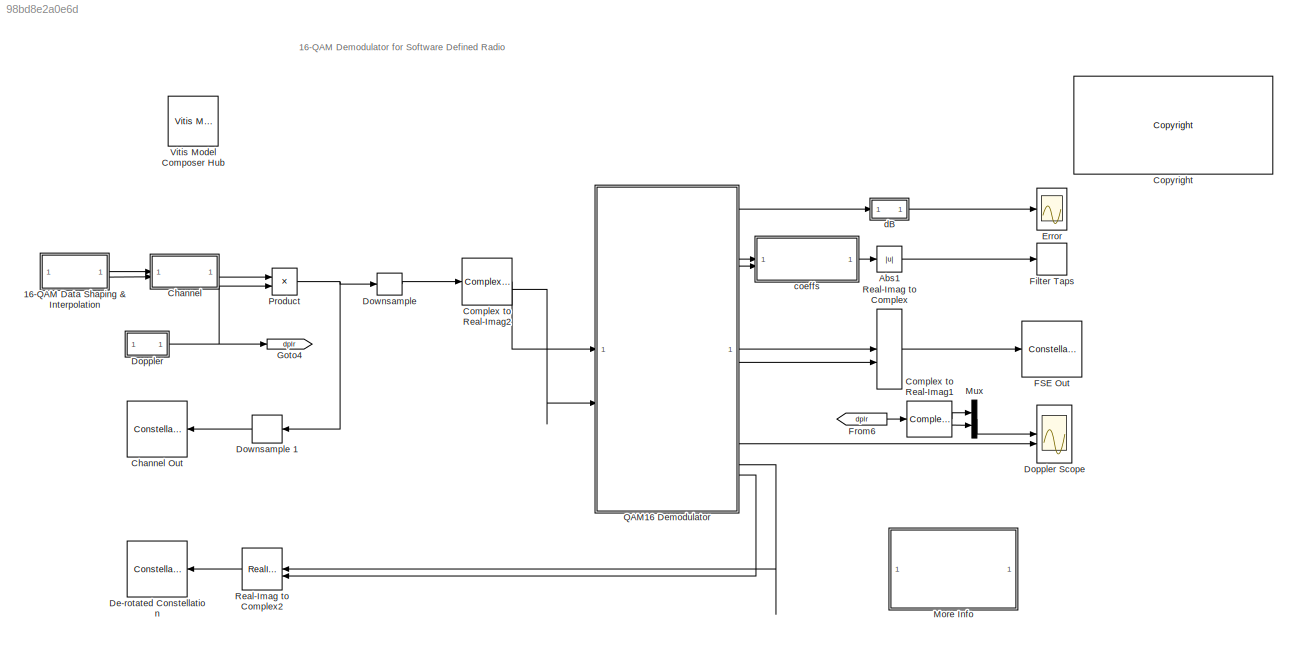
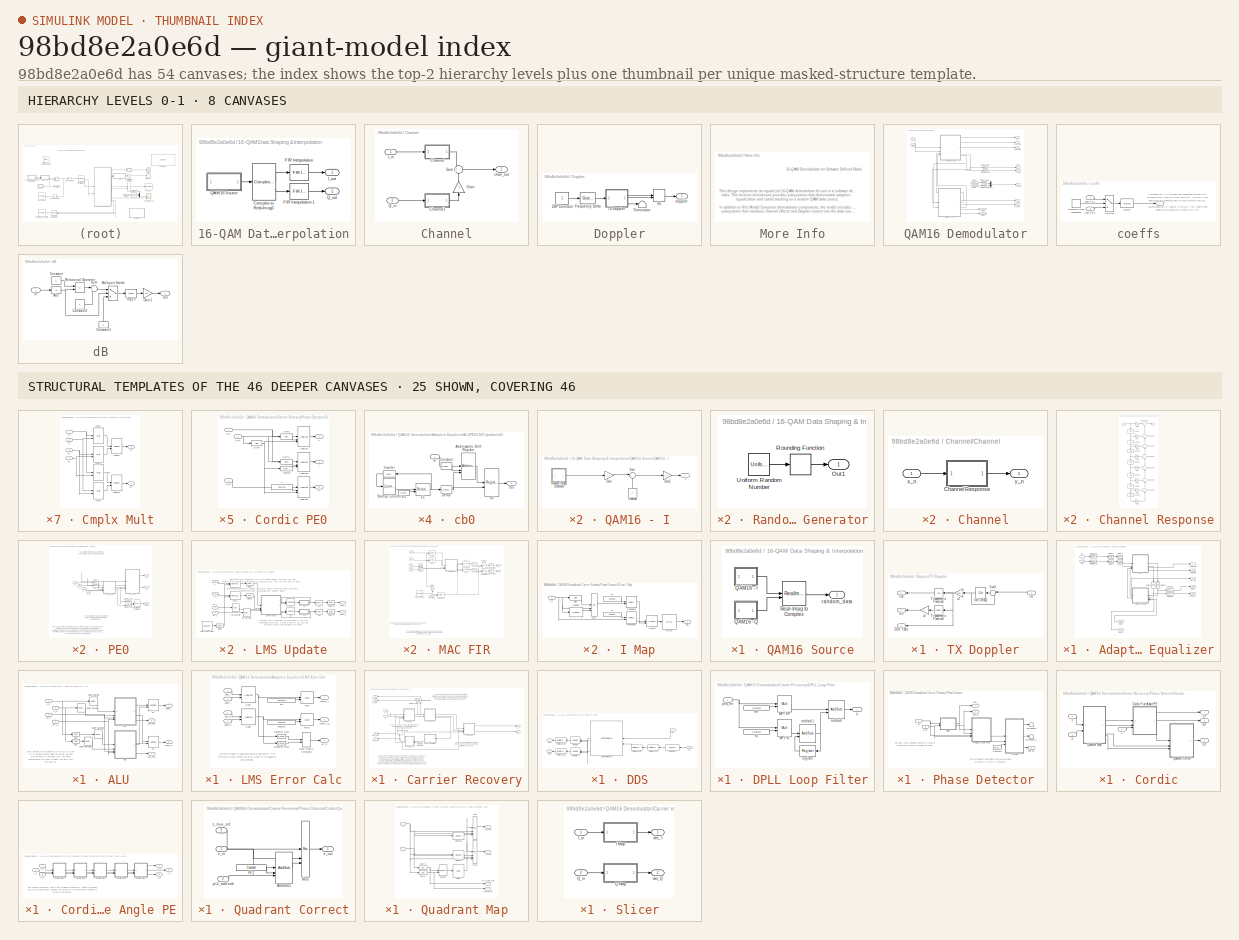
[diagram: thumbnail index - top-2 hierarchy levels (8 canvases) + 25 structural-template representatives of the remaining 46 canvases]
MODEL slx_98bd8e2a0e6d
KIND model
CONFIG AbsTol = auto
CONFIG EnableMultiTasking = on
CONFIG FixedStep = auto
CONFIG MaxStep = auto
CONFIG MinStep = auto
CONFIG PreLoadFcn = QAM16_PreLoadFcn
CONFIG RelTol = 1e-3
CONFIG SampleTimeConstraint = Unconstrained
CONFIG SolverName = ode45
CONFIG StartTime = 0.0
CONFIG StopTime = 5000
BLOCK [SubSystem] 16-QAM Data Shaping & Interpolation
BLOCK [ComplexToRealImag] 16-QAM Data Shaping & Interpolation/Complex to Real-Imag5
BLOCK [Reference] 16-QAM Data Shaping & Interpolation/FIR Interpolation   REF=dspmlti4/FIR
Interpolation
  NameLocation = top
  SourceBlock = dspmlti4/FIR\nInterpolation
  SourceType = FIR Interpolation
  UserDataPersistent = on
BLOCK [Reference] 16-QAM Data Shaping & Interpolation/FIR Interpolation 1  REF=dspmlti4/FIR
Interpolation
  SourceBlock = dspmlti4/FIR\nInterpolation
  SourceType = FIR Interpolation
  UserDataPersistent = on
BLOCK [Outport] 16-QAM Data Shaping & Interpolation/I_out
  VectorParamsAs1DForOutWhenUnconnected = off
BLOCK [SubSystem] 16-QAM Data Shaping & Interpolation/QAM16 Source
BLOCK [SubSystem] 16-QAM Data Shaping & Interpolation/QAM16 Source/QAM16 - I
BLOCK [Constant] 16-QAM Data Shaping & Interpolation/QAM16 Source/QAM16 - I/Constant
  NameLocation = right
  Value = 3
BLOCK [Gain] 16-QAM Data Shaping & Interpolation/QAM16 Source/QAM16 - I/Gain
  Gain = 2
  OutDataTypeStr = Inherit: Same as input
  ParamDataTypeStr = Inherit: Same as input
  SaturateOnIntegerOverflow = on
BLOCK [Gain] 16-QAM Data Shaping & Interpolation/QAM16 Source/QAM16 - I/Gain1
  Gain = 1/3
  OutDataTypeStr = Inherit: Same as input
  ParamDataTypeStr = Inherit: Same as input
  SaturateOnIntegerOverflow = on
BLOCK [Outport] 16-QAM Data Shaping & Interpolation/QAM16 Source/QAM16 - I/I
  VectorParamsAs1DForOutWhenUnconnected = off
BLOCK [SubSystem] 16-QAM Data Shaping & Interpolation/QAM16 Source/QAM16 - I/Random Integer Generator
BLOCK [Outport] 16-QAM Data Shaping & Interpolation/QAM16 Source/QAM16 - I/Random Integer Generator/Out1
  VectorParamsAs1DForOutWhenUnconnected = off
BLOCK [Rounding] 16-QAM Data Shaping & Interpolation/QAM16 Source/QAM16 - I/Random Integer Generator/Rounding Function
  Operator = round
BLOCK [UniformRandomNumber] 16-QAM Data Shaping & Interpolation/QAM16 Source/QAM16 - I/Random Integer Generator/Uniform Random Number
  Maximum = M-1 + 0.49
  Minimum = -0.49
  SampleTime = Ts
  Seed = seed
BLOCK [Sum] 16-QAM Data Shaping & Interpolation/QAM16 Source/QAM16 - I/Sum
  InputSameDT = on
  Inputs = |+-
  OutDataTypeStr = Inherit: Same as first input
  SaturateOnIntegerOverflow = on
BLOCK [SubSystem] 16-QAM Data Shaping & Interpolation/QAM16 Source/QAM16 -Q
BLOCK [Constant] 16-QAM Data Shaping & Interpolation/QAM16 Source/QAM16 -Q/Constant
  NameLocation = right
  Value = 3
BLOCK [Gain] 16-QAM Data Shaping & Interpolation/QAM16 Source/QAM16 -Q/Gain
  Gain = 2
  OutDataTypeStr = Inherit: Same as input
  ParamDataTypeStr = Inherit: Same as input
  SaturateOnIntegerOverflow = on
BLOCK [Gain] 16-QAM Data Shaping & Interpolation/QAM16 Source/QAM16 -Q/Gain1
  Gain = 1/3
  OutDataTypeStr = Inherit: Same as input
  ParamDataTypeStr = Inherit: Same as input
  SaturateOnIntegerOverflow = on
BLOCK [Outport] 16-QAM Data Shaping & Interpolation/QAM16 Source/QAM16 -Q/Q
  VectorParamsAs1DForOutWhenUnconnected = off
BLOCK [SubSystem] 16-QAM Data Shaping & Interpolation/QAM16 Source/QAM16 -Q/Random Integer Generator
BLOCK [Outport] 16-QAM Data Shaping & Interpolation/QAM16 Source/QAM16 -Q/Random Integer Generator/Out1
  VectorParamsAs1DForOutWhenUnconnected = off
BLOCK [Rounding] 16-QAM Data Shaping & Interpolation/QAM16 Source/QAM16 -Q/Random Integer Generator/Rounding Function
  Operator = round
BLOCK [UniformRandomNumber] 16-QAM Data Shaping & Interpolation/QAM16 Source/QAM16 -Q/Random Integer Generator/Uniform Random Number
  Maximum = M-1 + 0.49
  Minimum = -0.49
  SampleTime = Ts
  Seed = seed
BLOCK [Sum] 16-QAM Data Shaping & Interpolation/QAM16 Source/QAM16 -Q/Sum
  InputSameDT = on
  Inputs = |+-
  OutDataTypeStr = Inherit: Same as first input
  SaturateOnIntegerOverflow = on
BLOCK [RealImagToComplex] 16-QAM Data Shaping & Interpolation/QAM16 Source/Real-Imag to Complex
BLOCK [Outport] 16-QAM Data Shaping & Interpolation/QAM16 Source/random_data
  VectorParamsAs1DForOutWhenUnconnected = off
BLOCK [Outport] 16-QAM Data Shaping & Interpolation/Q_out
  Port = 2
  VectorParamsAs1DForOutWhenUnconnected = off
BLOCK [Abs] Abs1
BLOCK [SubSystem] Channel
BLOCK [ConstellationDiagram] Channel Out
  DefaultConfigurationName = comm.scopes.ConstellationDiagramBlockCfg
  GraphicalSettings = {"GraphicalSettings":{"Style":{"AuxLineProperties":"struct","AxesProperties":"struct","Color":"[1 1 0.0666666666666667]","CurrentConfiguration":"extmgr.ConfigurationSet","GrReferenceConstellation":"16-QAM","LineColor":"[1 1 0.0666666666666667]","LineProperties":"struct","LineStyle":"-","LineWidth":"0.5","Marker":".","MarkerEdgeColor":"auto","MarkerFaceColor":"none","MarkerSize":"6","PhaseOffset":"...<+358ch>
  ReferenceConstellation = 16-QAM
  ScopeSpecificationString = comm.scopes.ConstellationDiagramBlockCfg('CurrentConfiguration', extmgr.ConfigurationSet(extmgr.Configuration('Core','General UI',true),extmgr.Configuration('Core','Source UI',true),extmgr.Configuration('Sources','WiredSimulink',true),extmgr.Configuration('Sources','SimulinkEvent',false),extmgr.Configuration('Sources','Simulink',false),extmgr.Configuration('Sources','Streaming',false),extmgr.Confi...<+1850ch>
  ShowReferenceConstellation = off
  SymbolsToDisplay = 1000
  SymbolsToDisplaySource = Property
  Visible = on
  WasSavedAsWebScope = on
  WindowPosition = [510 97 342 335]
BLOCK [SubSystem] Channel/Channel
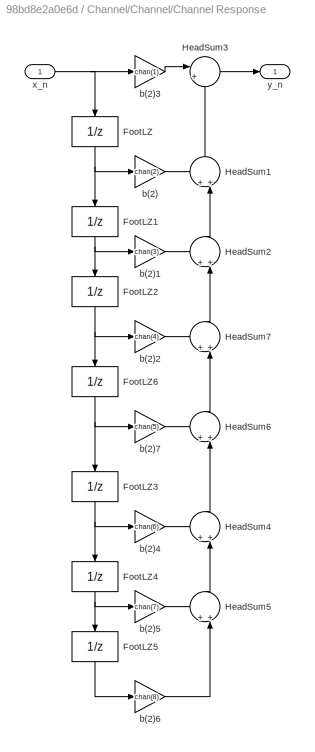
BLOCK [SubSystem] Channel/Channel/Channel Response
BLOCK [UnitDelay] Channel/Channel/Channel Response/FootLZ
  HasFrameUpgradeWarning = on
  NameLocation = right
BLOCK [UnitDelay] Channel/Channel/Channel Response/FootLZ1
  HasFrameUpgradeWarning = on
  NameLocation = right
  SampleTime = -1
BLOCK [UnitDelay] Channel/Channel/Channel Response/FootLZ2
  HasFrameUpgradeWarning = on
  NameLocation = right
  SampleTime = -1
BLOCK [UnitDelay] Channel/Channel/Channel Response/FootLZ3
  HasFrameUpgradeWarning = on
  NameLocation = right
BLOCK [UnitDelay] Channel/Channel/Channel Response/FootLZ4
  HasFrameUpgradeWarning = on
  NameLocation = right
  SampleTime = -1
BLOCK [UnitDelay] Channel/Channel/Channel Response/FootLZ5
  HasFrameUpgradeWarning = on
  NameLocation = right
  SampleTime = -1
BLOCK [UnitDelay] Channel/Channel/Channel Response/FootLZ6
  HasFrameUpgradeWarning = on
  NameLocation = right
  SampleTime = -1
BLOCK [Sum] Channel/Channel/Channel Response/HeadSum1
  InputSameDT = on
  Inputs = ++|
  NameLocation = right
  OutDataTypeStr = Inherit: Same as first input
  SaturateOnIntegerOverflow = on
BLOCK [Sum] Channel/Channel/Channel Response/HeadSum2
  InputSameDT = on
  Inputs = ++|
  NameLocation = right
  OutDataTypeStr = Inherit: Same as first input
  SaturateOnIntegerOverflow = on
BLOCK [Sum] Channel/Channel/Channel Response/HeadSum3
  InputSameDT = on
  Inputs = |++
  OutDataTypeStr = Inherit: Same as first input
  SaturateOnIntegerOverflow = on
BLOCK [Sum] Channel/Channel/Channel Response/HeadSum4
  InputSameDT = on
  Inputs = ++|
  NameLocation = right
  OutDataTypeStr = Inherit: Same as first input
  SaturateOnIntegerOverflow = on
BLOCK [Sum] Channel/Channel/Channel Response/HeadSum5
  InputSameDT = on
  Inputs = ++|
  NameLocation = right
  OutDataTypeStr = Inherit: Same as first input
  SaturateOnIntegerOverflow = on
BLOCK [Sum] Channel/Channel/Channel Response/HeadSum6
  InputSameDT = on
  Inputs = ++|
  NameLocation = right
  OutDataTypeStr = Inherit: Same as first input
  SaturateOnIntegerOverflow = on
BLOCK [Sum] Channel/Channel/Channel Response/HeadSum7
  InputSameDT = on
  Inputs = ++|
  NameLocation = right
  OutDataTypeStr = Inherit: Same as first input
  SaturateOnIntegerOverflow = on
BLOCK [Gain] Channel/Channel/Channel Response/b(2)
  Gain = chan(2)
  OutDataTypeStr = Inherit: Same as input
  ParamDataTypeStr = Inherit: Same as input
  SaturateOnIntegerOverflow = on
BLOCK [Gain] Channel/Channel/Channel Response/b(2)1
  Gain = chan(3)
  OutDataTypeStr = Inherit: Same as input
  ParamDataTypeStr = Inherit: Same as input
  SaturateOnIntegerOverflow = on
BLOCK [Gain] Channel/Channel/Channel Response/b(2)2
  Gain = chan(4)
  OutDataTypeStr = Inherit: Same as input
  ParamDataTypeStr = Inherit: Same as input
  SaturateOnIntegerOverflow = on
BLOCK [Gain] Channel/Channel/Channel Response/b(2)3
  Gain = chan(1)
  OutDataTypeStr = Inherit: Same as input
  ParamDataTypeStr = Inherit: Same as input
  SaturateOnIntegerOverflow = on
BLOCK [Gain] Channel/Channel/Channel Response/b(2)4
  Gain = chan(6)
  OutDataTypeStr = Inherit: Same as input
  ParamDataTypeStr = Inherit: Same as input
  SaturateOnIntegerOverflow = on
BLOCK [Gain] Channel/Channel/Channel Response/b(2)5
  Gain = chan(7)
  OutDataTypeStr = Inherit: Same as input
  ParamDataTypeStr = Inherit: Same as input
  SaturateOnIntegerOverflow = on
BLOCK [Gain] Channel/Channel/Channel Response/b(2)6
  Gain = chan(8)
  OutDataTypeStr = Inherit: Same as input
  ParamDataTypeStr = Inherit: Same as input
  SaturateOnIntegerOverflow = on
BLOCK [Gain] Channel/Channel/Channel Response/b(2)7
  Gain = chan(5)
  OutDataTypeStr = Inherit: Same as input
  ParamDataTypeStr = Inherit: Same as input
  SaturateOnIntegerOverflow = on
BLOCK [Inport] Channel/Channel/Channel Response/x_n
BLOCK [Outport] Channel/Channel/Channel Response/y_n
  VectorParamsAs1DForOutWhenUnconnected = off
BLOCK [Inport] Channel/Channel/x_n
BLOCK [Outport] Channel/Channel/y_n
  VectorParamsAs1DForOutWhenUnconnected = off
BLOCK [SubSystem] Channel/Channel1
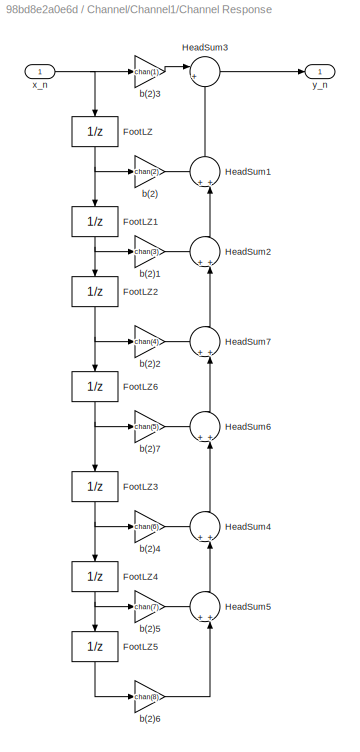
BLOCK [SubSystem] Channel/Channel1/Channel Response
BLOCK [UnitDelay] Channel/Channel1/Channel Response/FootLZ
  HasFrameUpgradeWarning = on
  NameLocation = right
BLOCK [UnitDelay] Channel/Channel1/Channel Response/FootLZ1
  HasFrameUpgradeWarning = on
  NameLocation = right
  SampleTime = -1
BLOCK [UnitDelay] Channel/Channel1/Channel Response/FootLZ2
  HasFrameUpgradeWarning = on
  NameLocation = right
  SampleTime = -1
BLOCK [UnitDelay] Channel/Channel1/Channel Response/FootLZ3
  HasFrameUpgradeWarning = on
  NameLocation = right
BLOCK [UnitDelay] Channel/Channel1/Channel Response/FootLZ4
  HasFrameUpgradeWarning = on
  NameLocation = right
  SampleTime = -1
BLOCK [UnitDelay] Channel/Channel1/Channel Response/FootLZ5
  HasFrameUpgradeWarning = on
  NameLocation = right
  SampleTime = -1
BLOCK [UnitDelay] Channel/Channel1/Channel Response/FootLZ6
  HasFrameUpgradeWarning = on
  NameLocation = right
  SampleTime = -1
BLOCK [Sum] Channel/Channel1/Channel Response/HeadSum1
  InputSameDT = on
  Inputs = ++|
  NameLocation = right
  OutDataTypeStr = Inherit: Same as first input
  SaturateOnIntegerOverflow = on
BLOCK [Sum] Channel/Channel1/Channel Response/HeadSum2
  InputSameDT = on
  Inputs = ++|
  NameLocation = right
  OutDataTypeStr = Inherit: Same as first input
  SaturateOnIntegerOverflow = on
BLOCK [Sum] Channel/Channel1/Channel Response/HeadSum3
  InputSameDT = on
  Inputs = |++
  OutDataTypeStr = Inherit: Same as first input
  SaturateOnIntegerOverflow = on
BLOCK [Sum] Channel/Channel1/Channel Response/HeadSum4
  InputSameDT = on
  Inputs = ++|
  NameLocation = right
  OutDataTypeStr = Inherit: Same as first input
  SaturateOnIntegerOverflow = on
BLOCK [Sum] Channel/Channel1/Channel Response/HeadSum5
  InputSameDT = on
  Inputs = ++|
  NameLocation = right
  OutDataTypeStr = Inherit: Same as first input
  SaturateOnIntegerOverflow = on
BLOCK [Sum] Channel/Channel1/Channel Response/HeadSum6
  InputSameDT = on
  Inputs = ++|
  NameLocation = right
  OutDataTypeStr = Inherit: Same as first input
  SaturateOnIntegerOverflow = on
BLOCK [Sum] Channel/Channel1/Channel Response/HeadSum7
  InputSameDT = on
  Inputs = ++|
  NameLocation = right
  OutDataTypeStr = Inherit: Same as first input
  SaturateOnIntegerOverflow = on
BLOCK [Gain] Channel/Channel1/Channel Response/b(2)
  Gain = chan(2)
  OutDataTypeStr = Inherit: Same as input
  ParamDataTypeStr = Inherit: Same as input
  SaturateOnIntegerOverflow = on
BLOCK [Gain] Channel/Channel1/Channel Response/b(2)1
  Gain = chan(3)
  OutDataTypeStr = Inherit: Same as input
  ParamDataTypeStr = Inherit: Same as input
  SaturateOnIntegerOverflow = on
BLOCK [Gain] Channel/Channel1/Channel Response/b(2)2
  Gain = chan(4)
  OutDataTypeStr = Inherit: Same as input
  ParamDataTypeStr = Inherit: Same as input
  SaturateOnIntegerOverflow = on
BLOCK [Gain] Channel/Channel1/Channel Response/b(2)3
  Gain = chan(1)
  OutDataTypeStr = Inherit: Same as input
  ParamDataTypeStr = Inherit: Same as input
  SaturateOnIntegerOverflow = on
BLOCK [Gain] Channel/Channel1/Channel Response/b(2)4
  Gain = chan(6)
  OutDataTypeStr = Inherit: Same as input
  ParamDataTypeStr = Inherit: Same as input
  SaturateOnIntegerOverflow = on
BLOCK [Gain] Channel/Channel1/Channel Response/b(2)5
  Gain = chan(7)
  OutDataTypeStr = Inherit: Same as input
  ParamDataTypeStr = Inherit: Same as input
  SaturateOnIntegerOverflow = on
BLOCK [Gain] Channel/Channel1/Channel Response/b(2)6
  Gain = chan(8)
  OutDataTypeStr = Inherit: Same as input
  ParamDataTypeStr = Inherit: Same as input
  SaturateOnIntegerOverflow = on
BLOCK [Gain] Channel/Channel1/Channel Response/b(2)7
  Gain = chan(5)
  OutDataTypeStr = Inherit: Same as input
  ParamDataTypeStr = Inherit: Same as input
  SaturateOnIntegerOverflow = on
BLOCK [Inport] Channel/Channel1/Channel Response/x_n
BLOCK [Outport] Channel/Channel1/Channel Response/y_n
  VectorParamsAs1DForOutWhenUnconnected = off
BLOCK [Inport] Channel/Channel1/x_n
BLOCK [Outport] Channel/Channel1/y_n
  VectorParamsAs1DForOutWhenUnconnected = off
BLOCK [Gain] Channel/Gain
  Gain = j
  NameLocation = right
  OutDataTypeStr = Inherit: Same as input
  ParamDataTypeStr = Inherit: Same as input
  SaturateOnIntegerOverflow = on
BLOCK [Inport] Channel/I_in
BLOCK [Inport] Channel/Q_in
  Port = 2
BLOCK [Sum] Channel/Sum
  InputSameDT = on
  OutDataTypeStr = Inherit: Same as first input
  SaturateOnIntegerOverflow = on
BLOCK [Outport] Channel/chan_out
  VectorParamsAs1DForOutWhenUnconnected = off
BLOCK [ComplexToRealImag] Complex to Real-Imag1
  NameLocation = top
BLOCK [ComplexToRealImag] Complex to Real-Imag2
BLOCK [Reference] <copyright redacted>
  SourceBlock = hdlUtilities/<copyright redacted>
  SourceType = Xilinx <copyright redacted>
BLOCK [ConstellationDiagram] De-rotated Constellation
  DefaultConfigurationName = comm.scopes.ConstellationDiagramBlockCfg
  GraphicalSettings = {"GraphicalSettings":{"Style":{"AuxLineProperties":"struct","AxesProperties":"struct","Color":"[1 1 0.0666666666666667]","CurrentConfiguration":"extmgr.ConfigurationSet","GrReferenceConstellation":"16-QAM","LineColor":"[1 1 0.0666666666666667]","LineProperties":"struct","LineStyle":"-","LineWidth":"0.5","Marker":".","MarkerEdgeColor":"auto","MarkerFaceColor":"none","MarkerSize":"6","PhaseOffset":"...<+359ch>
  ReferenceConstellation = 16-QAM
  ScopeSpecificationString = comm.scopes.ConstellationDiagramBlockCfg('CurrentConfiguration', extmgr.ConfigurationSet(extmgr.Configuration('Core','General UI',true),extmgr.Configuration('Core','Source UI',true),extmgr.Configuration('Sources','WiredSimulink',true),extmgr.Configuration('Sources','Simulink',false),extmgr.Configuration('Sources','SPTool',false),extmgr.Configuration('Sources','Workspace',false),extmgr.Configuratio...<+1822ch>
  SymbolsToDisplay = 1000
  SymbolsToDisplaySource = Property
  Visible = on
  WasSavedAsWebScope = on
  WindowPosition = [176 360 339 337]
BLOCK [SubSystem] Doppler
BLOCK [Scope] Doppler Scope
  Floating = off
  NumInputPorts = 2
  ScopeSpecificationString = Simulink.scopes.TimeScopeBlockCfg('CurrentConfiguration', extmgr.ConfigurationSet(extmgr.Configuration('Core','General UI',true),extmgr.Configuration('Core','Source UI',true),extmgr.Configuration('Sources','WiredSimulink',true,'DataLoggingSaveFormat','StructureWithTime','DataLoggingLimitDataPoints',true,'DataLoggingDecimation','1','DataLoggingDecimateData',true,'DataLoggingVariableName','ScopeData...<+2375ch>
BLOCK [Constant] Doppler/DSP Constant
  SampleTime = 1
  VectorParams1D = off
BLOCK [Reference] Doppler/Frequency Delta  REF=simulink/Math
Operations/Slider
Gain
  SourceBlock = simulink/Math\nOperations/Slider\nGain
  SourceType = Slider Gain
BLOCK [RealImagToComplex] Doppler/R:I
BLOCK [SubSystem] Doppler/TX Doppler
BLOCK [Outport] Doppler/TX Doppler/Cos
  VectorParamsAs1DForOutWhenUnconnected = off
BLOCK [Outport] Doppler/TX Doppler/DDS Theta
  Port = 3
  VectorParamsAs1DForOutWhenUnconnected = off
BLOCK [Inport] Doppler/TX Doppler/In1
BLOCK [Outport] Doppler/TX Doppler/Sin
  Port = 2
  VectorParamsAs1DForOutWhenUnconnected = off
BLOCK [Sum] Doppler/TX Doppler/Sum5
  InputSameDT = on
  Inputs = |++
  OutDataTypeStr = Inherit: Same as first input
  SaturateOnIntegerOverflow = on
BLOCK [Trigonometry] Doppler/TX Doppler/Trigonometric Function1
  Operator = cos
BLOCK [Trigonometry] Doppler/TX Doppler/Trigonometric Function2
BLOCK [UnitDelay] Doppler/TX Doppler/Unit Delay2
  HasFrameUpgradeWarning = on
BLOCK [Gain] Doppler/TX Doppler/c2
  Gain = 2*pi
  OutDataTypeStr = Inherit: Same as input
  ParamDataTypeStr = Inherit: Same as input
  SaturateOnIntegerOverflow = on
BLOCK [Gain] Doppler/TX Doppler/c3
  OutDataTypeStr = Inherit: Same as input
  ParamDataTypeStr = Inherit: Same as input
  SaturateOnIntegerOverflow = on
BLOCK [Terminator] Doppler/Terminator
BLOCK [Outport] Doppler/doppler
  VectorParamsAs1DForOutWhenUnconnected = off
BLOCK [DownSample] Downsample 
  InputProcessing = Elements as channels (sample based)
  RateOptions = Allow multirate processing
  UserDataPersistent = on
BLOCK [DownSample] Downsample 1
  InputProcessing = Elements as channels (sample based)
  N = 4
  NameLocation = top
  RateOptions = Allow multirate processing
  UserDataPersistent = on
BLOCK [Scope] Error
  Floating = off
  NameLocation = top
  NumInputPorts = 1
  ScopeSpecificationString = Simulink.scopes.TimeScopeBlockCfg('CurrentConfiguration', extmgr.ConfigurationSet(extmgr.Configuration('Core','General UI',true),extmgr.Configuration('Core','Source UI',true),extmgr.Configuration('Sources','WiredSimulink',true,'DataLoggingSaveFormat','StructureWithTime','DataLoggingLimitDataPoints',true,'DataLoggingDecimation','1','DataLoggingDecimateData',true),extmgr.Configuration('Visuals','Tim...<+1661ch>
BLOCK [ConstellationDiagram] FSE Out
  DefaultConfigurationName = comm.scopes.ConstellationDiagramBlockCfg
  GraphicalSettings = {"GraphicalSettings":{"Style":{"AuxLineProperties":"struct","AxesProperties":"struct","Color":"[1 1 0.0666666666666667]","CurrentConfiguration":"extmgr.ConfigurationSet","GrReferenceConstellation":"16-QAM","LineColor":"[1 1 0.0666666666666667]","LineProperties":"struct","LineStyle":"-","LineWidth":"0.5","Marker":".","MarkerEdgeColor":"auto","MarkerFaceColor":"none","MarkerSize":"6","PhaseOffset":"...<+359ch>
  ReferenceConstellation = 16-QAM
  ScopeSpecificationString = comm.scopes.ConstellationDiagramBlockCfg('CurrentConfiguration', extmgr.ConfigurationSet(extmgr.Configuration('Core','General UI',true),extmgr.Configuration('Core','Source UI',true),extmgr.Configuration('Sources','WiredSimulink',true),extmgr.Configuration('Sources','SimulinkEvent',false),extmgr.Configuration('Sources','Streaming',false),extmgr.Configuration('Sources','File',false),extmgr.Configura...<+1851ch>
  ShowReferenceConstellation = off
  SymbolsToDisplay = 1000
  SymbolsToDisplaySource = Property
  Visible = on
  WasSavedAsWebScope = on
  WindowPosition = [845 304 340 342]
BLOCK [ArrayPlot] Filter Taps
  AxesScaling = Manual
  DefaultConfigurationName = dsp.scopes.ArrayPlotBlockSpecification
  GraphicalSettings = {'Style':{'AxesColor':[0,0,0],'LabelsColor':[0.686274509803922,0.686274509803922,0.686274509803922],'LineColor':[[1,1,0.0666666666666667],[66,260,329,270],[66,260,329,270]],'LineStyle':[':'],'LineWidth':[0.75],'Marker':['.',',6,',',',',','none']}}
  MaximizeAxes = On
  PlotType = Line
  Visible = on
  WasSavedAsWebScope = on
  WindowPosition = [66 260 329 270]
  XLabel = Samples
  YLabel = Filter Coefficients
  YLimits = [0.005979,1.0369]
BLOCK [From] From6
  GotoTag = dplr
BLOCK [Goto] Goto4
  GotoTag = dplr
BLOCK [SubSystem] More Info
BLOCK [Mux] Mux
  DisplayOption = bar
  Inputs = 2
BLOCK [Product] Product
  InputSameDT = on
  OutDataTypeStr = Inherit: Same as first input
  SaturateOnIntegerOverflow = on
BLOCK [SubSystem] QAM16 Demodulator
BLOCK [SubSystem] QAM16 Demodulator/Adaptive Equalizer
BLOCK [SubSystem] QAM16 Demodulator/Adaptive Equalizer/ALU
BLOCK [Reference] QAM16 Demodulator/Adaptive Equalizer/ALU/Down Sample  REF=hdlBasic/Down Sample
  SourceBlock = hdlBasic/Down Sample
  SourceType = Down Sampler Block
BLOCK [Reference] QAM16 Demodulator/Adaptive Equalizer/ALU/Down Sample1  REF=hdlBasic/Down Sample
  SourceBlock = hdlBasic/Down Sample
  SourceType = Down Sampler Block
BLOCK [Reference] QAM16 Demodulator/Adaptive Equalizer/ALU/Down Sample2  REF=hdlBasic/Down Sample
  SourceBlock = hdlBasic/Down Sample
  SourceType = Down Sampler Block
BLOCK [Reference] QAM16 Demodulator/Adaptive Equalizer/ALU/Down Sample3  REF=hdlBasic/Down Sample
  SourceBlock = hdlBasic/Down Sample
  SourceType = Down Sampler Block
BLOCK [SubSystem] QAM16 Demodulator/Adaptive Equalizer/ALU/PE0
BLOCK [Reference] QAM16 Demodulator/Adaptive Equalizer/ALU/PE0/Delay3  REF=hdlBasic/Delay
  SourceBlock = hdlBasic/Delay
  SourceType = Delay Block
BLOCK [Reference] QAM16 Demodulator/Adaptive Equalizer/ALU/PE0/Delay4  REF=hdlBasic/Delay
  SourceBlock = hdlBasic/Delay
  SourceType = Delay Block
BLOCK [Reference] QAM16 Demodulator/Adaptive Equalizer/ALU/PE0/Gateway Out  REF=hdlBasic/Gateway Out
  SourceBlock = hdlBasic/Gateway Out
  SourceType = Gateway Out Block
BLOCK [Reference] QAM16 Demodulator/Adaptive Equalizer/ALU/PE0/Gateway Out1  REF=hdlBasic/Gateway Out
  SourceBlock = hdlBasic/Gateway Out
  SourceType = Gateway Out Block
BLOCK [SubSystem] QAM16 Demodulator/Adaptive Equalizer/ALU/PE0/LMS Update
BLOCK [SubSystem] QAM16 Demodulator/Adaptive Equalizer/ALU/PE0/LMS Update/Cmplx Mult
BLOCK [Reference] QAM16 Demodulator/Adaptive Equalizer/ALU/PE0/LMS Update/Cmplx Mult/AddSub  REF=hdlBasic/AddSub
  SourceBlock = hdlBasic/AddSub
  SourceType = Adder/Subtracter Block
BLOCK [Reference] QAM16 Demodulator/Adaptive Equalizer/ALU/PE0/LMS Update/Cmplx Mult/AddSub1  REF=hdlBasic/AddSub
  SourceBlock = hdlBasic/AddSub
  SourceType = Adder/Subtracter Block
BLOCK [Reference] QAM16 Demodulator/Adaptive Equalizer/ALU/PE0/LMS Update/Cmplx Mult/Mult1  REF=hdlBasic/Mult
  SourceBlock = hdlBasic/Mult
  SourceType = Multiplier Block
BLOCK [Reference] QAM16 Demodulator/Adaptive Equalizer/ALU/PE0/LMS Update/Cmplx Mult/Mult2  REF=hdlBasic/Mult
  SourceBlock = hdlBasic/Mult
  SourceType = Multiplier Block
BLOCK [Reference] QAM16 Demodulator/Adaptive Equalizer/ALU/PE0/LMS Update/Cmplx Mult/Mult3  REF=hdlBasic/Mult
  SourceBlock = hdlBasic/Mult
  SourceType = Multiplier Block
BLOCK [Reference] QAM16 Demodulator/Adaptive Equalizer/ALU/PE0/LMS Update/Cmplx Mult/Mult4  REF=hdlBasic/Mult
  SourceBlock = hdlBasic/Mult
  SourceType = Multiplier Block
BLOCK [Inport] QAM16 Demodulator/Adaptive Equalizer/ALU/PE0/LMS Update/Cmplx Mult/a_i
  Port = 2
BLOCK [Inport] QAM16 Demodulator/Adaptive Equalizer/ALU/PE0/LMS Update/Cmplx Mult/a_r
BLOCK [Inport] QAM16 Demodulator/Adaptive Equalizer/ALU/PE0/LMS Update/Cmplx Mult/b_i
  Port = 4
BLOCK [Inport] QAM16 Demodulator/Adaptive Equalizer/ALU/PE0/LMS Update/Cmplx Mult/b_r
  Port = 3
BLOCK [Outport] QAM16 Demodulator/Adaptive Equalizer/ALU/PE0/LMS Update/Cmplx Mult/p_i
  Port = 2
  VectorParamsAs1DForOutWhenUnconnected = off
BLOCK [Outport] QAM16 Demodulator/Adaptive Equalizer/ALU/PE0/LMS Update/Cmplx Mult/p_r
  VectorParamsAs1DForOutWhenUnconnected = off
BLOCK [Reference] QAM16 Demodulator/Adaptive Equalizer/ALU/PE0/LMS Update/Data Addr Gen  REF=hdlBasic/Counter
  SourceBlock = hdlBasic/Counter
  SourceType = Counter Block
BLOCK [Reference] QAM16 Demodulator/Adaptive Equalizer/ALU/PE0/LMS Update/Delay  REF=hdlBasic/Delay
  SourceBlock = hdlBasic/Delay
  SourceType = Delay Block
BLOCK [Reference] QAM16 Demodulator/Adaptive Equalizer/ALU/PE0/LMS Update/Delay1  REF=hdlBasic/Delay
  SourceBlock = hdlBasic/Delay
  SourceType = Delay Block
BLOCK [Reference] QAM16 Demodulator/Adaptive Equalizer/ALU/PE0/LMS Update/Delay19  REF=hdlBasic/Delay
  SourceBlock = hdlBasic/Delay
  SourceType = Delay Block
BLOCK [Reference] QAM16 Demodulator/Adaptive Equalizer/ALU/PE0/LMS Update/Delay20  REF=hdlBasic/Delay
  SourceBlock = hdlBasic/Delay
  SourceType = Delay Block
BLOCK [Reference] QAM16 Demodulator/Adaptive Equalizer/ALU/PE0/LMS Update/Delay3  REF=hdlBasic/Delay
  SourceBlock = hdlBasic/Delay
  SourceType = Delay Block
BLOCK [Reference] QAM16 Demodulator/Adaptive Equalizer/ALU/PE0/LMS Update/RVM0  REF=hdlBasic/Addressable Shift Register
  SourceBlock = hdlBasic/Addressable Shift Register
  SourceType = Addressable Shift Register Block
BLOCK [Reference] QAM16 Demodulator/Adaptive Equalizer/ALU/PE0/LMS Update/RVM1  REF=hdlBasic/Addressable Shift Register
  SourceBlock = hdlBasic/Addressable Shift Register
  SourceType = Addressable Shift Register Block
BLOCK [Reference] QAM16 Demodulator/Adaptive Equalizer/ALU/PE0/LMS Update/Up Sample  REF=hdlBasic/Up Sample
  SourceBlock = hdlBasic/Up Sample
  SourceType = Up Sampler Block
BLOCK [Reference] QAM16 Demodulator/Adaptive Equalizer/ALU/PE0/LMS Update/Up Sample1  REF=hdlBasic/Up Sample
  SourceBlock = hdlBasic/Up Sample
  SourceType = Up Sampler Block
BLOCK [Reference] QAM16 Demodulator/Adaptive Equalizer/ALU/PE0/LMS Update/a1  REF=hdlBasic/AddSub
  NameLocation = top
  SourceBlock = hdlBasic/AddSub
  SourceType = Adder/Subtracter Block
BLOCK [Reference] QAM16 Demodulator/Adaptive Equalizer/ALU/PE0/LMS Update/a2  REF=hdlBasic/AddSub
  NameLocation = top
  SourceBlock = hdlBasic/AddSub
  SourceType = Adder/Subtracter Block
BLOCK [Reference] QAM16 Demodulator/Adaptive Equalizer/ALU/PE0/LMS Update/c3  REF=hdlBasic/Convert
  NameLocation = top
  SourceBlock = hdlBasic/Convert
  SourceType = Type Converter Block
BLOCK [Reference] QAM16 Demodulator/Adaptive Equalizer/ALU/PE0/LMS Update/c4  REF=hdlBasic/Convert
  SourceBlock = hdlBasic/Convert
  SourceType = Type Converter Block
BLOCK [SubSystem] QAM16 Demodulator/Adaptive Equalizer/ALU/PE0/LMS Update/cb0
BLOCK [Reference] QAM16 Demodulator/Adaptive Equalizer/ALU/PE0/LMS Update/cb0/Addressable Shift Register  REF=hdlBasic/Addressable Shift Register
  SourceBlock = hdlBasic/Addressable Shift Register
  SourceType = Addressable Shift Register Block
BLOCK [Reference] QAM16 Demodulator/Adaptive Equalizer/ALU/PE0/LMS Update/cb0/Constant  REF=hdlBasic/Constant
  SourceBlock = hdlBasic/Constant
  SourceType = Constant Block Block
BLOCK [Reference] QAM16 Demodulator/Adaptive Equalizer/ALU/PE0/LMS Update/cb0/Delay  REF=hdlBasic/Delay
  SourceBlock = hdlBasic/Delay
  SourceType = Delay Block
BLOCK [Reference] QAM16 Demodulator/Adaptive Equalizer/ALU/PE0/LMS Update/cb0/F1  REF=hdlBasic/Relational
  SourceBlock = hdlBasic/Relational
  SourceType = Arithmetic Relational Operator Block
BLOCK [Inport] QAM16 Demodulator/Adaptive Equalizer/ALU/PE0/LMS Update/cb0/In
BLOCK [Reference] QAM16 Demodulator/Adaptive Equalizer/ALU/PE0/LMS Update/cb0/Inverter  REF=hdlBasic/Inverter
  NameLocation = top
  SourceBlock = hdlBasic/Inverter
  SourceType = Inverter Block
BLOCK [Reference] QAM16 Demodulator/Adaptive Equalizer/ALU/PE0/LMS Update/cb0/K1  REF=hdlBasic/Constant
  SourceBlock = hdlBasic/Constant
  SourceType = Constant Block Block
BLOCK [Outport] QAM16 Demodulator/Adaptive Equalizer/ALU/PE0/LMS Update/cb0/Out
  VectorParamsAs1DForOutWhenUnconnected = off
BLOCK [Reference] QAM16 Demodulator/Adaptive Equalizer/ALU/PE0/LMS Update/cb0/R5  REF=hdlBasic/Register
  SourceBlock = hdlBasic/Register
  SourceType = Register Block
BLOCK [Reference] QAM16 Demodulator/Adaptive Equalizer/ALU/PE0/LMS Update/cb0/Startup Counter  REF=hdlBasic/Counter
  SourceBlock = hdlBasic/Counter
  SourceType = Counter Block
BLOCK [SubSystem] QAM16 Demodulator/Adaptive Equalizer/ALU/PE0/LMS Update/cb1
BLOCK [Reference] QAM16 Demodulator/Adaptive Equalizer/ALU/PE0/LMS Update/cb1/Addressable Shift Register  REF=hdlBasic/Addressable Shift Register
  SourceBlock = hdlBasic/Addressable Shift Register
  SourceType = Addressable Shift Register Block
BLOCK [Reference] QAM16 Demodulator/Adaptive Equalizer/ALU/PE0/LMS Update/cb1/Constant  REF=hdlBasic/Constant
  SourceBlock = hdlBasic/Constant
  SourceType = Constant Block Block
BLOCK [Reference] QAM16 Demodulator/Adaptive Equalizer/ALU/PE0/LMS Update/cb1/Delay  REF=hdlBasic/Delay
  SourceBlock = hdlBasic/Delay
  SourceType = Delay Block
BLOCK [Reference] QAM16 Demodulator/Adaptive Equalizer/ALU/PE0/LMS Update/cb1/F1  REF=hdlBasic/Relational
  SourceBlock = hdlBasic/Relational
  SourceType = Arithmetic Relational Operator Block
BLOCK [Inport] QAM16 Demodulator/Adaptive Equalizer/ALU/PE0/LMS Update/cb1/In
BLOCK [Reference] QAM16 Demodulator/Adaptive Equalizer/ALU/PE0/LMS Update/cb1/Inverter  REF=hdlBasic/Inverter
  NameLocation = top
  SourceBlock = hdlBasic/Inverter
  SourceType = Inverter Block
BLOCK [Reference] QAM16 Demodulator/Adaptive Equalizer/ALU/PE0/LMS Update/cb1/K1  REF=hdlBasic/Constant
  SourceBlock = hdlBasic/Constant
  SourceType = Constant Block Block
BLOCK [Outport] QAM16 Demodulator/Adaptive Equalizer/ALU/PE0/LMS Update/cb1/Out
  VectorParamsAs1DForOutWhenUnconnected = off
BLOCK [Reference] QAM16 Demodulator/Adaptive Equalizer/ALU/PE0/LMS Update/cb1/R5  REF=hdlBasic/Register
  SourceBlock = hdlBasic/Register
  SourceType = Register Block
BLOCK [Reference] QAM16 Demodulator/Adaptive Equalizer/ALU/PE0/LMS Update/cb1/Startup Counter  REF=hdlBasic/Counter
  SourceBlock = hdlBasic/Counter
  SourceType = Counter Block
BLOCK [Outport] QAM16 Demodulator/Adaptive Equalizer/ALU/PE0/LMS Update/coef_i
  Port = 2
  VectorParamsAs1DForOutWhenUnconnected = off
BLOCK [Outport] QAM16 Demodulator/Adaptive Equalizer/ALU/PE0/LMS Update/coef_r
  VectorParamsAs1DForOutWhenUnconnected = off
BLOCK [Inport] QAM16 Demodulator/Adaptive Equalizer/ALU/PE0/LMS Update/err_i
  Port = 4
BLOCK [Inport] QAM16 Demodulator/Adaptive Equalizer/ALU/PE0/LMS Update/err_r
  NameLocation = top
  Port = 3
BLOCK [Inport] QAM16 Demodulator/Adaptive Equalizer/ALU/PE0/LMS Update/x_I
BLOCK [Inport] QAM16 Demodulator/Adaptive Equalizer/ALU/PE0/LMS Update/x_Q
  Port = 2
BLOCK [SubSystem] QAM16 Demodulator/Adaptive Equalizer/ALU/PE0/MAC FIR
BLOCK [Reference] QAM16 Demodulator/Adaptive Equalizer/ALU/PE0/MAC FIR/ASR1  REF=hdlBasic/Addressable Shift Register
  SourceBlock = hdlBasic/Addressable Shift Register
  SourceType = Addressable Shift Register Block
BLOCK [Reference] QAM16 Demodulator/Adaptive Equalizer/ALU/PE0/MAC FIR/ASR2  REF=hdlBasic/Addressable Shift Register
  SourceBlock = hdlBasic/Addressable Shift Register
  SourceType = Addressable Shift Register Block
BLOCK [Reference] QAM16 Demodulator/Adaptive Equalizer/ALU/PE0/MAC FIR/Accr  REF=hdlBasic/Accumulator
  NameLocation = top
  SourceBlock = hdlBasic/Accumulator
  SourceType = Accumulator Block
BLOCK [Reference] QAM16 Demodulator/Adaptive Equalizer/ALU/PE0/MAC FIR/Accr1  REF=hdlBasic/Accumulator
  NameLocation = top
  SourceBlock = hdlBasic/Accumulator
  SourceType = Accumulator Block
BLOCK [SubSystem] QAM16 Demodulator/Adaptive Equalizer/ALU/PE0/MAC FIR/Cmplx Mult
BLOCK [Reference] QAM16 Demodulator/Adaptive Equalizer/ALU/PE0/MAC FIR/Cmplx Mult/AddSub  REF=hdlBasic/AddSub
  SourceBlock = hdlBasic/AddSub
  SourceType = Adder/Subtracter Block
BLOCK [Reference] QAM16 Demodulator/Adaptive Equalizer/ALU/PE0/MAC FIR/Cmplx Mult/AddSub1  REF=hdlBasic/AddSub
  SourceBlock = hdlBasic/AddSub
  SourceType = Adder/Subtracter Block
BLOCK [Reference] QAM16 Demodulator/Adaptive Equalizer/ALU/PE0/MAC FIR/Cmplx Mult/Mult  REF=hdlBasic/Mult
  SourceBlock = hdlBasic/Mult
  SourceType = Multiplier Block
BLOCK [Reference] QAM16 Demodulator/Adaptive Equalizer/ALU/PE0/MAC FIR/Cmplx Mult/Mult1  REF=hdlBasic/Mult
  SourceBlock = hdlBasic/Mult
  SourceType = Multiplier Block
BLOCK [Reference] QAM16 Demodulator/Adaptive Equalizer/ALU/PE0/MAC FIR/Cmplx Mult/Mult2  REF=hdlBasic/Mult
  SourceBlock = hdlBasic/Mult
  SourceType = Multiplier Block
BLOCK [Reference] QAM16 Demodulator/Adaptive Equalizer/ALU/PE0/MAC FIR/Cmplx Mult/Mult3  REF=hdlBasic/Mult
  SourceBlock = hdlBasic/Mult
  SourceType = Multiplier Block
BLOCK [Inport] QAM16 Demodulator/Adaptive Equalizer/ALU/PE0/MAC FIR/Cmplx Mult/a_i
  Port = 2
BLOCK [Inport] QAM16 Demodulator/Adaptive Equalizer/ALU/PE0/MAC FIR/Cmplx Mult/a_r
BLOCK [Inport] QAM16 Demodulator/Adaptive Equalizer/ALU/PE0/MAC FIR/Cmplx Mult/b_i
  Port = 4
BLOCK [Inport] QAM16 Demodulator/Adaptive Equalizer/ALU/PE0/MAC FIR/Cmplx Mult/b_r
  Port = 3
BLOCK [Outport] QAM16 Demodulator/Adaptive Equalizer/ALU/PE0/MAC FIR/Cmplx Mult/p_i
  Port = 2
  VectorParamsAs1DForOutWhenUnconnected = off
BLOCK [Outport] QAM16 Demodulator/Adaptive Equalizer/ALU/PE0/MAC FIR/Cmplx Mult/p_r
  VectorParamsAs1DForOutWhenUnconnected = off
BLOCK [Reference] QAM16 Demodulator/Adaptive Equalizer/ALU/PE0/MAC FIR/Constant1  REF=hdlBasic/Constant
  SourceBlock = hdlBasic/Constant
  SourceType = Constant Block Block
BLOCK [Reference] QAM16 Demodulator/Adaptive Equalizer/ALU/PE0/MAC FIR/Convert  REF=hdlBasic/Convert
  SourceBlock = hdlBasic/Convert
  SourceType = Type Converter Block
BLOCK [Reference] QAM16 Demodulator/Adaptive Equalizer/ALU/PE0/MAC FIR/Convert1  REF=hdlBasic/Convert
  SourceBlock = hdlBasic/Convert
  SourceType = Type Converter Block
BLOCK [Reference] QAM16 Demodulator/Adaptive Equalizer/ALU/PE0/MAC FIR/Data Addr Gen  REF=hdlBasic/Counter
  SourceBlock = hdlBasic/Counter
  SourceType = Counter Block
BLOCK [Reference] QAM16 Demodulator/Adaptive Equalizer/ALU/PE0/MAC FIR/Delay  REF=hdlBasic/Delay
  NameLocation = right
  SourceBlock = hdlBasic/Delay
  SourceType = Delay Block
BLOCK [Reference] QAM16 Demodulator/Adaptive Equalizer/ALU/PE0/MAC FIR/Delay1  REF=hdlBasic/Delay
  SourceBlock = hdlBasic/Delay
  SourceType = Delay Block
BLOCK [Reference] QAM16 Demodulator/Adaptive Equalizer/ALU/PE0/MAC FIR/Delay2  REF=hdlBasic/Delay
  SourceBlock = hdlBasic/Delay
  SourceType = Delay Block
BLOCK [Reference] QAM16 Demodulator/Adaptive Equalizer/ALU/PE0/MAC FIR/Down Sample  REF=hdlBasic/Down Sample
  SourceBlock = hdlBasic/Down Sample
  SourceType = Down Sampler Block
BLOCK [Reference] QAM16 Demodulator/Adaptive Equalizer/ALU/PE0/MAC FIR/Down Sample1  REF=hdlBasic/Down Sample
  SourceBlock = hdlBasic/Down Sample
  SourceType = Down Sampler Block
BLOCK [Reference] QAM16 Demodulator/Adaptive Equalizer/ALU/PE0/MAC FIR/Register  REF=hdlBasic/Register
  SourceBlock = hdlBasic/Register
  SourceType = Register Block
BLOCK [Reference] QAM16 Demodulator/Adaptive Equalizer/ALU/PE0/MAC FIR/Register1  REF=hdlBasic/Register
  SourceBlock = hdlBasic/Register
  SourceType = Register Block
BLOCK [Reference] QAM16 Demodulator/Adaptive Equalizer/ALU/PE0/MAC FIR/Relational1  REF=hdlBasic/Relational
  SourceBlock = hdlBasic/Relational
  SourceType = Arithmetic Relational Operator Block
BLOCK [Inport] QAM16 Demodulator/Adaptive Equalizer/ALU/PE0/MAC FIR/coef_i
  Port = 4
BLOCK [Inport] QAM16 Demodulator/Adaptive Equalizer/ALU/PE0/MAC FIR/coef_r
  NameLocation = top
  Port = 3
BLOCK [Inport] QAM16 Demodulator/Adaptive Equalizer/ALU/PE0/MAC FIR/x_i
  Port = 2
BLOCK [Inport] QAM16 Demodulator/Adaptive Equalizer/ALU/PE0/MAC FIR/x_r
BLOCK [Outport] QAM16 Demodulator/Adaptive Equalizer/ALU/PE0/MAC FIR/y_i
  Port = 2
  VectorParamsAs1DForOutWhenUnconnected = off
BLOCK [Outport] QAM16 Demodulator/Adaptive Equalizer/ALU/PE0/MAC FIR/y_r
  VectorParamsAs1DForOutWhenUnconnected = off
BLOCK [RealImagToComplex] QAM16 Demodulator/Adaptive Equalizer/ALU/PE0/Real-Imag to Complex1
BLOCK [Outport] QAM16 Demodulator/Adaptive Equalizer/ALU/PE0/coef
  Port = 3
  VectorParamsAs1DForOutWhenUnconnected = off
BLOCK [Outport] QAM16 Demodulator/Adaptive Equalizer/ALU/PE0/d_i
  Port = 2
  VectorParamsAs1DForOutWhenUnconnected = off
BLOCK [Outport] QAM16 Demodulator/Adaptive Equalizer/ALU/PE0/d_r
  VectorParamsAs1DForOutWhenUnconnected = off
BLOCK [Inport] QAM16 Demodulator/Adaptive Equalizer/ALU/PE0/e_I
  Port = 3
BLOCK [Inport] QAM16 Demodulator/Adaptive Equalizer/ALU/PE0/e_Q
  Port = 4
BLOCK [Inport] QAM16 Demodulator/Adaptive Equalizer/ALU/PE0/x_i
  Port = 2
BLOCK [Inport] QAM16 Demodulator/Adaptive Equalizer/ALU/PE0/x_r
BLOCK [SubSystem] QAM16 Demodulator/Adaptive Equalizer/ALU/PE1
BLOCK [Reference] QAM16 Demodulator/Adaptive Equalizer/ALU/PE1/Delay1  REF=hdlBasic/Delay
  SourceBlock = hdlBasic/Delay
  SourceType = Delay Block
BLOCK [Reference] QAM16 Demodulator/Adaptive Equalizer/ALU/PE1/Delay2  REF=hdlBasic/Delay
  SourceBlock = hdlBasic/Delay
  SourceType = Delay Block
BLOCK [Reference] QAM16 Demodulator/Adaptive Equalizer/ALU/PE1/Gateway Out2  REF=hdlBasic/Gateway Out
  SourceBlock = hdlBasic/Gateway Out
  SourceType = Gateway Out Block
BLOCK [Reference] QAM16 Demodulator/Adaptive Equalizer/ALU/PE1/Gateway Out3  REF=hdlBasic/Gateway Out
  SourceBlock = hdlBasic/Gateway Out
  SourceType = Gateway Out Block
BLOCK [SubSystem] QAM16 Demodulator/Adaptive Equalizer/ALU/PE1/LMS Update
BLOCK [SubSystem] QAM16 Demodulator/Adaptive Equalizer/ALU/PE1/LMS Update/Cmplx Mult
BLOCK [Reference] QAM16 Demodulator/Adaptive Equalizer/ALU/PE1/LMS Update/Cmplx Mult/AddSub  REF=hdlBasic/AddSub
  SourceBlock = hdlBasic/AddSub
  SourceType = Adder/Subtracter Block
BLOCK [Reference] QAM16 Demodulator/Adaptive Equalizer/ALU/PE1/LMS Update/Cmplx Mult/AddSub1  REF=hdlBasic/AddSub
  SourceBlock = hdlBasic/AddSub
  SourceType = Adder/Subtracter Block
BLOCK [Reference] QAM16 Demodulator/Adaptive Equalizer/ALU/PE1/LMS Update/Cmplx Mult/Mult1  REF=hdlBasic/Mult
  SourceBlock = hdlBasic/Mult
  SourceType = Multiplier Block
BLOCK [Reference] QAM16 Demodulator/Adaptive Equalizer/ALU/PE1/LMS Update/Cmplx Mult/Mult2  REF=hdlBasic/Mult
  SourceBlock = hdlBasic/Mult
  SourceType = Multiplier Block
BLOCK [Reference] QAM16 Demodulator/Adaptive Equalizer/ALU/PE1/LMS Update/Cmplx Mult/Mult3  REF=hdlBasic/Mult
  SourceBlock = hdlBasic/Mult
  SourceType = Multiplier Block
BLOCK [Reference] QAM16 Demodulator/Adaptive Equalizer/ALU/PE1/LMS Update/Cmplx Mult/Mult4  REF=hdlBasic/Mult
  SourceBlock = hdlBasic/Mult
  SourceType = Multiplier Block
BLOCK [Inport] QAM16 Demodulator/Adaptive Equalizer/ALU/PE1/LMS Update/Cmplx Mult/a_i
  Port = 2
BLOCK [Inport] QAM16 Demodulator/Adaptive Equalizer/ALU/PE1/LMS Update/Cmplx Mult/a_r
BLOCK [Inport] QAM16 Demodulator/Adaptive Equalizer/ALU/PE1/LMS Update/Cmplx Mult/b_i
  Port = 4
BLOCK [Inport] QAM16 Demodulator/Adaptive Equalizer/ALU/PE1/LMS Update/Cmplx Mult/b_r
  Port = 3
BLOCK [Outport] QAM16 Demodulator/Adaptive Equalizer/ALU/PE1/LMS Update/Cmplx Mult/p_i
  Port = 2
  VectorParamsAs1DForOutWhenUnconnected = off
BLOCK [Outport] QAM16 Demodulator/Adaptive Equalizer/ALU/PE1/LMS Update/Cmplx Mult/p_r
  VectorParamsAs1DForOutWhenUnconnected = off
BLOCK [SubSystem] QAM16 Demodulator/Adaptive Equalizer/ALU/PE1/LMS Update/Coeff Buffer1
  NameLocation = top
BLOCK [Reference] QAM16 Demodulator/Adaptive Equalizer/ALU/PE1/LMS Update/Coeff Buffer1/Addressable Shift Register  REF=hdlBasic/Addressable Shift Register
  SourceBlock = hdlBasic/Addressable Shift Register
  SourceType = Addressable Shift Register Block
BLOCK [Reference] QAM16 Demodulator/Adaptive Equalizer/ALU/PE1/LMS Update/Coeff Buffer1/Constant  REF=hdlBasic/Constant
  SourceBlock = hdlBasic/Constant
  SourceType = Constant Block Block
BLOCK [Reference] QAM16 Demodulator/Adaptive Equalizer/ALU/PE1/LMS Update/Coeff Buffer1/Delay  REF=hdlBasic/Delay
  SourceBlock = hdlBasic/Delay
  SourceType = Delay Block
BLOCK [Reference] QAM16 Demodulator/Adaptive Equalizer/ALU/PE1/LMS Update/Coeff Buffer1/F1  REF=hdlBasic/Relational
  SourceBlock = hdlBasic/Relational
  SourceType = Arithmetic Relational Operator Block
BLOCK [Inport] QAM16 Demodulator/Adaptive Equalizer/ALU/PE1/LMS Update/Coeff Buffer1/In
BLOCK [Reference] QAM16 Demodulator/Adaptive Equalizer/ALU/PE1/LMS Update/Coeff Buffer1/Inverter  REF=hdlBasic/Inverter
  NameLocation = top
  SourceBlock = hdlBasic/Inverter
  SourceType = Inverter Block
BLOCK [Reference] QAM16 Demodulator/Adaptive Equalizer/ALU/PE1/LMS Update/Coeff Buffer1/K1  REF=hdlBasic/Constant
  SourceBlock = hdlBasic/Constant
  SourceType = Constant Block Block
BLOCK [Outport] QAM16 Demodulator/Adaptive Equalizer/ALU/PE1/LMS Update/Coeff Buffer1/Out
  VectorParamsAs1DForOutWhenUnconnected = off
BLOCK [Reference] QAM16 Demodulator/Adaptive Equalizer/ALU/PE1/LMS Update/Coeff Buffer1/R5  REF=hdlBasic/Register
  SourceBlock = hdlBasic/Register
  SourceType = Register Block
BLOCK [Reference] QAM16 Demodulator/Adaptive Equalizer/ALU/PE1/LMS Update/Coeff Buffer1/Startup Counter  REF=hdlBasic/Counter
  SourceBlock = hdlBasic/Counter
  SourceType = Counter Block
BLOCK [SubSystem] QAM16 Demodulator/Adaptive Equalizer/ALU/PE1/LMS Update/Coeff Buffer2
  NameLocation = top
BLOCK [Reference] QAM16 Demodulator/Adaptive Equalizer/ALU/PE1/LMS Update/Coeff Buffer2/Addressable Shift Register  REF=hdlBasic/Addressable Shift Register
  SourceBlock = hdlBasic/Addressable Shift Register
  SourceType = Addressable Shift Register Block
BLOCK [Reference] QAM16 Demodulator/Adaptive Equalizer/ALU/PE1/LMS Update/Coeff Buffer2/Constant  REF=hdlBasic/Constant
  SourceBlock = hdlBasic/Constant
  SourceType = Constant Block Block
BLOCK [Reference] QAM16 Demodulator/Adaptive Equalizer/ALU/PE1/LMS Update/Coeff Buffer2/Delay  REF=hdlBasic/Delay
  SourceBlock = hdlBasic/Delay
  SourceType = Delay Block
BLOCK [Reference] QAM16 Demodulator/Adaptive Equalizer/ALU/PE1/LMS Update/Coeff Buffer2/F1  REF=hdlBasic/Relational
  SourceBlock = hdlBasic/Relational
  SourceType = Arithmetic Relational Operator Block
BLOCK [Inport] QAM16 Demodulator/Adaptive Equalizer/ALU/PE1/LMS Update/Coeff Buffer2/In
BLOCK [Reference] QAM16 Demodulator/Adaptive Equalizer/ALU/PE1/LMS Update/Coeff Buffer2/Inverter  REF=hdlBasic/Inverter
  NameLocation = top
  SourceBlock = hdlBasic/Inverter
  SourceType = Inverter Block
BLOCK [Reference] QAM16 Demodulator/Adaptive Equalizer/ALU/PE1/LMS Update/Coeff Buffer2/K1  REF=hdlBasic/Constant
  SourceBlock = hdlBasic/Constant
  SourceType = Constant Block Block
BLOCK [Outport] QAM16 Demodulator/Adaptive Equalizer/ALU/PE1/LMS Update/Coeff Buffer2/Out
  VectorParamsAs1DForOutWhenUnconnected = off
BLOCK [Reference] QAM16 Demodulator/Adaptive Equalizer/ALU/PE1/LMS Update/Coeff Buffer2/R5  REF=hdlBasic/Register
  SourceBlock = hdlBasic/Register
  SourceType = Register Block
BLOCK [Reference] QAM16 Demodulator/Adaptive Equalizer/ALU/PE1/LMS Update/Coeff Buffer2/Startup Counter  REF=hdlBasic/Counter
  SourceBlock = hdlBasic/Counter
  SourceType = Counter Block
BLOCK [Reference] QAM16 Demodulator/Adaptive Equalizer/ALU/PE1/LMS Update/Data Addr Gen  REF=hdlBasic/Counter
  SourceBlock = hdlBasic/Counter
  SourceType = Counter Block
BLOCK [Reference] QAM16 Demodulator/Adaptive Equalizer/ALU/PE1/LMS Update/Delay  REF=hdlBasic/Delay
  SourceBlock = hdlBasic/Delay
  SourceType = Delay Block
BLOCK [Reference] QAM16 Demodulator/Adaptive Equalizer/ALU/PE1/LMS Update/Delay1  REF=hdlBasic/Delay
  SourceBlock = hdlBasic/Delay
  SourceType = Delay Block
BLOCK [Reference] QAM16 Demodulator/Adaptive Equalizer/ALU/PE1/LMS Update/Delay19  REF=hdlBasic/Delay
  SourceBlock = hdlBasic/Delay
  SourceType = Delay Block
BLOCK [Reference] QAM16 Demodulator/Adaptive Equalizer/ALU/PE1/LMS Update/Delay20  REF=hdlBasic/Delay
  SourceBlock = hdlBasic/Delay
  SourceType = Delay Block
BLOCK [Reference] QAM16 Demodulator/Adaptive Equalizer/ALU/PE1/LMS Update/Delay3  REF=hdlBasic/Delay
  SourceBlock = hdlBasic/Delay
  SourceType = Delay Block
BLOCK [Reference] QAM16 Demodulator/Adaptive Equalizer/ALU/PE1/LMS Update/RVM0  REF=hdlBasic/Addressable Shift Register
  SourceBlock = hdlBasic/Addressable Shift Register
  SourceType = Addressable Shift Register Block
BLOCK [Reference] QAM16 Demodulator/Adaptive Equalizer/ALU/PE1/LMS Update/RVM1  REF=hdlBasic/Addressable Shift Register
  SourceBlock = hdlBasic/Addressable Shift Register
  SourceType = Addressable Shift Register Block
BLOCK [Reference] QAM16 Demodulator/Adaptive Equalizer/ALU/PE1/LMS Update/Up Sample  REF=hdlBasic/Up Sample
  SourceBlock = hdlBasic/Up Sample
  SourceType = Up Sampler Block
BLOCK [Reference] QAM16 Demodulator/Adaptive Equalizer/ALU/PE1/LMS Update/Up Sample1  REF=hdlBasic/Up Sample
  SourceBlock = hdlBasic/Up Sample
  SourceType = Up Sampler Block
BLOCK [Reference] QAM16 Demodulator/Adaptive Equalizer/ALU/PE1/LMS Update/a1  REF=hdlBasic/AddSub
  NameLocation = top
  SourceBlock = hdlBasic/AddSub
  SourceType = Adder/Subtracter Block
BLOCK [Reference] QAM16 Demodulator/Adaptive Equalizer/ALU/PE1/LMS Update/a2  REF=hdlBasic/AddSub
  NameLocation = top
  SourceBlock = hdlBasic/AddSub
  SourceType = Adder/Subtracter Block
BLOCK [Reference] QAM16 Demodulator/Adaptive Equalizer/ALU/PE1/LMS Update/c3  REF=hdlBasic/Convert
  NameLocation = top
  SourceBlock = hdlBasic/Convert
  SourceType = Type Converter Block
BLOCK [Reference] QAM16 Demodulator/Adaptive Equalizer/ALU/PE1/LMS Update/c4  REF=hdlBasic/Convert
  SourceBlock = hdlBasic/Convert
  SourceType = Type Converter Block
BLOCK [Outport] QAM16 Demodulator/Adaptive Equalizer/ALU/PE1/LMS Update/coef_i
  Port = 2
  VectorParamsAs1DForOutWhenUnconnected = off
BLOCK [Outport] QAM16 Demodulator/Adaptive Equalizer/ALU/PE1/LMS Update/coef_r
  VectorParamsAs1DForOutWhenUnconnected = off
BLOCK [Inport] QAM16 Demodulator/Adaptive Equalizer/ALU/PE1/LMS Update/err_i
  Port = 4
BLOCK [Inport] QAM16 Demodulator/Adaptive Equalizer/ALU/PE1/LMS Update/err_r
  NameLocation = top
  Port = 3
BLOCK [Inport] QAM16 Demodulator/Adaptive Equalizer/ALU/PE1/LMS Update/x_I
BLOCK [Inport] QAM16 Demodulator/Adaptive Equalizer/ALU/PE1/LMS Update/x_Q
  Port = 2
BLOCK [SubSystem] QAM16 Demodulator/Adaptive Equalizer/ALU/PE1/MAC FIR
BLOCK [Reference] QAM16 Demodulator/Adaptive Equalizer/ALU/PE1/MAC FIR/ASR1  REF=hdlBasic/Addressable Shift Register
  SourceBlock = hdlBasic/Addressable Shift Register
  SourceType = Addressable Shift Register Block
BLOCK [Reference] QAM16 Demodulator/Adaptive Equalizer/ALU/PE1/MAC FIR/ASR2  REF=hdlBasic/Addressable Shift Register
  SourceBlock = hdlBasic/Addressable Shift Register
  SourceType = Addressable Shift Register Block
BLOCK [Reference] QAM16 Demodulator/Adaptive Equalizer/ALU/PE1/MAC FIR/Accr  REF=hdlBasic/Accumulator
  NameLocation = top
  SourceBlock = hdlBasic/Accumulator
  SourceType = Accumulator Block
BLOCK [Reference] QAM16 Demodulator/Adaptive Equalizer/ALU/PE1/MAC FIR/Accr1  REF=hdlBasic/Accumulator
  NameLocation = top
  SourceBlock = hdlBasic/Accumulator
  SourceType = Accumulator Block
BLOCK [SubSystem] QAM16 Demodulator/Adaptive Equalizer/ALU/PE1/MAC FIR/Cmplx Mult
BLOCK [Reference] QAM16 Demodulator/Adaptive Equalizer/ALU/PE1/MAC FIR/Cmplx Mult/AddSub  REF=hdlBasic/AddSub
  SourceBlock = hdlBasic/AddSub
  SourceType = Adder/Subtracter Block
BLOCK [Reference] QAM16 Demodulator/Adaptive Equalizer/ALU/PE1/MAC FIR/Cmplx Mult/AddSub1  REF=hdlBasic/AddSub
  SourceBlock = hdlBasic/AddSub
  SourceType = Adder/Subtracter Block
BLOCK [Reference] QAM16 Demodulator/Adaptive Equalizer/ALU/PE1/MAC FIR/Cmplx Mult/Mult  REF=hdlBasic/Mult
  SourceBlock = hdlBasic/Mult
  SourceType = Multiplier Block
BLOCK [Reference] QAM16 Demodulator/Adaptive Equalizer/ALU/PE1/MAC FIR/Cmplx Mult/Mult1  REF=hdlBasic/Mult
  SourceBlock = hdlBasic/Mult
  SourceType = Multiplier Block
BLOCK [Reference] QAM16 Demodulator/Adaptive Equalizer/ALU/PE1/MAC FIR/Cmplx Mult/Mult2  REF=hdlBasic/Mult
  SourceBlock = hdlBasic/Mult
  SourceType = Multiplier Block
BLOCK [Reference] QAM16 Demodulator/Adaptive Equalizer/ALU/PE1/MAC FIR/Cmplx Mult/Mult3  REF=hdlBasic/Mult
  SourceBlock = hdlBasic/Mult
  SourceType = Multiplier Block
BLOCK [Inport] QAM16 Demodulator/Adaptive Equalizer/ALU/PE1/MAC FIR/Cmplx Mult/a_i
  Port = 2
BLOCK [Inport] QAM16 Demodulator/Adaptive Equalizer/ALU/PE1/MAC FIR/Cmplx Mult/a_r
BLOCK [Inport] QAM16 Demodulator/Adaptive Equalizer/ALU/PE1/MAC FIR/Cmplx Mult/b_i
  Port = 4
BLOCK [Inport] QAM16 Demodulator/Adaptive Equalizer/ALU/PE1/MAC FIR/Cmplx Mult/b_r
  Port = 3
BLOCK [Outport] QAM16 Demodulator/Adaptive Equalizer/ALU/PE1/MAC FIR/Cmplx Mult/p_i
  Port = 2
  VectorParamsAs1DForOutWhenUnconnected = off
BLOCK [Outport] QAM16 Demodulator/Adaptive Equalizer/ALU/PE1/MAC FIR/Cmplx Mult/p_r
  VectorParamsAs1DForOutWhenUnconnected = off
BLOCK [Reference] QAM16 Demodulator/Adaptive Equalizer/ALU/PE1/MAC FIR/Constant1  REF=hdlBasic/Constant
  SourceBlock = hdlBasic/Constant
  SourceType = Constant Block Block
BLOCK [Reference] QAM16 Demodulator/Adaptive Equalizer/ALU/PE1/MAC FIR/Convert  REF=hdlBasic/Convert
  SourceBlock = hdlBasic/Convert
  SourceType = Type Converter Block
BLOCK [Reference] QAM16 Demodulator/Adaptive Equalizer/ALU/PE1/MAC FIR/Convert1  REF=hdlBasic/Convert
  SourceBlock = hdlBasic/Convert
  SourceType = Type Converter Block
BLOCK [Reference] QAM16 Demodulator/Adaptive Equalizer/ALU/PE1/MAC FIR/Data Addr Gen  REF=hdlBasic/Counter
  SourceBlock = hdlBasic/Counter
  SourceType = Counter Block
BLOCK [Reference] QAM16 Demodulator/Adaptive Equalizer/ALU/PE1/MAC FIR/Delay  REF=hdlBasic/Delay
  NameLocation = right
  SourceBlock = hdlBasic/Delay
  SourceType = Delay Block
BLOCK [Reference] QAM16 Demodulator/Adaptive Equalizer/ALU/PE1/MAC FIR/Delay1  REF=hdlBasic/Delay
  SourceBlock = hdlBasic/Delay
  SourceType = Delay Block
BLOCK [Reference] QAM16 Demodulator/Adaptive Equalizer/ALU/PE1/MAC FIR/Delay2  REF=hdlBasic/Delay
  SourceBlock = hdlBasic/Delay
  SourceType = Delay Block
BLOCK [Reference] QAM16 Demodulator/Adaptive Equalizer/ALU/PE1/MAC FIR/Down Sample  REF=hdlBasic/Down Sample
  SourceBlock = hdlBasic/Down Sample
  SourceType = Down Sampler Block
BLOCK [Reference] QAM16 Demodulator/Adaptive Equalizer/ALU/PE1/MAC FIR/Down Sample1  REF=hdlBasic/Down Sample
  SourceBlock = hdlBasic/Down Sample
  SourceType = Down Sampler Block
BLOCK [Reference] QAM16 Demodulator/Adaptive Equalizer/ALU/PE1/MAC FIR/Register  REF=hdlBasic/Register
  SourceBlock = hdlBasic/Register
  SourceType = Register Block
BLOCK [Reference] QAM16 Demodulator/Adaptive Equalizer/ALU/PE1/MAC FIR/Register1  REF=hdlBasic/Register
  SourceBlock = hdlBasic/Register
  SourceType = Register Block
BLOCK [Reference] QAM16 Demodulator/Adaptive Equalizer/ALU/PE1/MAC FIR/Relational1  REF=hdlBasic/Relational
  SourceBlock = hdlBasic/Relational
  SourceType = Arithmetic Relational Operator Block
BLOCK [Inport] QAM16 Demodulator/Adaptive Equalizer/ALU/PE1/MAC FIR/coef_i
  Port = 4
BLOCK [Inport] QAM16 Demodulator/Adaptive Equalizer/ALU/PE1/MAC FIR/coef_r
  NameLocation = top
  Port = 3
BLOCK [Inport] QAM16 Demodulator/Adaptive Equalizer/ALU/PE1/MAC FIR/x_i
  Port = 2
BLOCK [Inport] QAM16 Demodulator/Adaptive Equalizer/ALU/PE1/MAC FIR/x_r
BLOCK [Outport] QAM16 Demodulator/Adaptive Equalizer/ALU/PE1/MAC FIR/y_i
  Port = 2
  VectorParamsAs1DForOutWhenUnconnected = off
BLOCK [Outport] QAM16 Demodulator/Adaptive Equalizer/ALU/PE1/MAC FIR/y_r
  VectorParamsAs1DForOutWhenUnconnected = off
BLOCK [RealImagToComplex] QAM16 Demodulator/Adaptive Equalizer/ALU/PE1/Real-Imag to Complex2
BLOCK [Outport] QAM16 Demodulator/Adaptive Equalizer/ALU/PE1/coef
  Port = 3
  VectorParamsAs1DForOutWhenUnconnected = off
BLOCK [Outport] QAM16 Demodulator/Adaptive Equalizer/ALU/PE1/d_i
  Port = 2
  VectorParamsAs1DForOutWhenUnconnected = off
BLOCK [Outport] QAM16 Demodulator/Adaptive Equalizer/ALU/PE1/d_r
  VectorParamsAs1DForOutWhenUnconnected = off
BLOCK [Inport] QAM16 Demodulator/Adaptive Equalizer/ALU/PE1/e_I
  Port = 3
BLOCK [Inport] QAM16 Demodulator/Adaptive Equalizer/ALU/PE1/e_Q
  Port = 4
BLOCK [Inport] QAM16 Demodulator/Adaptive Equalizer/ALU/PE1/x_i
  Port = 2
BLOCK [Inport] QAM16 Demodulator/Adaptive Equalizer/ALU/PE1/x_r
BLOCK [Reference] QAM16 Demodulator/Adaptive Equalizer/ALU/a1  REF=hdlBasic/AddSub
  SourceBlock = hdlBasic/AddSub
  SourceType = Adder/Subtracter Block
BLOCK [Reference] QAM16 Demodulator/Adaptive Equalizer/ALU/a2  REF=hdlBasic/AddSub
  SourceBlock = hdlBasic/AddSub
  SourceType = Adder/Subtracter Block
BLOCK [Outport] QAM16 Demodulator/Adaptive Equalizer/ALU/coef_PE0
  Port = 3
  VectorParamsAs1DForOutWhenUnconnected = off
BLOCK [Outport] QAM16 Demodulator/Adaptive Equalizer/ALU/coef_PE1
  Port = 4
  VectorParamsAs1DForOutWhenUnconnected = off
BLOCK [Reference] QAM16 Demodulator/Adaptive Equalizer/ALU/db1  REF=hdlBasic/Delay
  NameLocation = top
  SourceBlock = hdlBasic/Delay
  SourceType = Delay Block
BLOCK [Reference] QAM16 Demodulator/Adaptive Equalizer/ALU/db2  REF=hdlBasic/Delay
  SourceBlock = hdlBasic/Delay
  SourceType = Delay Block
BLOCK [Outport] QAM16 Demodulator/Adaptive Equalizer/ALU/dhat_I
  VectorParamsAs1DForOutWhenUnconnected = off
BLOCK [Outport] QAM16 Demodulator/Adaptive Equalizer/ALU/dhat_Q
  Port = 2
  VectorParamsAs1DForOutWhenUnconnected = off
BLOCK [Inport] QAM16 Demodulator/Adaptive Equalizer/ALU/err_I
  Port = 3
BLOCK [Inport] QAM16 Demodulator/Adaptive Equalizer/ALU/err_Q
  Port = 4
BLOCK [Inport] QAM16 Demodulator/Adaptive Equalizer/ALU/x_I
BLOCK [Inport] QAM16 Demodulator/Adaptive Equalizer/ALU/x_Q
  Port = 2
BLOCK [Reference] QAM16 Demodulator/Adaptive Equalizer/CNVRT3  REF=hdlBasic/Convert
  SourceBlock = hdlBasic/Convert
  SourceType = Type Converter Block
BLOCK [Reference] QAM16 Demodulator/Adaptive Equalizer/CNVRT4  REF=hdlBasic/Convert
  SourceBlock = hdlBasic/Convert
  SourceType = Type Converter Block
BLOCK [Reference] QAM16 Demodulator/Adaptive Equalizer/Delay1  REF=hdlBasic/Delay
  SourceBlock = hdlBasic/Delay
  SourceType = Delay Block
BLOCK [Reference] QAM16 Demodulator/Adaptive Equalizer/Delay2  REF=hdlBasic/Delay
  SourceBlock = hdlBasic/Delay
  SourceType = Delay Block
BLOCK [Reference] QAM16 Demodulator/Adaptive Equalizer/Delay3  REF=hdlBasic/Delay
  SourceBlock = hdlBasic/Delay
  SourceType = Delay Block
BLOCK [Reference] QAM16 Demodulator/Adaptive Equalizer/Delay4  REF=hdlBasic/Delay
  SourceBlock = hdlBasic/Delay
  SourceType = Delay Block
BLOCK [Reference] QAM16 Demodulator/Adaptive Equalizer/Delay8  REF=hdlBasic/Delay
  NameLocation = left
  SourceBlock = hdlBasic/Delay
  SourceType = Delay Block
BLOCK [Reference] QAM16 Demodulator/Adaptive Equalizer/Delay9  REF=hdlBasic/Delay
  NameLocation = left
  SourceBlock = hdlBasic/Delay
  SourceType = Delay Block
BLOCK [Reference] QAM16 Demodulator/Adaptive Equalizer/Gateway In1  REF=hdlBasic/Gateway In
  SourceBlock = hdlBasic/Gateway In
  SourceType = Gateway In Block
BLOCK [Reference] QAM16 Demodulator/Adaptive Equalizer/Gateway In5  REF=hdlBasic/Gateway In
  SourceBlock = hdlBasic/Gateway In
  SourceType = Gateway In Block
BLOCK [Inport] QAM16 Demodulator/Adaptive Equalizer/In1
BLOCK [Inport] QAM16 Demodulator/Adaptive Equalizer/In2
  Port = 2
BLOCK [SubSystem] QAM16 Demodulator/Adaptive Equalizer/LMS Error Calc
BLOCK [Reference] QAM16 Demodulator/Adaptive Equalizer/LMS Error Calc/Gateway Out4  REF=hdlBasic/Gateway Out
  SourceBlock = hdlBasic/Gateway Out
  SourceType = Gateway Out Block
BLOCK [Reference] QAM16 Demodulator/Adaptive Equalizer/LMS Error Calc/Gateway Out5  REF=hdlBasic/Gateway Out
  SourceBlock = hdlBasic/Gateway Out
  SourceType = Gateway Out Block
BLOCK [Reference] QAM16 Demodulator/Adaptive Equalizer/LMS Error Calc/Mult  REF=hdlBasic/Mult
  SourceBlock = hdlBasic/Mult
  SourceType = Multiplier Block
BLOCK [Reference] QAM16 Demodulator/Adaptive Equalizer/LMS Error Calc/Mult1  REF=hdlBasic/Mult
  SourceBlock = hdlBasic/Mult
  SourceType = Multiplier Block
BLOCK [RealImagToComplex] QAM16 Demodulator/Adaptive Equalizer/LMS Error Calc/Real-Imag to Complex2
BLOCK [Reference] QAM16 Demodulator/Adaptive Equalizer/LMS Error Calc/Sub1  REF=hdlBasic/AddSub
  SourceBlock = hdlBasic/AddSub
  SourceType = Adder/Subtracter Block
BLOCK [Reference] QAM16 Demodulator/Adaptive Equalizer/LMS Error Calc/Sub2  REF=hdlBasic/AddSub
  SourceBlock = hdlBasic/AddSub
  SourceType = Adder/Subtracter Block
BLOCK [Inport] QAM16 Demodulator/Adaptive Equalizer/LMS Error Calc/det_I
  NameLocation = top
  Port = 3
BLOCK [Inport] QAM16 Demodulator/Adaptive Equalizer/LMS Error Calc/det_Q
  NameLocation = top
  Port = 4
BLOCK [Inport] QAM16 Demodulator/Adaptive Equalizer/LMS Error Calc/dhat_I
BLOCK [Inport] QAM16 Demodulator/Adaptive Equalizer/LMS Error Calc/dhat_Q
  Port = 2
BLOCK [Outport] QAM16 Demodulator/Adaptive Equalizer/LMS Error Calc/err_n
  Port = 3
  VectorParamsAs1DForOutWhenUnconnected = off
BLOCK [Reference] QAM16 Demodulator/Adaptive Equalizer/LMS Error Calc/mu  REF=hdlBasic/Constant
  SourceBlock = hdlBasic/Constant
  SourceType = Constant Block Block
BLOCK [Outport] QAM16 Demodulator/Adaptive Equalizer/LMS Error Calc/muErr_I
  VectorParamsAs1DForOutWhenUnconnected = off
BLOCK [Outport] QAM16 Demodulator/Adaptive Equalizer/LMS Error Calc/muErr_Q
  Port = 2
  VectorParamsAs1DForOutWhenUnconnected = off
BLOCK [Reference] QAM16 Demodulator/Adaptive Equalizer/LMS Error Calc/neg_mu  REF=hdlBasic/Constant
  SourceBlock = hdlBasic/Constant
  SourceType = Constant Block Block
BLOCK [Outport] QAM16 Demodulator/Adaptive Equalizer/coef_PE0
  Port = 2
BLOCK [Outport] QAM16 Demodulator/Adaptive Equalizer/coef_PE1
  Port = 3
BLOCK [Inport] QAM16 Demodulator/Adaptive Equalizer/det_I
  Port = 3
BLOCK [Inport] QAM16 Demodulator/Adaptive Equalizer/det_Q
  Port = 4
BLOCK [Outport] QAM16 Demodulator/Adaptive Equalizer/dhat_I
  Port = 4
BLOCK [Outport] QAM16 Demodulator/Adaptive Equalizer/dhat_Q
  Port = 5
BLOCK [Outport] QAM16 Demodulator/Adaptive Equalizer/err_n
BLOCK [SubSystem] QAM16 Demodulator/Carrier Recovery
BLOCK [SubSystem] QAM16 Demodulator/Carrier Recovery/Cmplx Mult
BLOCK [Reference] QAM16 Demodulator/Carrier Recovery/Cmplx Mult/AddSub  REF=hdlBasic/AddSub
  SourceBlock = hdlBasic/AddSub
  SourceType = Adder/Subtracter Block
BLOCK [Reference] QAM16 Demodulator/Carrier Recovery/Cmplx Mult/AddSub1  REF=hdlBasic/AddSub
  SourceBlock = hdlBasic/AddSub
  SourceType = Adder/Subtracter Block
BLOCK [Reference] QAM16 Demodulator/Carrier Recovery/Cmplx Mult/Mult1  REF=hdlBasic/Mult
  SourceBlock = hdlBasic/Mult
  SourceType = Multiplier Block
BLOCK [Reference] QAM16 Demodulator/Carrier Recovery/Cmplx Mult/Mult2  REF=hdlBasic/Mult
  SourceBlock = hdlBasic/Mult
  SourceType = Multiplier Block
BLOCK [Reference] QAM16 Demodulator/Carrier Recovery/Cmplx Mult/Mult3  REF=hdlBasic/Mult
  SourceBlock = hdlBasic/Mult
  SourceType = Multiplier Block
BLOCK [Reference] QAM16 Demodulator/Carrier Recovery/Cmplx Mult/Mult4  REF=hdlBasic/Mult
  SourceBlock = hdlBasic/Mult
  SourceType = Multiplier Block
BLOCK [Inport] QAM16 Demodulator/Carrier Recovery/Cmplx Mult/a_i
  Port = 2
BLOCK [Inport] QAM16 Demodulator/Carrier Recovery/Cmplx Mult/a_r
BLOCK [Inport] QAM16 Demodulator/Carrier Recovery/Cmplx Mult/b_i
  Port = 4
BLOCK [Inport] QAM16 Demodulator/Carrier Recovery/Cmplx Mult/b_r
  Port = 3
BLOCK [Outport] QAM16 Demodulator/Carrier Recovery/Cmplx Mult/p_i
  Port = 2
  VectorParamsAs1DForOutWhenUnconnected = off
BLOCK [Outport] QAM16 Demodulator/Carrier Recovery/Cmplx Mult/p_r
  VectorParamsAs1DForOutWhenUnconnected = off
BLOCK [SubSystem] QAM16 Demodulator/Carrier Recovery/Cmplx Mult1
BLOCK [Reference] QAM16 Demodulator/Carrier Recovery/Cmplx Mult1/AddSub  REF=hdlBasic/AddSub
  SourceBlock = hdlBasic/AddSub
  SourceType = Adder/Subtracter Block
BLOCK [Reference] QAM16 Demodulator/Carrier Recovery/Cmplx Mult1/AddSub1  REF=hdlBasic/AddSub
  SourceBlock = hdlBasic/AddSub
  SourceType = Adder/Subtracter Block
BLOCK [Reference] QAM16 Demodulator/Carrier Recovery/Cmplx Mult1/Mult1  REF=hdlBasic/Mult
  SourceBlock = hdlBasic/Mult
  SourceType = Multiplier Block
BLOCK [Reference] QAM16 Demodulator/Carrier Recovery/Cmplx Mult1/Mult2  REF=hdlBasic/Mult
  SourceBlock = hdlBasic/Mult
  SourceType = Multiplier Block
BLOCK [Reference] QAM16 Demodulator/Carrier Recovery/Cmplx Mult1/Mult3  REF=hdlBasic/Mult
  SourceBlock = hdlBasic/Mult
  SourceType = Multiplier Block
BLOCK [Reference] QAM16 Demodulator/Carrier Recovery/Cmplx Mult1/Mult4  REF=hdlBasic/Mult
  SourceBlock = hdlBasic/Mult
  SourceType = Multiplier Block
BLOCK [Inport] QAM16 Demodulator/Carrier Recovery/Cmplx Mult1/a_i
  Port = 2
BLOCK [Inport] QAM16 Demodulator/Carrier Recovery/Cmplx Mult1/a_r
BLOCK [Inport] QAM16 Demodulator/Carrier Recovery/Cmplx Mult1/b_i
  Port = 4
BLOCK [Inport] QAM16 Demodulator/Carrier Recovery/Cmplx Mult1/b_r
  Port = 3
BLOCK [Outport] QAM16 Demodulator/Carrier Recovery/Cmplx Mult1/p_i
  Port = 2
  VectorParamsAs1DForOutWhenUnconnected = off
BLOCK [Outport] QAM16 Demodulator/Carrier Recovery/Cmplx Mult1/p_r
  VectorParamsAs1DForOutWhenUnconnected = off
BLOCK [Reference] QAM16 Demodulator/Carrier Recovery/Constant  REF=hdlBasic/Constant
  NameLocation = top
  SourceBlock = hdlBasic/Constant
  SourceType = Constant Block Block
BLOCK [SubSystem] QAM16 Demodulator/Carrier Recovery/DDS
BLOCK [Reference] QAM16 Demodulator/Carrier Recovery/DDS/Convert  REF=hdlBasic/Convert
  SourceBlock = hdlBasic/Convert
  SourceType = Type Converter Block
BLOCK [Reference] QAM16 Demodulator/Carrier Recovery/DDS/DDS Compiler 6.0   REF=hdlDSPIP/DDS Compiler 6.0 
  SourceBlock = hdlDSPIP/DDS Compiler 6.0
  SourceType = DDS Compiler 6.0 Block
BLOCK [Inport] QAM16 Demodulator/Carrier Recovery/DDS/In1
BLOCK [Inport] QAM16 Demodulator/Carrier Recovery/DDS/In2
  Port = 2
BLOCK [Outport] QAM16 Demodulator/Carrier Recovery/DDS/Out1
  VectorParamsAs1DForOutWhenUnconnected = off
BLOCK [Outport] QAM16 Demodulator/Carrier Recovery/DDS/Out2
  Port = 2
  VectorParamsAs1DForOutWhenUnconnected = off
BLOCK [Reference] QAM16 Demodulator/Carrier Recovery/DDS/Register  REF=hdlBasic/Register
  NameLocation = top
  SourceBlock = hdlBasic/Register
  SourceType = Register Block
BLOCK [Reference] QAM16 Demodulator/Carrier Recovery/DDS/Register1  REF=hdlBasic/Register
  NameLocation = top
  SourceBlock = hdlBasic/Register
  SourceType = Register Block
BLOCK [Reference] QAM16 Demodulator/Carrier Recovery/DDS/Reinterpret  REF=hdlBasic/Reinterpret
  SourceBlock = hdlBasic/Reinterpret
  SourceType = Type Reinterpreter Block
BLOCK [Reference] QAM16 Demodulator/Carrier Recovery/DDS/Reinterpret1  REF=hdlBasic/Reinterpret
  SourceBlock = hdlBasic/Reinterpret
  SourceType = Type Reinterpreter Block
BLOCK [Reference] QAM16 Demodulator/Carrier Recovery/DDS/Reinterpret2  REF=hdlBasic/Reinterpret
  SourceBlock = hdlBasic/Reinterpret
  SourceType = Type Reinterpreter Block
BLOCK [Reference] QAM16 Demodulator/Carrier Recovery/DDS/Reinterpret3  REF=hdlBasic/Reinterpret
  SourceBlock = hdlBasic/Reinterpret
  SourceType = Type Reinterpreter Block
BLOCK [SubSystem] QAM16 Demodulator/Carrier Recovery/DPLL Loop Filter
BLOCK [Reference] QAM16 Demodulator/Carrier Recovery/DPLL Loop Filter/KI  REF=hdlBasic/Constant
  Priority = 5
  SourceBlock = hdlBasic/Constant
  SourceType = Constant Block Block
BLOCK [Reference] QAM16 Demodulator/Carrier Recovery/DPLL Loop Filter/KP  REF=hdlBasic/Constant
  Priority = 5
  SourceBlock = hdlBasic/Constant
  SourceType = Constant Block Block
BLOCK [Reference] QAM16 Demodulator/Carrier Recovery/DPLL Loop Filter/MPY KI  REF=hdlBasic/Mult
  SourceBlock = hdlBasic/Mult
  SourceType = Multiplier Block
BLOCK [Reference] QAM16 Demodulator/Carrier Recovery/DPLL Loop Filter/MPY KP  REF=hdlBasic/Mult
  SourceBlock = hdlBasic/Mult
  SourceType = Multiplier Block
BLOCK [Reference] QAM16 Demodulator/Carrier Recovery/DPLL Loop Filter/addsub  REF=hdlBasic/AddSub
  SourceBlock = hdlBasic/AddSub
  SourceType = Adder/Subtracter Block
BLOCK [Reference] QAM16 Demodulator/Carrier Recovery/DPLL Loop Filter/addsub1  REF=hdlBasic/AddSub
  SourceBlock = hdlBasic/AddSub
  SourceType = Adder/Subtracter Block
BLOCK [Inport] QAM16 Demodulator/Carrier Recovery/DPLL Loop Filter/phs_err
BLOCK [Reference] QAM16 Demodulator/Carrier Recovery/DPLL Loop Filter/register  REF=hdlBasic/Register
  SourceBlock = hdlBasic/Register
  SourceType = Register Block
BLOCK [Outport] QAM16 Demodulator/Carrier Recovery/DPLL Loop Filter/y
  VectorParamsAs1DForOutWhenUnconnected = off
BLOCK [Reference] QAM16 Demodulator/Carrier Recovery/Gateway Out4  REF=hdlBasic/Gateway Out
  NameLocation = right
  SourceBlock = hdlBasic/Gateway Out
  SourceType = Gateway Out Block
BLOCK [Reference] QAM16 Demodulator/Carrier Recovery/Gateway Out5  REF=hdlBasic/Gateway Out
  NameLocation = right
  SourceBlock = hdlBasic/Gateway Out
  SourceType = Gateway Out Block
BLOCK [Reference] QAM16 Demodulator/Carrier Recovery/Negate  REF=hdlBasic/Negate
  NameLocation = right
  SourceBlock = hdlBasic/Negate
  SourceType = Negate Block Block
BLOCK [SubSystem] QAM16 Demodulator/Carrier Recovery/Phase Detector
BLOCK [Reference] QAM16 Demodulator/Carrier Recovery/Phase Detector/Constant  REF=hdlBasic/Constant
  SourceBlock = hdlBasic/Constant
  SourceType = Constant Block Block
BLOCK [SubSystem] QAM16 Demodulator/Carrier Recovery/Phase Detector/Cordic
BLOCK [SubSystem] QAM16 Demodulator/Carrier Recovery/Phase Detector/Cordic/Cordic Fine Angle PE
BLOCK [SubSystem] QAM16 Demodulator/Carrier Recovery/Phase Detector/Cordic/Cordic Fine Angle PE/Cordic PE0
BLOCK [Reference] QAM16 Demodulator/Carrier Recovery/Phase Detector/Cordic/Cordic Fine Angle PE/Cordic PE0/AddSub  REF=hdlBasic/AddSub
  SourceBlock = hdlBasic/AddSub
  SourceType = Adder/Subtracter Block
BLOCK [Reference] QAM16 Demodulator/Carrier Recovery/Phase Detector/Cordic/Cordic Fine Angle PE/Cordic PE0/AddSub1  REF=hdlBasic/AddSub
  SourceBlock = hdlBasic/AddSub
  SourceType = Adder/Subtracter Block
BLOCK [Reference] QAM16 Demodulator/Carrier Recovery/Phase Detector/Cordic/Cordic Fine Angle PE/Cordic PE0/AddSub2  REF=hdlBasic/AddSub
  SourceBlock = hdlBasic/AddSub
  SourceType = Adder/Subtracter Block
BLOCK [Reference] QAM16 Demodulator/Carrier Recovery/Phase Detector/Cordic/Cordic Fine Angle PE/Cordic PE0/Inverter  REF=hdlBasic/Inverter
  SourceBlock = hdlBasic/Inverter
  SourceType = Inverter Block
BLOCK [Reference] QAM16 Demodulator/Carrier Recovery/Phase Detector/Cordic/Cordic Fine Angle PE/Cordic PE0/K  REF=hdlBasic/Constant
  SourceBlock = hdlBasic/Constant
  SourceType = Constant Block Block
BLOCK [Reference] QAM16 Demodulator/Carrier Recovery/Phase Detector/Cordic/Cordic Fine Angle PE/Cordic PE0/Shift  REF=hdlBasic/Shift
  SourceBlock = hdlBasic/Shift
  SourceType = Binary Shift Operator Block
BLOCK [Reference] QAM16 Demodulator/Carrier Recovery/Phase Detector/Cordic/Cordic Fine Angle PE/Cordic PE0/Shift1  REF=hdlBasic/Shift
  SourceBlock = hdlBasic/Shift
  SourceType = Binary Shift Operator Block
BLOCK [Reference] QAM16 Demodulator/Carrier Recovery/Phase Detector/Cordic/Cordic Fine Angle PE/Cordic PE0/Slice  REF=hdlBasic/Slice
  SourceBlock = hdlBasic/Slice
  SourceType = Bit Slice Extractor Block
BLOCK [Outport] QAM16 Demodulator/Carrier Recovery/Phase Detector/Cordic/Cordic Fine Angle PE/Cordic PE0/x
  VectorParamsAs1DForOutWhenUnconnected = off
BLOCK [Inport] QAM16 Demodulator/Carrier Recovery/Phase Detector/Cordic/Cordic Fine Angle PE/Cordic PE0/x_n-1
BLOCK [Outport] QAM16 Demodulator/Carrier Recovery/Phase Detector/Cordic/Cordic Fine Angle PE/Cordic PE0/y
  Port = 2
  VectorParamsAs1DForOutWhenUnconnected = off
BLOCK [Inport] QAM16 Demodulator/Carrier Recovery/Phase Detector/Cordic/Cordic Fine Angle PE/Cordic PE0/y_n-1
  Port = 2
BLOCK [Outport] QAM16 Demodulator/Carrier Recovery/Phase Detector/Cordic/Cordic Fine Angle PE/Cordic PE0/z
  Port = 3
  VectorParamsAs1DForOutWhenUnconnected = off
BLOCK [Inport] QAM16 Demodulator/Carrier Recovery/Phase Detector/Cordic/Cordic Fine Angle PE/Cordic PE0/z_n-1
  Port = 3
BLOCK [SubSystem] QAM16 Demodulator/Carrier Recovery/Phase Detector/Cordic/Cordic Fine Angle PE/Cordic PE1
BLOCK [Reference] QAM16 Demodulator/Carrier Recovery/Phase Detector/Cordic/Cordic Fine Angle PE/Cordic PE1/AddSub  REF=hdlBasic/AddSub
  SourceBlock = hdlBasic/AddSub
  SourceType = Adder/Subtracter Block
BLOCK [Reference] QAM16 Demodulator/Carrier Recovery/Phase Detector/Cordic/Cordic Fine Angle PE/Cordic PE1/AddSub1  REF=hdlBasic/AddSub
  SourceBlock = hdlBasic/AddSub
  SourceType = Adder/Subtracter Block
BLOCK [Reference] QAM16 Demodulator/Carrier Recovery/Phase Detector/Cordic/Cordic Fine Angle PE/Cordic PE1/AddSub2  REF=hdlBasic/AddSub
  SourceBlock = hdlBasic/AddSub
  SourceType = Adder/Subtracter Block
BLOCK [Reference] QAM16 Demodulator/Carrier Recovery/Phase Detector/Cordic/Cordic Fine Angle PE/Cordic PE1/Inverter  REF=hdlBasic/Inverter
  SourceBlock = hdlBasic/Inverter
  SourceType = Inverter Block
BLOCK [Reference] QAM16 Demodulator/Carrier Recovery/Phase Detector/Cordic/Cordic Fine Angle PE/Cordic PE1/K  REF=hdlBasic/Constant
  SourceBlock = hdlBasic/Constant
  SourceType = Constant Block Block
BLOCK [Reference] QAM16 Demodulator/Carrier Recovery/Phase Detector/Cordic/Cordic Fine Angle PE/Cordic PE1/Shift  REF=hdlBasic/Shift
  SourceBlock = hdlBasic/Shift
  SourceType = Binary Shift Operator Block
BLOCK [Reference] QAM16 Demodulator/Carrier Recovery/Phase Detector/Cordic/Cordic Fine Angle PE/Cordic PE1/Shift1  REF=hdlBasic/Shift
  SourceBlock = hdlBasic/Shift
  SourceType = Binary Shift Operator Block
BLOCK [Reference] QAM16 Demodulator/Carrier Recovery/Phase Detector/Cordic/Cordic Fine Angle PE/Cordic PE1/Slice  REF=hdlBasic/Slice
  SourceBlock = hdlBasic/Slice
  SourceType = Bit Slice Extractor Block
BLOCK [Outport] QAM16 Demodulator/Carrier Recovery/Phase Detector/Cordic/Cordic Fine Angle PE/Cordic PE1/x
  VectorParamsAs1DForOutWhenUnconnected = off
BLOCK [Inport] QAM16 Demodulator/Carrier Recovery/Phase Detector/Cordic/Cordic Fine Angle PE/Cordic PE1/x_n-1
BLOCK [Outport] QAM16 Demodulator/Carrier Recovery/Phase Detector/Cordic/Cordic Fine Angle PE/Cordic PE1/y
  Port = 2
  VectorParamsAs1DForOutWhenUnconnected = off
BLOCK [Inport] QAM16 Demodulator/Carrier Recovery/Phase Detector/Cordic/Cordic Fine Angle PE/Cordic PE1/y_n-1
  Port = 2
BLOCK [Outport] QAM16 Demodulator/Carrier Recovery/Phase Detector/Cordic/Cordic Fine Angle PE/Cordic PE1/z
  Port = 3
  VectorParamsAs1DForOutWhenUnconnected = off
BLOCK [Inport] QAM16 Demodulator/Carrier Recovery/Phase Detector/Cordic/Cordic Fine Angle PE/Cordic PE1/z_n-1
  Port = 3
BLOCK [SubSystem] QAM16 Demodulator/Carrier Recovery/Phase Detector/Cordic/Cordic Fine Angle PE/Cordic PE2
BLOCK [Reference] QAM16 Demodulator/Carrier Recovery/Phase Detector/Cordic/Cordic Fine Angle PE/Cordic PE2/AddSub  REF=hdlBasic/AddSub
  SourceBlock = hdlBasic/AddSub
  SourceType = Adder/Subtracter Block
BLOCK [Reference] QAM16 Demodulator/Carrier Recovery/Phase Detector/Cordic/Cordic Fine Angle PE/Cordic PE2/AddSub1  REF=hdlBasic/AddSub
  SourceBlock = hdlBasic/AddSub
  SourceType = Adder/Subtracter Block
BLOCK [Reference] QAM16 Demodulator/Carrier Recovery/Phase Detector/Cordic/Cordic Fine Angle PE/Cordic PE2/AddSub2  REF=hdlBasic/AddSub
  SourceBlock = hdlBasic/AddSub
  SourceType = Adder/Subtracter Block
BLOCK [Reference] QAM16 Demodulator/Carrier Recovery/Phase Detector/Cordic/Cordic Fine Angle PE/Cordic PE2/Inverter  REF=hdlBasic/Inverter
  SourceBlock = hdlBasic/Inverter
  SourceType = Inverter Block
BLOCK [Reference] QAM16 Demodulator/Carrier Recovery/Phase Detector/Cordic/Cordic Fine Angle PE/Cordic PE2/K  REF=hdlBasic/Constant
  SourceBlock = hdlBasic/Constant
  SourceType = Constant Block Block
BLOCK [Reference] QAM16 Demodulator/Carrier Recovery/Phase Detector/Cordic/Cordic Fine Angle PE/Cordic PE2/Shift  REF=hdlBasic/Shift
  SourceBlock = hdlBasic/Shift
  SourceType = Binary Shift Operator Block
BLOCK [Reference] QAM16 Demodulator/Carrier Recovery/Phase Detector/Cordic/Cordic Fine Angle PE/Cordic PE2/Shift1  REF=hdlBasic/Shift
  SourceBlock = hdlBasic/Shift
  SourceType = Binary Shift Operator Block
BLOCK [Reference] QAM16 Demodulator/Carrier Recovery/Phase Detector/Cordic/Cordic Fine Angle PE/Cordic PE2/Slice  REF=hdlBasic/Slice
  SourceBlock = hdlBasic/Slice
  SourceType = Bit Slice Extractor Block
BLOCK [Outport] QAM16 Demodulator/Carrier Recovery/Phase Detector/Cordic/Cordic Fine Angle PE/Cordic PE2/x
  VectorParamsAs1DForOutWhenUnconnected = off
BLOCK [Inport] QAM16 Demodulator/Carrier Recovery/Phase Detector/Cordic/Cordic Fine Angle PE/Cordic PE2/x_n-1
BLOCK [Outport] QAM16 Demodulator/Carrier Recovery/Phase Detector/Cordic/Cordic Fine Angle PE/Cordic PE2/y
  Port = 2
  VectorParamsAs1DForOutWhenUnconnected = off
BLOCK [Inport] QAM16 Demodulator/Carrier Recovery/Phase Detector/Cordic/Cordic Fine Angle PE/Cordic PE2/y_n-1
  Port = 2
BLOCK [Outport] QAM16 Demodulator/Carrier Recovery/Phase Detector/Cordic/Cordic Fine Angle PE/Cordic PE2/z
  Port = 3
  VectorParamsAs1DForOutWhenUnconnected = off
BLOCK [Inport] QAM16 Demodulator/Carrier Recovery/Phase Detector/Cordic/Cordic Fine Angle PE/Cordic PE2/z_n-1
  Port = 3
BLOCK [SubSystem] QAM16 Demodulator/Carrier Recovery/Phase Detector/Cordic/Cordic Fine Angle PE/Cordic PE3
BLOCK [Reference] QAM16 Demodulator/Carrier Recovery/Phase Detector/Cordic/Cordic Fine Angle PE/Cordic PE3/AddSub  REF=hdlBasic/AddSub
  SourceBlock = hdlBasic/AddSub
  SourceType = Adder/Subtracter Block
BLOCK [Reference] QAM16 Demodulator/Carrier Recovery/Phase Detector/Cordic/Cordic Fine Angle PE/Cordic PE3/AddSub1  REF=hdlBasic/AddSub
  SourceBlock = hdlBasic/AddSub
  SourceType = Adder/Subtracter Block
BLOCK [Reference] QAM16 Demodulator/Carrier Recovery/Phase Detector/Cordic/Cordic Fine Angle PE/Cordic PE3/AddSub2  REF=hdlBasic/AddSub
  SourceBlock = hdlBasic/AddSub
  SourceType = Adder/Subtracter Block
BLOCK [Reference] QAM16 Demodulator/Carrier Recovery/Phase Detector/Cordic/Cordic Fine Angle PE/Cordic PE3/Inverter  REF=hdlBasic/Inverter
  SourceBlock = hdlBasic/Inverter
  SourceType = Inverter Block
BLOCK [Reference] QAM16 Demodulator/Carrier Recovery/Phase Detector/Cordic/Cordic Fine Angle PE/Cordic PE3/K  REF=hdlBasic/Constant
  SourceBlock = hdlBasic/Constant
  SourceType = Constant Block Block
BLOCK [Reference] QAM16 Demodulator/Carrier Recovery/Phase Detector/Cordic/Cordic Fine Angle PE/Cordic PE3/Shift  REF=hdlBasic/Shift
  SourceBlock = hdlBasic/Shift
  SourceType = Binary Shift Operator Block
BLOCK [Reference] QAM16 Demodulator/Carrier Recovery/Phase Detector/Cordic/Cordic Fine Angle PE/Cordic PE3/Shift1  REF=hdlBasic/Shift
  SourceBlock = hdlBasic/Shift
  SourceType = Binary Shift Operator Block
BLOCK [Reference] QAM16 Demodulator/Carrier Recovery/Phase Detector/Cordic/Cordic Fine Angle PE/Cordic PE3/Slice  REF=hdlBasic/Slice
  SourceBlock = hdlBasic/Slice
  SourceType = Bit Slice Extractor Block
BLOCK [Outport] QAM16 Demodulator/Carrier Recovery/Phase Detector/Cordic/Cordic Fine Angle PE/Cordic PE3/x
  VectorParamsAs1DForOutWhenUnconnected = off
BLOCK [Inport] QAM16 Demodulator/Carrier Recovery/Phase Detector/Cordic/Cordic Fine Angle PE/Cordic PE3/x_n-1
BLOCK [Outport] QAM16 Demodulator/Carrier Recovery/Phase Detector/Cordic/Cordic Fine Angle PE/Cordic PE3/y
  Port = 2
  VectorParamsAs1DForOutWhenUnconnected = off
BLOCK [Inport] QAM16 Demodulator/Carrier Recovery/Phase Detector/Cordic/Cordic Fine Angle PE/Cordic PE3/y_n-1
  Port = 2
BLOCK [Outport] QAM16 Demodulator/Carrier Recovery/Phase Detector/Cordic/Cordic Fine Angle PE/Cordic PE3/z
  Port = 3
  VectorParamsAs1DForOutWhenUnconnected = off
BLOCK [Inport] QAM16 Demodulator/Carrier Recovery/Phase Detector/Cordic/Cordic Fine Angle PE/Cordic PE3/z_n-1
  Port = 3
BLOCK [SubSystem] QAM16 Demodulator/Carrier Recovery/Phase Detector/Cordic/Cordic Fine Angle PE/Cordic PE4
BLOCK [Reference] QAM16 Demodulator/Carrier Recovery/Phase Detector/Cordic/Cordic Fine Angle PE/Cordic PE4/AddSub  REF=hdlBasic/AddSub
  SourceBlock = hdlBasic/AddSub
  SourceType = Adder/Subtracter Block
BLOCK [Reference] QAM16 Demodulator/Carrier Recovery/Phase Detector/Cordic/Cordic Fine Angle PE/Cordic PE4/AddSub1  REF=hdlBasic/AddSub
  SourceBlock = hdlBasic/AddSub
  SourceType = Adder/Subtracter Block
BLOCK [Reference] QAM16 Demodulator/Carrier Recovery/Phase Detector/Cordic/Cordic Fine Angle PE/Cordic PE4/AddSub2  REF=hdlBasic/AddSub
  SourceBlock = hdlBasic/AddSub
  SourceType = Adder/Subtracter Block
BLOCK [Reference] QAM16 Demodulator/Carrier Recovery/Phase Detector/Cordic/Cordic Fine Angle PE/Cordic PE4/Inverter  REF=hdlBasic/Inverter
  SourceBlock = hdlBasic/Inverter
  SourceType = Inverter Block
BLOCK [Reference] QAM16 Demodulator/Carrier Recovery/Phase Detector/Cordic/Cordic Fine Angle PE/Cordic PE4/K  REF=hdlBasic/Constant
  SourceBlock = hdlBasic/Constant
  SourceType = Constant Block Block
BLOCK [Reference] QAM16 Demodulator/Carrier Recovery/Phase Detector/Cordic/Cordic Fine Angle PE/Cordic PE4/Shift  REF=hdlBasic/Shift
  SourceBlock = hdlBasic/Shift
  SourceType = Binary Shift Operator Block
BLOCK [Reference] QAM16 Demodulator/Carrier Recovery/Phase Detector/Cordic/Cordic Fine Angle PE/Cordic PE4/Shift1  REF=hdlBasic/Shift
  SourceBlock = hdlBasic/Shift
  SourceType = Binary Shift Operator Block
BLOCK [Reference] QAM16 Demodulator/Carrier Recovery/Phase Detector/Cordic/Cordic Fine Angle PE/Cordic PE4/Slice  REF=hdlBasic/Slice
  SourceBlock = hdlBasic/Slice
  SourceType = Bit Slice Extractor Block
BLOCK [Outport] QAM16 Demodulator/Carrier Recovery/Phase Detector/Cordic/Cordic Fine Angle PE/Cordic PE4/x
  VectorParamsAs1DForOutWhenUnconnected = off
BLOCK [Inport] QAM16 Demodulator/Carrier Recovery/Phase Detector/Cordic/Cordic Fine Angle PE/Cordic PE4/x_n-1
BLOCK [Outport] QAM16 Demodulator/Carrier Recovery/Phase Detector/Cordic/Cordic Fine Angle PE/Cordic PE4/y
  Port = 2
  VectorParamsAs1DForOutWhenUnconnected = off
BLOCK [Inport] QAM16 Demodulator/Carrier Recovery/Phase Detector/Cordic/Cordic Fine Angle PE/Cordic PE4/y_n-1
  Port = 2
BLOCK [Outport] QAM16 Demodulator/Carrier Recovery/Phase Detector/Cordic/Cordic Fine Angle PE/Cordic PE4/z
  Port = 3
  VectorParamsAs1DForOutWhenUnconnected = off
BLOCK [Inport] QAM16 Demodulator/Carrier Recovery/Phase Detector/Cordic/Cordic Fine Angle PE/Cordic PE4/z_n-1
  Port = 3
BLOCK [Inport] QAM16 Demodulator/Carrier Recovery/Phase Detector/Cordic/Cordic Fine Angle PE/x_0
  NameLocation = top
BLOCK [Outport] QAM16 Demodulator/Carrier Recovery/Phase Detector/Cordic/Cordic Fine Angle PE/x_n
  NameLocation = top
  VectorParamsAs1DForOutWhenUnconnected = off
BLOCK [Inport] QAM16 Demodulator/Carrier Recovery/Phase Detector/Cordic/Cordic Fine Angle PE/y_0
  Port = 2
BLOCK [Outport] QAM16 Demodulator/Carrier Recovery/Phase Detector/Cordic/Cordic Fine Angle PE/y_n
  Port = 2
  VectorParamsAs1DForOutWhenUnconnected = off
BLOCK [Inport] QAM16 Demodulator/Carrier Recovery/Phase Detector/Cordic/Cordic Fine Angle PE/z_0
  Port = 3
BLOCK [Outport] QAM16 Demodulator/Carrier Recovery/Phase Detector/Cordic/Cordic Fine Angle PE/z_n
  Port = 3
  VectorParamsAs1DForOutWhenUnconnected = off
BLOCK [SubSystem] QAM16 Demodulator/Carrier Recovery/Phase Detector/Cordic/Quadrant Correct
BLOCK [Reference] QAM16 Demodulator/Carrier Recovery/Phase Detector/Cordic/Quadrant Correct/AddSub1  REF=hdlBasic/AddSub
  SourceBlock = hdlBasic/AddSub
  SourceType = Adder/Subtracter Block
BLOCK [Reference] QAM16 Demodulator/Carrier Recovery/Phase Detector/Cordic/Quadrant Correct/Mux  REF=hdlBasic/Mux
  SourceBlock = hdlBasic/Mux
  SourceType = Bus Multiplexer Block
BLOCK [Reference] QAM16 Demodulator/Carrier Recovery/Phase Detector/Cordic/Quadrant Correct/PI:2  REF=hdlBasic/Constant
  NameLocation = top
  SourceBlock = hdlBasic/Constant
  SourceType = Constant Block Block
BLOCK [Inport] QAM16 Demodulator/Carrier Recovery/Phase Detector/Cordic/Quadrant Correct/pi:2_add:sub
  Port = 2
BLOCK [Inport] QAM16 Demodulator/Carrier Recovery/Phase Detector/Cordic/Quadrant Correct/z_in
BLOCK [Inport] QAM16 Demodulator/Carrier Recovery/Phase Detector/Cordic/Quadrant Correct/z_mux_sel
  Port = 3
BLOCK [Outport] QAM16 Demodulator/Carrier Recovery/Phase Detector/Cordic/Quadrant Correct/z_out
  VectorParamsAs1DForOutWhenUnconnected = off
BLOCK [SubSystem] QAM16 Demodulator/Carrier Recovery/Phase Detector/Cordic/Quadrant Map
BLOCK [Outport] QAM16 Demodulator/Carrier Recovery/Phase Detector/Cordic/Quadrant Map/ PI:2_add:sub
  NameLocation = top
  Port = 3
  VectorParamsAs1DForOutWhenUnconnected = off
BLOCK [Reference] QAM16 Demodulator/Carrier Recovery/Phase Detector/Cordic/Quadrant Map/Concat  REF=hdlBasic/Concat
  SourceBlock = hdlBasic/Concat
  SourceType = Bus Concatenator Block
BLOCK [Reference] QAM16 Demodulator/Carrier Recovery/Phase Detector/Cordic/Quadrant Map/Mux  REF=hdlBasic/Mux
  SourceBlock = hdlBasic/Mux
  SourceType = Bus Multiplexer Block
BLOCK [Reference] QAM16 Demodulator/Carrier Recovery/Phase Detector/Cordic/Quadrant Map/Mux1  REF=hdlBasic/Mux
  SourceBlock = hdlBasic/Mux
  SourceType = Bus Multiplexer Block
BLOCK [Reference] QAM16 Demodulator/Carrier Recovery/Phase Detector/Cordic/Quadrant Map/Negate  REF=hdlBasic/Negate
  SourceBlock = hdlBasic/Negate
  SourceType = Negate Block Block
BLOCK [Reference] QAM16 Demodulator/Carrier Recovery/Phase Detector/Cordic/Quadrant Map/Negate1  REF=hdlBasic/Negate
  SourceBlock = hdlBasic/Negate
  SourceType = Negate Block Block
BLOCK [Reference] QAM16 Demodulator/Carrier Recovery/Phase Detector/Cordic/Quadrant Map/ROM  REF=hdlBasic/ROM
  SourceBlock = hdlBasic/ROM
  SourceType = Single Port Read-Only Memory Block
BLOCK [Reference] QAM16 Demodulator/Carrier Recovery/Phase Detector/Cordic/Quadrant Map/sgn(x)  REF=hdlBasic/Slice
  SourceBlock = hdlBasic/Slice
  SourceType = Bit Slice Extractor Block
BLOCK [Reference] QAM16 Demodulator/Carrier Recovery/Phase Detector/Cordic/Quadrant Map/sgn(y)  REF=hdlBasic/Slice
  NameLocation = top
  SourceBlock = hdlBasic/Slice
  SourceType = Bit Slice Extractor Block
BLOCK [Inport] QAM16 Demodulator/Carrier Recovery/Phase Detector/Cordic/Quadrant Map/x
BLOCK [Outport] QAM16 Demodulator/Carrier Recovery/Phase Detector/Cordic/Quadrant Map/x_map
  VectorParamsAs1DForOutWhenUnconnected = off
BLOCK [Inport] QAM16 Demodulator/Carrier Recovery/Phase Detector/Cordic/Quadrant Map/y
  Port = 2
BLOCK [Outport] QAM16 Demodulator/Carrier Recovery/Phase Detector/Cordic/Quadrant Map/y_map
  Port = 2
  VectorParamsAs1DForOutWhenUnconnected = off
BLOCK [Outport] QAM16 Demodulator/Carrier Recovery/Phase Detector/Cordic/Quadrant Map/z_mux_sel
  Port = 4
  VectorParamsAs1DForOutWhenUnconnected = off
BLOCK [Inport] QAM16 Demodulator/Carrier Recovery/Phase Detector/Cordic/x
BLOCK [Outport] QAM16 Demodulator/Carrier Recovery/Phase Detector/Cordic/x_n
  NameLocation = top
  VectorParamsAs1DForOutWhenUnconnected = off
BLOCK [Inport] QAM16 Demodulator/Carrier Recovery/Phase Detector/Cordic/y
  Port = 2
BLOCK [Outport] QAM16 Demodulator/Carrier Recovery/Phase Detector/Cordic/y_n
  Port = 2
  VectorParamsAs1DForOutWhenUnconnected = off
BLOCK [Inport] QAM16 Demodulator/Carrier Recovery/Phase Detector/Cordic/z
  Port = 3
BLOCK [Outport] QAM16 Demodulator/Carrier Recovery/Phase Detector/Cordic/z_n
  Port = 3
  VectorParamsAs1DForOutWhenUnconnected = off
BLOCK [Inport] QAM16 Demodulator/Carrier Recovery/Phase Detector/I_in
BLOCK [SubSystem] QAM16 Demodulator/Carrier Recovery/Phase Detector/NegB_Cmplx Mult
BLOCK [Reference] QAM16 Demodulator/Carrier Recovery/Phase Detector/NegB_Cmplx Mult/AddSub  REF=hdlBasic/AddSub
  SourceBlock = hdlBasic/AddSub
  SourceType = Adder/Subtracter Block
BLOCK [Reference] QAM16 Demodulator/Carrier Recovery/Phase Detector/NegB_Cmplx Mult/AddSub1  REF=hdlBasic/AddSub
  SourceBlock = hdlBasic/AddSub
  SourceType = Adder/Subtracter Block
BLOCK [Reference] QAM16 Demodulator/Carrier Recovery/Phase Detector/NegB_Cmplx Mult/Mult1  REF=hdlBasic/Mult
  SourceBlock = hdlBasic/Mult
  SourceType = Multiplier Block
BLOCK [Reference] QAM16 Demodulator/Carrier Recovery/Phase Detector/NegB_Cmplx Mult/Mult2  REF=hdlBasic/Mult
  SourceBlock = hdlBasic/Mult
  SourceType = Multiplier Block
BLOCK [Reference] QAM16 Demodulator/Carrier Recovery/Phase Detector/NegB_Cmplx Mult/Mult3  REF=hdlBasic/Mult
  SourceBlock = hdlBasic/Mult
  SourceType = Multiplier Block
BLOCK [Reference] QAM16 Demodulator/Carrier Recovery/Phase Detector/NegB_Cmplx Mult/Mult4  REF=hdlBasic/Mult
  SourceBlock = hdlBasic/Mult
  SourceType = Multiplier Block
BLOCK [Inport] QAM16 Demodulator/Carrier Recovery/Phase Detector/NegB_Cmplx Mult/a_i
  Port = 2
BLOCK [Inport] QAM16 Demodulator/Carrier Recovery/Phase Detector/NegB_Cmplx Mult/a_r
BLOCK [Inport] QAM16 Demodulator/Carrier Recovery/Phase Detector/NegB_Cmplx Mult/b_i
  Port = 4
BLOCK [Inport] QAM16 Demodulator/Carrier Recovery/Phase Detector/NegB_Cmplx Mult/b_r
  Port = 3
BLOCK [Outport] QAM16 Demodulator/Carrier Recovery/Phase Detector/NegB_Cmplx Mult/p_i
  Port = 2
  VectorParamsAs1DForOutWhenUnconnected = off
BLOCK [Outport] QAM16 Demodulator/Carrier Recovery/Phase Detector/NegB_Cmplx Mult/p_r
  VectorParamsAs1DForOutWhenUnconnected = off
BLOCK [Inport] QAM16 Demodulator/Carrier Recovery/Phase Detector/Q_in
  Port = 2
BLOCK [SubSystem] QAM16 Demodulator/Carrier Recovery/Phase Detector/Slicer
  NameLocation = top
BLOCK [SubSystem] QAM16 Demodulator/Carrier Recovery/Phase Detector/Slicer/I Map
BLOCK [Reference] QAM16 Demodulator/Carrier Recovery/Phase Detector/Slicer/I Map/Concat  REF=hdlBasic/Concat
  SourceBlock = hdlBasic/Concat
  SourceType = Bus Concatenator Block
BLOCK [Reference] QAM16 Demodulator/Carrier Recovery/Phase Detector/Slicer/I Map/Mux  REF=hdlBasic/Mux
  SourceBlock = hdlBasic/Mux
  SourceType = Bus Multiplexer Block
BLOCK [Reference] QAM16 Demodulator/Carrier Recovery/Phase Detector/Slicer/I Map/Negate  REF=hdlBasic/Negate
  SourceBlock = hdlBasic/Negate
  SourceType = Negate Block Block
BLOCK [Reference] QAM16 Demodulator/Carrier Recovery/Phase Detector/Slicer/I Map/ROM  REF=hdlBasic/ROM
  SourceBlock = hdlBasic/ROM
  SourceType = Single Port Read-Only Memory Block
BLOCK [Reference] QAM16 Demodulator/Carrier Recovery/Phase Detector/Slicer/I Map/Relational  REF=hdlBasic/Relational
  SourceBlock = hdlBasic/Relational
  SourceType = Arithmetic Relational Operator Block
BLOCK [Reference] QAM16 Demodulator/Carrier Recovery/Phase Detector/Slicer/I Map/Relational1  REF=hdlBasic/Relational
  SourceBlock = hdlBasic/Relational
  SourceType = Arithmetic Relational Operator Block
BLOCK [Reference] QAM16 Demodulator/Carrier Recovery/Phase Detector/Slicer/I Map/Slice  REF=hdlBasic/Slice
  NameLocation = top
  SourceBlock = hdlBasic/Slice
  SourceType = Bit Slice Extractor Block
BLOCK [Outport] QAM16 Demodulator/Carrier Recovery/Phase Detector/Slicer/I Map/det
  VectorParamsAs1DForOutWhenUnconnected = off
BLOCK [Reference] QAM16 Demodulator/Carrier Recovery/Phase Detector/Slicer/I Map/k1  REF=hdlBasic/Constant
  SourceBlock = hdlBasic/Constant
  SourceType = Constant Block Block
BLOCK [Reference] QAM16 Demodulator/Carrier Recovery/Phase Detector/Slicer/I Map/k2  REF=hdlBasic/Constant
  SourceBlock = hdlBasic/Constant
  SourceType = Constant Block Block
BLOCK [Inport] QAM16 Demodulator/Carrier Recovery/Phase Detector/Slicer/I Map/x_n
BLOCK [Inport] QAM16 Demodulator/Carrier Recovery/Phase Detector/Slicer/I_in
BLOCK [SubSystem] QAM16 Demodulator/Carrier Recovery/Phase Detector/Slicer/Q Map
BLOCK [Reference] QAM16 Demodulator/Carrier Recovery/Phase Detector/Slicer/Q Map/Concat  REF=hdlBasic/Concat
  SourceBlock = hdlBasic/Concat
  SourceType = Bus Concatenator Block
BLOCK [Reference] QAM16 Demodulator/Carrier Recovery/Phase Detector/Slicer/Q Map/Mux  REF=hdlBasic/Mux
  SourceBlock = hdlBasic/Mux
  SourceType = Bus Multiplexer Block
BLOCK [Reference] QAM16 Demodulator/Carrier Recovery/Phase Detector/Slicer/Q Map/Negate  REF=hdlBasic/Negate
  SourceBlock = hdlBasic/Negate
  SourceType = Negate Block Block
BLOCK [Reference] QAM16 Demodulator/Carrier Recovery/Phase Detector/Slicer/Q Map/ROM  REF=hdlBasic/ROM
  SourceBlock = hdlBasic/ROM
  SourceType = Single Port Read-Only Memory Block
BLOCK [Reference] QAM16 Demodulator/Carrier Recovery/Phase Detector/Slicer/Q Map/Relational  REF=hdlBasic/Relational
  SourceBlock = hdlBasic/Relational
  SourceType = Arithmetic Relational Operator Block
BLOCK [Reference] QAM16 Demodulator/Carrier Recovery/Phase Detector/Slicer/Q Map/Relational1  REF=hdlBasic/Relational
  SourceBlock = hdlBasic/Relational
  SourceType = Arithmetic Relational Operator Block
BLOCK [Reference] QAM16 Demodulator/Carrier Recovery/Phase Detector/Slicer/Q Map/Slice  REF=hdlBasic/Slice
  NameLocation = top
  SourceBlock = hdlBasic/Slice
  SourceType = Bit Slice Extractor Block
BLOCK [Outport] QAM16 Demodulator/Carrier Recovery/Phase Detector/Slicer/Q Map/det
  VectorParamsAs1DForOutWhenUnconnected = off
BLOCK [Reference] QAM16 Demodulator/Carrier Recovery/Phase Detector/Slicer/Q Map/k1  REF=hdlBasic/Constant
  SourceBlock = hdlBasic/Constant
  SourceType = Constant Block Block
BLOCK [Reference] QAM16 Demodulator/Carrier Recovery/Phase Detector/Slicer/Q Map/k2  REF=hdlBasic/Constant
  SourceBlock = hdlBasic/Constant
  SourceType = Constant Block Block
BLOCK [Inport] QAM16 Demodulator/Carrier Recovery/Phase Detector/Slicer/Q Map/x_n
BLOCK [Inport] QAM16 Demodulator/Carrier Recovery/Phase Detector/Slicer/Q_in
  Port = 2
BLOCK [Outport] QAM16 Demodulator/Carrier Recovery/Phase Detector/Slicer/det_ I
  VectorParamsAs1DForOutWhenUnconnected = off
BLOCK [Outport] QAM16 Demodulator/Carrier Recovery/Phase Detector/Slicer/det_Q
  Port = 2
  VectorParamsAs1DForOutWhenUnconnected = off
BLOCK [Terminator] QAM16 Demodulator/Carrier Recovery/Phase Detector/Terminator
BLOCK [Terminator] QAM16 Demodulator/Carrier Recovery/Phase Detector/Terminator1
BLOCK [Outport] QAM16 Demodulator/Carrier Recovery/Phase Detector/det_I
  NameLocation = top
  VectorParamsAs1DForOutWhenUnconnected = off
BLOCK [Outport] QAM16 Demodulator/Carrier Recovery/Phase Detector/det_Q
  Port = 2
  VectorParamsAs1DForOutWhenUnconnected = off
BLOCK [Outport] QAM16 Demodulator/Carrier Recovery/Phase Detector/phs_err
  Port = 3
  VectorParamsAs1DForOutWhenUnconnected = off
BLOCK [Inport] QAM16 Demodulator/Carrier Recovery/a_i
  Port = 2
BLOCK [Inport] QAM16 Demodulator/Carrier Recovery/a_r
BLOCK [Outport] QAM16 Demodulator/Carrier Recovery/dds_cos
  Port = 5
BLOCK [Outport] QAM16 Demodulator/Carrier Recovery/dds_sin
  Port = 6
BLOCK [Outport] QAM16 Demodulator/Carrier Recovery/p_i
  Port = 2
BLOCK [Outport] QAM16 Demodulator/Carrier Recovery/p_i_inter
  Port = 4
BLOCK [Outport] QAM16 Demodulator/Carrier Recovery/p_r
BLOCK [Outport] QAM16 Demodulator/Carrier Recovery/p_r_inter
  Port = 3
BLOCK [From] QAM16 Demodulator/From4
  GotoTag = cnvrt_I
BLOCK [From] QAM16 Demodulator/From5
  GotoTag = cnvrt_Q
BLOCK [Reference] QAM16 Demodulator/Gateway Out1  REF=hdlBasic/Gateway Out
  SourceBlock = hdlBasic/Gateway Out
  SourceType = Gateway Out Block
BLOCK [Reference] QAM16 Demodulator/Gateway Out2  REF=hdlBasic/Gateway Out
  SourceBlock = hdlBasic/Gateway Out
  SourceType = Gateway Out Block
BLOCK [Reference] QAM16 Demodulator/Gateway Out3  REF=hdlBasic/Gateway Out
  SourceBlock = hdlBasic/Gateway Out
  SourceType = Gateway Out Block
BLOCK [Reference] QAM16 Demodulator/Gateway Out9  REF=hdlBasic/Gateway Out
  SourceBlock = hdlBasic/Gateway Out
  SourceType = Gateway Out Block
BLOCK [Goto] QAM16 Demodulator/Goto1
  GotoTag = cnvrt_I
BLOCK [Goto] QAM16 Demodulator/Goto2
  GotoTag = cnvrt_Q
BLOCK [Outport] QAM16 Demodulator/I_Q_mux
  Port = 7
BLOCK [Inport] QAM16 Demodulator/In1
BLOCK [Inport] QAM16 Demodulator/In2
  Port = 2
BLOCK [Mux] QAM16 Demodulator/Mux1
  DisplayOption = bar
  Inputs = 2
BLOCK [Outport] QAM16 Demodulator/coef_PE0
  Port = 2
BLOCK [Outport] QAM16 Demodulator/coef_PE1
  Port = 3
BLOCK [Outport] QAM16 Demodulator/dhat_I
  Port = 4
BLOCK [Outport] QAM16 Demodulator/dhat_Q
  Port = 5
BLOCK [Outport] QAM16 Demodulator/err_n
BLOCK [Outport] QAM16 Demodulator/p_i_inter
  Port = 8
BLOCK [Outport] QAM16 Demodulator/p_r_inter
  Port = 6
BLOCK [RealImagToComplex] Real-Imag to Complex
BLOCK [RealImagToComplex] Real-Imag to Complex2
BLOCK [Reference] Vitis Model Composer Hub  REF=vmcUtilities/Vitis Model Composer Hub
  SourceBlock = vmcUtilities/Vitis Model Composer Hub
  SourceType = VMC Hub
  Tag = genX
  UserDataPersistent = on
BLOCK [SubSystem] coeffs
BLOCK [Buffer] coeffs/Buffer
  N = 8
BLOCK [DiscretePulseGenerator] coeffs/Discrete Pulse Generator
  SampleTime = .5
BLOCK [Switch] coeffs/Switch1
  Threshold = .5
BLOCK [Inport] coeffs/coef_PE0
BLOCK [Inport] coeffs/coef_PE1
  Port = 2
BLOCK [Outport] coeffs/coeffs
BLOCK [SubSystem] dB
BLOCK [Abs] dB/Abs
BLOCK [Constant] dB/Constant
  Value = 0
BLOCK [Constant] dB/Constant1
  NameLocation = right
BLOCK [Constant] dB/Constant2
BLOCK [Gain] dB/Gain1
  Gain = 20
  OutDataTypeStr = Inherit: Same as input
  ParamDataTypeStr = Inherit: Same as input
  SaturateOnIntegerOverflow = on
BLOCK [Inport] dB/In
BLOCK [MultiPortSwitch] dB/Multiport Switch
  Inputs = 2
BLOCK [Outport] dB/Out
  VectorParamsAs1DForOutWhenUnconnected = off
BLOCK [RelationalOperator] dB/Relational Operator
  Operator = ==
BLOCK [Sum] dB/Sum
  InputSameDT = on
  Inputs = |++
  OutDataTypeStr = Inherit: Same as first input
  SaturateOnIntegerOverflow = on
BLOCK [Math] dB/log10
  NameLocation = top
  Operator = log10
  SignedPower = on
ANNOTATION (root): 16-QAM Demodulator for Software Defined Radio
ANNOTATION More Info: 16-QAM Demodulator for Software Defined Radio
ANNOTATION More Info: This design implements an equalized 16-QAM demodulator for use in a software defined radio. The receiver architecture provides subsystems that demonstrate adaptive channel equalization and carrier tracking on a random QAM data source. In addition to Vitis Model Composer demodulator components, the model includes Simulink subsystems that introduce channel effects and Doppler content into the data s...<+443ch>
ANNOTATION QAM16 Demodulator/Adaptive Equalizer/ALU: Input samples are presented to the ALU at a rate of 2 samples/symbol, while the output samples are produced at the baud rate. The Down Sample blocks are used to adjust the data rate into each PE.
ANNOTATION QAM16 Demodulator/Adaptive Equalizer/ALU/PE0: Each LMS and FIR have their own local copy of the complex channel data. The reason is hardware performance related, and in particular associated with the desire to pipeline the design to achieve a suitable clock frequency. The memory systems in the FIR and LMS processors are skewed in time with respect to each other. This effectively decouples the processes and permits the filter and LMS engines t...<+23ch>
ANNOTATION QAM16 Demodulator/Adaptive Equalizer/ALU/PE0: The LMS error is used in conjunction with delayed input data to update the filter coefficient values.
ANNOTATION QAM16 Demodulator/Adaptive Equalizer/ALU/PE0: The LMS filter coefficients and current input data samples are presented to the MAC FIR.
ANNOTATION QAM16 Demodulator/Adaptive Equalizer/ALU/PE0/LMS Update: The input data, along with the coefficients from the preceeding time-step, stored in buffers cb1 and cb2 are later used in the complex MAC filters.
ANNOTATION QAM16 Demodulator/Adaptive Equalizer/ALU/PE0/LMS Update: This subsystem implements the LMS update engine. The Data Addr Gen counter is the address generator that accesses data from the two (one for each of the in-phase and quadrature signals) regressor vector memories RVM0 and RVM1 implemented using Addressable Shift Register blocks.
ANNOTATION QAM16 Demodulator/Adaptive Equalizer/ALU/PE0/MAC FIR: The Data Addr Gen counter generates the address values for the input sample memories, ASR1 and ASR2.
ANNOTATION QAM16 Demodulator/Adaptive Equalizer/ALU/PE0/MAC FIR: The sample data from ASR1 and ASR2 are presented to the complex MAC along with the current coefficient data to compute the required convolution.
ANNOTATION QAM16 Demodulator/Adaptive Equalizer/LMS Error Calc: The error signal is generated using a subtractors. The two multipliers weight the error signal by the adaption rate constant.
ANNOTATION QAM16 Demodulator/Carrier Recovery: Every complex multiplier in the model is implemented using 4 dedicated Virtex-II multipliers and 2 adders.
ANNOTATION QAM16 Demodulator/Carrier Recovery: The DPLL employs a proportional plus integral loop filter formed by a scaled digital integrator and a scaled direct path.
ANNOTATION QAM16 Demodulator/Carrier Recovery: The Doppler content of the signal means that the equalizer slicer cannot be used to drive the decision directed LMS coefficient update. The required decisions must be supplied by the detector in the carrier recovery loop. Further, these decisions must be available at the same rotation rate, and direction, as the received constellation. To achieve this, the DDS output is conjugated to produce a het...<+115ch>
ANNOTATION QAM16 Demodulator/Carrier Recovery: The Phase Detector subsystem strips the modulation from the received signal and produces a signal proportional to the phase difference between the locally generated quadrature carriers and those of the received signal.
ANNOTATION QAM16 Demodulator/Carrier Recovery/Phase Detector: The arctangent operation is performed using a custom CORDIC processor.
ANNOTATION QAM16 Demodulator/Carrier Recovery/Phase Detector: The slicer circuit consistis primarily of several comparators and a small look-up table.
ANNOTATION QAM16 Demodulator/Carrier Recovery/Phase Detector/Cordic/Cordic Fine Angle PE: The CORDIC processor uses a fully unfolded architecture, using 5 iterations and 11-bit precision input samples. Bit-growth to the final output precision of 16-bits is permitted.
ANNOTATION coeffs: The equalizer ALU divides the processing between two polyphase arms. each with their own PE. The four filter operations are scheduled onto a single complex multiply -accumulate (MAC) engine. Similarly, the 4 coefficient updates are folded onto a single LMS PE.
LINE 16-QAM Data Shaping & Interpolation/Complex to Real-Imag5:1 -> 16-QAM Data Shaping & Interpolation/FIR Interpolation :1
LINE 16-QAM Data Shaping & Interpolation/Complex to Real-Imag5:2 -> 16-QAM Data Shaping & Interpolation/FIR Interpolation 1:1
LINE 16-QAM Data Shaping & Interpolation/FIR Interpolation 1:1 -> 16-QAM Data Shaping & Interpolation/Q_out:1
LINE 16-QAM Data Shaping & Interpolation/FIR Interpolation :1 -> 16-QAM Data Shaping & Interpolation/I_out:1
LINE 16-QAM Data Shaping & Interpolation/QAM16 Source/QAM16 - I/Constant:1 -> 16-QAM Data Shaping & Interpolation/QAM16 Source/QAM16 - I/Sum:2
LINE 16-QAM Data Shaping & Interpolation/QAM16 Source/QAM16 - I/Gain1:1 -> 16-QAM Data Shaping & Interpolation/QAM16 Source/QAM16 - I/I:1
LINE 16-QAM Data Shaping & Interpolation/QAM16 Source/QAM16 - I/Gain:1 -> 16-QAM Data Shaping & Interpolation/QAM16 Source/QAM16 - I/Sum:1
LINE 16-QAM Data Shaping & Interpolation/QAM16 Source/QAM16 - I/Random Integer Generator/Rounding Function:1 -> 16-QAM Data Shaping & Interpolation/QAM16 Source/QAM16 - I/Random Integer Generator/Out1:1
LINE 16-QAM Data Shaping & Interpolation/QAM16 Source/QAM16 - I/Random Integer Generator/Uniform Random Number:1 -> 16-QAM Data Shaping & Interpolation/QAM16 Source/QAM16 - I/Random Integer Generator/Rounding Function:1
LINE 16-QAM Data Shaping & Interpolation/QAM16 Source/QAM16 - I/Random Integer Generator:1 -> 16-QAM Data Shaping & Interpolation/QAM16 Source/QAM16 - I/Gain:1
LINE 16-QAM Data Shaping & Interpolation/QAM16 Source/QAM16 - I/Sum:1 -> 16-QAM Data Shaping & Interpolation/QAM16 Source/QAM16 - I/Gain1:1
LINE 16-QAM Data Shaping & Interpolation/QAM16 Source/QAM16 - I:1 -> 16-QAM Data Shaping & Interpolation/QAM16 Source/Real-Imag to Complex:1
LINE 16-QAM Data Shaping & Interpolation/QAM16 Source/QAM16 -Q/Constant:1 -> 16-QAM Data Shaping & Interpolation/QAM16 Source/QAM16 -Q/Sum:2
LINE 16-QAM Data Shaping & Interpolation/QAM16 Source/QAM16 -Q/Gain1:1 -> 16-QAM Data Shaping & Interpolation/QAM16 Source/QAM16 -Q/Q:1
LINE 16-QAM Data Shaping & Interpolation/QAM16 Source/QAM16 -Q/Gain:1 -> 16-QAM Data Shaping & Interpolation/QAM16 Source/QAM16 -Q/Sum:1
LINE 16-QAM Data Shaping & Interpolation/QAM16 Source/QAM16 -Q/Random Integer Generator/Rounding Function:1 -> 16-QAM Data Shaping & Interpolation/QAM16 Source/QAM16 -Q/Random Integer Generator/Out1:1
LINE 16-QAM Data Shaping & Interpolation/QAM16 Source/QAM16 -Q/Random Integer Generator/Uniform Random Number:1 -> 16-QAM Data Shaping & Interpolation/QAM16 Source/QAM16 -Q/Random Integer Generator/Rounding Function:1
LINE 16-QAM Data Shaping & Interpolation/QAM16 Source/QAM16 -Q/Random Integer Generator:1 -> 16-QAM Data Shaping & Interpolation/QAM16 Source/QAM16 -Q/Gain:1
LINE 16-QAM Data Shaping & Interpolation/QAM16 Source/QAM16 -Q/Sum:1 -> 16-QAM Data Shaping & Interpolation/QAM16 Source/QAM16 -Q/Gain1:1
LINE 16-QAM Data Shaping & Interpolation/QAM16 Source/QAM16 -Q:1 -> 16-QAM Data Shaping & Interpolation/QAM16 Source/Real-Imag to Complex:2
LINE 16-QAM Data Shaping & Interpolation/QAM16 Source/Real-Imag to Complex:1 -> 16-QAM Data Shaping & Interpolation/QAM16 Source/random_data:1
LINE 16-QAM Data Shaping & Interpolation/QAM16 Source:1 -> 16-QAM Data Shaping & Interpolation/Complex to Real-Imag5:1
LINE 16-QAM Data Shaping & Interpolation:1 -> Channel:1
LINE 16-QAM Data Shaping & Interpolation:2 -> Channel:2
LINE Abs1:1 -> Filter Taps:1
NET Channel/Channel/Channel Response/FootLZ1:1 -> Channel/Channel/Channel Response/FootLZ2:1, Channel/Channel/Channel Response/b(2)1:1
NET Channel/Channel/Channel Response/FootLZ2:1 -> Channel/Channel/Channel Response/FootLZ6:1, Channel/Channel/Channel Response/b(2)2:1
NET Channel/Channel/Channel Response/FootLZ3:1 -> Channel/Channel/Channel Response/FootLZ4:1, Channel/Channel/Channel Response/b(2)4:1
NET Channel/Channel/Channel Response/FootLZ4:1 -> Channel/Channel/Channel Response/FootLZ5:1, Channel/Channel/Channel Response/b(2)5:1
LINE Channel/Channel/Channel Response/FootLZ5:1 -> Channel/Channel/Channel Response/b(2)6:1
NET Channel/Channel/Channel Response/FootLZ6:1 -> Channel/Channel/Channel Response/FootLZ3:1, Channel/Channel/Channel Response/b(2)7:1
NET Channel/Channel/Channel Response/FootLZ:1 -> Channel/Channel/Channel Response/FootLZ1:1, Channel/Channel/Channel Response/b(2):1
LINE Channel/Channel/Channel Response/HeadSum1:1 -> Channel/Channel/Channel Response/HeadSum3:2
LINE Channel/Channel/Channel Response/HeadSum2:1 -> Channel/Channel/Channel Response/HeadSum1:2
LINE Channel/Channel/Channel Response/HeadSum3:1 -> Channel/Channel/Channel Response/y_n:1
LINE Channel/Channel/Channel Response/HeadSum4:1 -> Channel/Channel/Channel Response/HeadSum6:2
LINE Channel/Channel/Channel Response/HeadSum5:1 -> Channel/Channel/Channel Response/HeadSum4:2
LINE Channel/Channel/Channel Response/HeadSum6:1 -> Channel/Channel/Channel Response/HeadSum7:2
LINE Channel/Channel/Channel Response/HeadSum7:1 -> Channel/Channel/Channel Response/HeadSum2:2
LINE Channel/Channel/Channel Response/b(2)1:1 -> Channel/Channel/Channel Response/HeadSum2:1
LINE Channel/Channel/Channel Response/b(2)2:1 -> Channel/Channel/Channel Response/HeadSum7:1
LINE Channel/Channel/Channel Response/b(2)3:1 -> Channel/Channel/Channel Response/HeadSum3:1
LINE Channel/Channel/Channel Response/b(2)4:1 -> Channel/Channel/Channel Response/HeadSum4:1
LINE Channel/Channel/Channel Response/b(2)5:1 -> Channel/Channel/Channel Response/HeadSum5:1
LINE Channel/Channel/Channel Response/b(2)6:1 -> Channel/Channel/Channel Response/HeadSum5:2
LINE Channel/Channel/Channel Response/b(2)7:1 -> Channel/Channel/Channel Response/HeadSum6:1
LINE Channel/Channel/Channel Response/b(2):1 -> Channel/Channel/Channel Response/HeadSum1:1
NET Channel/Channel/Channel Response/x_n:1 -> Channel/Channel/Channel Response/FootLZ:1, Channel/Channel/Channel Response/b(2)3:1
LINE Channel/Channel/Channel Response:1 -> Channel/Channel/y_n:1
LINE Channel/Channel/x_n:1 -> Channel/Channel/Channel Response:1
NET Channel/Channel1/Channel Response/FootLZ1:1 -> Channel/Channel1/Channel Response/FootLZ2:1, Channel/Channel1/Channel Response/b(2)1:1
NET Channel/Channel1/Channel Response/FootLZ2:1 -> Channel/Channel1/Channel Response/FootLZ6:1, Channel/Channel1/Channel Response/b(2)2:1
NET Channel/Channel1/Channel Response/FootLZ3:1 -> Channel/Channel1/Channel Response/FootLZ4:1, Channel/Channel1/Channel Response/b(2)4:1
NET Channel/Channel1/Channel Response/FootLZ4:1 -> Channel/Channel1/Channel Response/FootLZ5:1, Channel/Channel1/Channel Response/b(2)5:1
LINE Channel/Channel1/Channel Response/FootLZ5:1 -> Channel/Channel1/Channel Response/b(2)6:1
NET Channel/Channel1/Channel Response/FootLZ6:1 -> Channel/Channel1/Channel Response/FootLZ3:1, Channel/Channel1/Channel Response/b(2)7:1
NET Channel/Channel1/Channel Response/FootLZ:1 -> Channel/Channel1/Channel Response/FootLZ1:1, Channel/Channel1/Channel Response/b(2):1
LINE Channel/Channel1/Channel Response/HeadSum1:1 -> Channel/Channel1/Channel Response/HeadSum3:2
LINE Channel/Channel1/Channel Response/HeadSum2:1 -> Channel/Channel1/Channel Response/HeadSum1:2
LINE Channel/Channel1/Channel Response/HeadSum3:1 -> Channel/Channel1/Channel Response/y_n:1
LINE Channel/Channel1/Channel Response/HeadSum4:1 -> Channel/Channel1/Channel Response/HeadSum6:2
LINE Channel/Channel1/Channel Response/HeadSum5:1 -> Channel/Channel1/Channel Response/HeadSum4:2
LINE Channel/Channel1/Channel Response/HeadSum6:1 -> Channel/Channel1/Channel Response/HeadSum7:2
LINE Channel/Channel1/Channel Response/HeadSum7:1 -> Channel/Channel1/Channel Response/HeadSum2:2
LINE Channel/Channel1/Channel Response/b(2)1:1 -> Channel/Channel1/Channel Response/HeadSum2:1
LINE Channel/Channel1/Channel Response/b(2)2:1 -> Channel/Channel1/Channel Response/HeadSum7:1
LINE Channel/Channel1/Channel Response/b(2)3:1 -> Channel/Channel1/Channel Response/HeadSum3:1
LINE Channel/Channel1/Channel Response/b(2)4:1 -> Channel/Channel1/Channel Response/HeadSum4:1
LINE Channel/Channel1/Channel Response/b(2)5:1 -> Channel/Channel1/Channel Response/HeadSum5:1
LINE Channel/Channel1/Channel Response/b(2)6:1 -> Channel/Channel1/Channel Response/HeadSum5:2
LINE Channel/Channel1/Channel Response/b(2)7:1 -> Channel/Channel1/Channel Response/HeadSum6:1
LINE Channel/Channel1/Channel Response/b(2):1 -> Channel/Channel1/Channel Response/HeadSum1:1
NET Channel/Channel1/Channel Response/x_n:1 -> Channel/Channel1/Channel Response/FootLZ:1, Channel/Channel1/Channel Response/b(2)3:1
LINE Channel/Channel1/Channel Response:1 -> Channel/Channel1/y_n:1
LINE Channel/Channel1/x_n:1 -> Channel/Channel1/Channel Response:1
LINE Channel/Channel1:1 -> Channel/Gain:1
LINE Channel/Channel:1 -> Channel/Sum:1
LINE Channel/Gain:1 -> Channel/Sum:2
LINE Channel/I_in:1 -> Channel/Channel:1
LINE Channel/Q_in:1 -> Channel/Channel1:1
LINE Channel/Sum:1 -> Channel/chan_out:1
LINE Channel:1 -> Product:1
LINE Complex to Real-Imag1:1 -> Mux:1
LINE Complex to Real-Imag1:2 -> Mux:2
LINE Complex to Real-Imag2:1 -> QAM16 Demodulator:1
LINE Complex to Real-Imag2:2 -> QAM16 Demodulator:2
LINE Doppler/DSP Constant:1 -> Doppler/Frequency Delta:1
LINE Doppler/Frequency Delta:1 -> Doppler/TX Doppler:1
LINE Doppler/R:I:1 -> Doppler/doppler:1
LINE Doppler/TX Doppler/In1:1 -> Doppler/TX Doppler/Sum5:1
LINE Doppler/TX Doppler/Sum5:1 -> Doppler/TX Doppler/Unit Delay2:1
LINE Doppler/TX Doppler/Trigonometric Function1:1 -> Doppler/TX Doppler/Cos:1
LINE Doppler/TX Doppler/Trigonometric Function2:1 -> Doppler/TX Doppler/c3:1
NET Doppler/TX Doppler/Unit Delay2:1 -> Doppler/TX Doppler/Sum5:2, Doppler/TX Doppler/c2:1
NET Doppler/TX Doppler/c2:1 -> Doppler/TX Doppler/DDS Theta:1, Doppler/TX Doppler/Trigonometric Function1:1, Doppler/TX Doppler/Trigonometric Function2:1
LINE Doppler/TX Doppler/c3:1 -> Doppler/TX Doppler/Sin:1
LINE Doppler/TX Doppler:1 -> Doppler/R:I:1
LINE Doppler/TX Doppler:2 -> Doppler/R:I:2
LINE Doppler/TX Doppler:3 -> Doppler/Terminator:1
NET Doppler:1 -> Goto4:1, Product:2
LINE Downsample 1:1 -> Channel Out:1
LINE Downsample :1 -> Complex to Real-Imag2:1
LINE From6:1 -> Complex to Real-Imag1:1
LINE Mux:1 -> Doppler Scope:1
NET Product:1 -> Downsample 1:1, Downsample :1
LINE QAM16 Demodulator/Adaptive Equalizer/ALU/Down Sample1:1 -> QAM16 Demodulator/Adaptive Equalizer/ALU/PE0:2
LINE QAM16 Demodulator/Adaptive Equalizer/ALU/Down Sample2:1 -> QAM16 Demodulator/Adaptive Equalizer/ALU/PE1:1
LINE QAM16 Demodulator/Adaptive Equalizer/ALU/Down Sample3:1 -> QAM16 Demodulator/Adaptive Equalizer/ALU/PE1:2
LINE QAM16 Demodulator/Adaptive Equalizer/ALU/Down Sample:1 -> QAM16 Demodulator/Adaptive Equalizer/ALU/PE0:1
LINE QAM16 Demodulator/Adaptive Equalizer/ALU/PE0/Delay3:1 -> QAM16 Demodulator/Adaptive Equalizer/ALU/PE0/LMS Update:1
LINE QAM16 Demodulator/Adaptive Equalizer/ALU/PE0/Delay4:1 -> QAM16 Demodulator/Adaptive Equalizer/ALU/PE0/LMS Update:2
LINE QAM16 Demodulator/Adaptive Equalizer/ALU/PE0/Gateway Out1:1 -> QAM16 Demodulator/Adaptive Equalizer/ALU/PE0/Real-Imag to Complex1:2
LINE QAM16 Demodulator/Adaptive Equalizer/ALU/PE0/Gateway Out:1 -> QAM16 Demodulator/Adaptive Equalizer/ALU/PE0/Real-Imag to Complex1:1
LINE QAM16 Demodulator/Adaptive Equalizer/ALU/PE0/LMS Update/Cmplx Mult/AddSub1:1 -> QAM16 Demodulator/Adaptive Equalizer/ALU/PE0/LMS Update/Cmplx Mult/p_i:1
LINE QAM16 Demodulator/Adaptive Equalizer/ALU/PE0/LMS Update/Cmplx Mult/AddSub:1 -> QAM16 Demodulator/Adaptive Equalizer/ALU/PE0/LMS Update/Cmplx Mult/p_r:1
LINE QAM16 Demodulator/Adaptive Equalizer/ALU/PE0/LMS Update/Cmplx Mult/Mult1:1 -> QAM16 Demodulator/Adaptive Equalizer/ALU/PE0/LMS Update/Cmplx Mult/AddSub:2
LINE QAM16 Demodulator/Adaptive Equalizer/ALU/PE0/LMS Update/Cmplx Mult/Mult2:1 -> QAM16 Demodulator/Adaptive Equalizer/ALU/PE0/LMS Update/Cmplx Mult/AddSub1:1
LINE QAM16 Demodulator/Adaptive Equalizer/ALU/PE0/LMS Update/Cmplx Mult/Mult3:1 -> QAM16 Demodulator/Adaptive Equalizer/ALU/PE0/LMS Update/Cmplx Mult/AddSub1:2
LINE QAM16 Demodulator/Adaptive Equalizer/ALU/PE0/LMS Update/Cmplx Mult/Mult4:1 -> QAM16 Demodulator/Adaptive Equalizer/ALU/PE0/LMS Update/Cmplx Mult/AddSub:1
NET QAM16 Demodulator/Adaptive Equalizer/ALU/PE0/LMS Update/Cmplx Mult/a_i:1 -> QAM16 Demodulator/Adaptive Equalizer/ALU/PE0/LMS Update/Cmplx Mult/Mult1:1, QAM16 Demodulator/Adaptive Equalizer/ALU/PE0/LMS Update/Cmplx Mult/Mult3:2
NET QAM16 Demodulator/Adaptive Equalizer/ALU/PE0/LMS Update/Cmplx Mult/a_r:1 -> QAM16 Demodulator/Adaptive Equalizer/ALU/PE0/LMS Update/Cmplx Mult/Mult2:1, QAM16 Demodulator/Adaptive Equalizer/ALU/PE0/LMS Update/Cmplx Mult/Mult4:1
NET QAM16 Demodulator/Adaptive Equalizer/ALU/PE0/LMS Update/Cmplx Mult/b_i:1 -> QAM16 Demodulator/Adaptive Equalizer/ALU/PE0/LMS Update/Cmplx Mult/Mult1:2, QAM16 Demodulator/Adaptive Equalizer/ALU/PE0/LMS Update/Cmplx Mult/Mult2:2
NET QAM16 Demodulator/Adaptive Equalizer/ALU/PE0/LMS Update/Cmplx Mult/b_r:1 -> QAM16 Demodulator/Adaptive Equalizer/ALU/PE0/LMS Update/Cmplx Mult/Mult3:1, QAM16 Demodulator/Adaptive Equalizer/ALU/PE0/LMS Update/Cmplx Mult/Mult4:2
LINE QAM16 Demodulator/Adaptive Equalizer/ALU/PE0/LMS Update/Cmplx Mult:1 -> QAM16 Demodulator/Adaptive Equalizer/ALU/PE0/LMS Update/a1:1
LINE QAM16 Demodulator/Adaptive Equalizer/ALU/PE0/LMS Update/Cmplx Mult:2 -> QAM16 Demodulator/Adaptive Equalizer/ALU/PE0/LMS Update/a2:1
LINE QAM16 Demodulator/Adaptive Equalizer/ALU/PE0/LMS Update/Data Addr Gen:1 -> QAM16 Demodulator/Adaptive Equalizer/ALU/PE0/LMS Update/Delay:1
LINE QAM16 Demodulator/Adaptive Equalizer/ALU/PE0/LMS Update/Delay19:1 -> QAM16 Demodulator/Adaptive Equalizer/ALU/PE0/LMS Update/coef_i:1
LINE QAM16 Demodulator/Adaptive Equalizer/ALU/PE0/LMS Update/Delay1:1 -> QAM16 Demodulator/Adaptive Equalizer/ALU/PE0/LMS Update/Cmplx Mult:2
LINE QAM16 Demodulator/Adaptive Equalizer/ALU/PE0/LMS Update/Delay20:1 -> QAM16 Demodulator/Adaptive Equalizer/ALU/PE0/LMS Update/coef_r:1
LINE QAM16 Demodulator/Adaptive Equalizer/ALU/PE0/LMS Update/Delay3:1 -> QAM16 Demodulator/Adaptive Equalizer/ALU/PE0/LMS Update/Cmplx Mult:1
NET QAM16 Demodulator/Adaptive Equalizer/ALU/PE0/LMS Update/Delay:1 -> QAM16 Demodulator/Adaptive Equalizer/ALU/PE0/LMS Update/RVM0:2, QAM16 Demodulator/Adaptive Equalizer/ALU/PE0/LMS Update/RVM1:2
LINE QAM16 Demodulator/Adaptive Equalizer/ALU/PE0/LMS Update/RVM0:1 -> QAM16 Demodulator/Adaptive Equalizer/ALU/PE0/LMS Update/Delay3:1
LINE QAM16 Demodulator/Adaptive Equalizer/ALU/PE0/LMS Update/RVM1:1 -> QAM16 Demodulator/Adaptive Equalizer/ALU/PE0/LMS Update/Delay1:1
LINE QAM16 Demodulator/Adaptive Equalizer/ALU/PE0/LMS Update/Up Sample1:1 -> QAM16 Demodulator/Adaptive Equalizer/ALU/PE0/LMS Update/Cmplx Mult:4
LINE QAM16 Demodulator/Adaptive Equalizer/ALU/PE0/LMS Update/Up Sample:1 -> QAM16 Demodulator/Adaptive Equalizer/ALU/PE0/LMS Update/Cmplx Mult:3
LINE QAM16 Demodulator/Adaptive Equalizer/ALU/PE0/LMS Update/a1:1 -> QAM16 Demodulator/Adaptive Equalizer/ALU/PE0/LMS Update/cb0:1
LINE QAM16 Demodulator/Adaptive Equalizer/ALU/PE0/LMS Update/a2:1 -> QAM16 Demodulator/Adaptive Equalizer/ALU/PE0/LMS Update/cb1:1
LINE QAM16 Demodulator/Adaptive Equalizer/ALU/PE0/LMS Update/c3:1 -> QAM16 Demodulator/Adaptive Equalizer/ALU/PE0/LMS Update/Delay20:1
LINE QAM16 Demodulator/Adaptive Equalizer/ALU/PE0/LMS Update/c4:1 -> QAM16 Demodulator/Adaptive Equalizer/ALU/PE0/LMS Update/Delay19:1
LINE QAM16 Demodulator/Adaptive Equalizer/ALU/PE0/LMS Update/cb0/Addressable Shift Register:1 -> QAM16 Demodulator/Adaptive Equalizer/ALU/PE0/LMS Update/cb0/R5:1
LINE QAM16 Demodulator/Adaptive Equalizer/ALU/PE0/LMS Update/cb0/Constant:1 -> QAM16 Demodulator/Adaptive Equalizer/ALU/PE0/LMS Update/cb0/Addressable Shift Register:2
NET QAM16 Demodulator/Adaptive Equalizer/ALU/PE0/LMS Update/cb0/Delay:1 -> QAM16 Demodulator/Adaptive Equalizer/ALU/PE0/LMS Update/cb0/Addressable Shift Register:3, QAM16 Demodulator/Adaptive Equalizer/ALU/PE0/LMS Update/cb0/R5:2
NET QAM16 Demodulator/Adaptive Equalizer/ALU/PE0/LMS Update/cb0/F1:1 -> QAM16 Demodulator/Adaptive Equalizer/ALU/PE0/LMS Update/cb0/Delay:1, QAM16 Demodulator/Adaptive Equalizer/ALU/PE0/LMS Update/cb0/Inverter:1
LINE QAM16 Demodulator/Adaptive Equalizer/ALU/PE0/LMS Update/cb0/In:1 -> QAM16 Demodulator/Adaptive Equalizer/ALU/PE0/LMS Update/cb0/Addressable Shift Register:1
LINE QAM16 Demodulator/Adaptive Equalizer/ALU/PE0/LMS Update/cb0/Inverter:1 -> QAM16 Demodulator/Adaptive Equalizer/ALU/PE0/LMS Update/cb0/Startup Counter:1
LINE QAM16 Demodulator/Adaptive Equalizer/ALU/PE0/LMS Update/cb0/K1:1 -> QAM16 Demodulator/Adaptive Equalizer/ALU/PE0/LMS Update/cb0/F1:2
LINE QAM16 Demodulator/Adaptive Equalizer/ALU/PE0/LMS Update/cb0/R5:1 -> QAM16 Demodulator/Adaptive Equalizer/ALU/PE0/LMS Update/cb0/Out:1
LINE QAM16 Demodulator/Adaptive Equalizer/ALU/PE0/LMS Update/cb0/Startup Counter:1 -> QAM16 Demodulator/Adaptive Equalizer/ALU/PE0/LMS Update/cb0/F1:1
NET QAM16 Demodulator/Adaptive Equalizer/ALU/PE0/LMS Update/cb0:1 -> QAM16 Demodulator/Adaptive Equalizer/ALU/PE0/LMS Update/a1:2, QAM16 Demodulator/Adaptive Equalizer/ALU/PE0/LMS Update/c3:1
LINE QAM16 Demodulator/Adaptive Equalizer/ALU/PE0/LMS Update/cb1/Addressable Shift Register:1 -> QAM16 Demodulator/Adaptive Equalizer/ALU/PE0/LMS Update/cb1/R5:1
LINE QAM16 Demodulator/Adaptive Equalizer/ALU/PE0/LMS Update/cb1/Constant:1 -> QAM16 Demodulator/Adaptive Equalizer/ALU/PE0/LMS Update/cb1/Addressable Shift Register:2
NET QAM16 Demodulator/Adaptive Equalizer/ALU/PE0/LMS Update/cb1/Delay:1 -> QAM16 Demodulator/Adaptive Equalizer/ALU/PE0/LMS Update/cb1/Addressable Shift Register:3, QAM16 Demodulator/Adaptive Equalizer/ALU/PE0/LMS Update/cb1/R5:2
NET QAM16 Demodulator/Adaptive Equalizer/ALU/PE0/LMS Update/cb1/F1:1 -> QAM16 Demodulator/Adaptive Equalizer/ALU/PE0/LMS Update/cb1/Delay:1, QAM16 Demodulator/Adaptive Equalizer/ALU/PE0/LMS Update/cb1/Inverter:1
LINE QAM16 Demodulator/Adaptive Equalizer/ALU/PE0/LMS Update/cb1/In:1 -> QAM16 Demodulator/Adaptive Equalizer/ALU/PE0/LMS Update/cb1/Addressable Shift Register:1
LINE QAM16 Demodulator/Adaptive Equalizer/ALU/PE0/LMS Update/cb1/Inverter:1 -> QAM16 Demodulator/Adaptive Equalizer/ALU/PE0/LMS Update/cb1/Startup Counter:1
LINE QAM16 Demodulator/Adaptive Equalizer/ALU/PE0/LMS Update/cb1/K1:1 -> QAM16 Demodulator/Adaptive Equalizer/ALU/PE0/LMS Update/cb1/F1:2
LINE QAM16 Demodulator/Adaptive Equalizer/ALU/PE0/LMS Update/cb1/R5:1 -> QAM16 Demodulator/Adaptive Equalizer/ALU/PE0/LMS Update/cb1/Out:1
LINE QAM16 Demodulator/Adaptive Equalizer/ALU/PE0/LMS Update/cb1/Startup Counter:1 -> QAM16 Demodulator/Adaptive Equalizer/ALU/PE0/LMS Update/cb1/F1:1
NET QAM16 Demodulator/Adaptive Equalizer/ALU/PE0/LMS Update/cb1:1 -> QAM16 Demodulator/Adaptive Equalizer/ALU/PE0/LMS Update/a2:2, QAM16 Demodulator/Adaptive Equalizer/ALU/PE0/LMS Update/c4:1
LINE QAM16 Demodulator/Adaptive Equalizer/ALU/PE0/LMS Update/err_i:1 -> QAM16 Demodulator/Adaptive Equalizer/ALU/PE0/LMS Update/Up Sample1:1
LINE QAM16 Demodulator/Adaptive Equalizer/ALU/PE0/LMS Update/err_r:1 -> QAM16 Demodulator/Adaptive Equalizer/ALU/PE0/LMS Update/Up Sample:1
LINE QAM16 Demodulator/Adaptive Equalizer/ALU/PE0/LMS Update/x_I:1 -> QAM16 Demodulator/Adaptive Equalizer/ALU/PE0/LMS Update/RVM0:1
LINE QAM16 Demodulator/Adaptive Equalizer/ALU/PE0/LMS Update/x_Q:1 -> QAM16 Demodulator/Adaptive Equalizer/ALU/PE0/LMS Update/RVM1:1
NET QAM16 Demodulator/Adaptive Equalizer/ALU/PE0/LMS Update:1 -> QAM16 Demodulator/Adaptive Equalizer/ALU/PE0/Gateway Out:1, QAM16 Demodulator/Adaptive Equalizer/ALU/PE0/MAC FIR:3
NET QAM16 Demodulator/Adaptive Equalizer/ALU/PE0/LMS Update:2 -> QAM16 Demodulator/Adaptive Equalizer/ALU/PE0/Gateway Out1:1, QAM16 Demodulator/Adaptive Equalizer/ALU/PE0/MAC FIR:4
LINE QAM16 Demodulator/Adaptive Equalizer/ALU/PE0/MAC FIR/ASR1:1 -> QAM16 Demodulator/Adaptive Equalizer/ALU/PE0/MAC FIR/Cmplx Mult:1
LINE QAM16 Demodulator/Adaptive Equalizer/ALU/PE0/MAC FIR/ASR2:1 -> QAM16 Demodulator/Adaptive Equalizer/ALU/PE0/MAC FIR/Cmplx Mult:2
LINE QAM16 Demodulator/Adaptive Equalizer/ALU/PE0/MAC FIR/Accr1:1 -> QAM16 Demodulator/Adaptive Equalizer/ALU/PE0/MAC FIR/Convert1:1
LINE QAM16 Demodulator/Adaptive Equalizer/ALU/PE0/MAC FIR/Accr:1 -> QAM16 Demodulator/Adaptive Equalizer/ALU/PE0/MAC FIR/Convert:1
LINE QAM16 Demodulator/Adaptive Equalizer/ALU/PE0/MAC FIR/Cmplx Mult/AddSub1:1 -> QAM16 Demodulator/Adaptive Equalizer/ALU/PE0/MAC FIR/Cmplx Mult/p_i:1
LINE QAM16 Demodulator/Adaptive Equalizer/ALU/PE0/MAC FIR/Cmplx Mult/AddSub:1 -> QAM16 Demodulator/Adaptive Equalizer/ALU/PE0/MAC FIR/Cmplx Mult/p_r:1
LINE QAM16 Demodulator/Adaptive Equalizer/ALU/PE0/MAC FIR/Cmplx Mult/Mult1:1 -> QAM16 Demodulator/Adaptive Equalizer/ALU/PE0/MAC FIR/Cmplx Mult/AddSub:2
LINE QAM16 Demodulator/Adaptive Equalizer/ALU/PE0/MAC FIR/Cmplx Mult/Mult2:1 -> QAM16 Demodulator/Adaptive Equalizer/ALU/PE0/MAC FIR/Cmplx Mult/AddSub1:2
LINE QAM16 Demodulator/Adaptive Equalizer/ALU/PE0/MAC FIR/Cmplx Mult/Mult3:1 -> QAM16 Demodulator/Adaptive Equalizer/ALU/PE0/MAC FIR/Cmplx Mult/AddSub1:1
LINE QAM16 Demodulator/Adaptive Equalizer/ALU/PE0/MAC FIR/Cmplx Mult/Mult:1 -> QAM16 Demodulator/Adaptive Equalizer/ALU/PE0/MAC FIR/Cmplx Mult/AddSub:1
NET QAM16 Demodulator/Adaptive Equalizer/ALU/PE0/MAC FIR/Cmplx Mult/a_i:1 -> QAM16 Demodulator/Adaptive Equalizer/ALU/PE0/MAC FIR/Cmplx Mult/Mult1:1, QAM16 Demodulator/Adaptive Equalizer/ALU/PE0/MAC FIR/Cmplx Mult/Mult3:2
NET QAM16 Demodulator/Adaptive Equalizer/ALU/PE0/MAC FIR/Cmplx Mult/a_r:1 -> QAM16 Demodulator/Adaptive Equalizer/ALU/PE0/MAC FIR/Cmplx Mult/Mult2:1, QAM16 Demodulator/Adaptive Equalizer/ALU/PE0/MAC FIR/Cmplx Mult/Mult:1
NET QAM16 Demodulator/Adaptive Equalizer/ALU/PE0/MAC FIR/Cmplx Mult/b_i:1 -> QAM16 Demodulator/Adaptive Equalizer/ALU/PE0/MAC FIR/Cmplx Mult/Mult1:2, QAM16 Demodulator/Adaptive Equalizer/ALU/PE0/MAC FIR/Cmplx Mult/Mult2:2
NET QAM16 Demodulator/Adaptive Equalizer/ALU/PE0/MAC FIR/Cmplx Mult/b_r:1 -> QAM16 Demodulator/Adaptive Equalizer/ALU/PE0/MAC FIR/Cmplx Mult/Mult3:1, QAM16 Demodulator/Adaptive Equalizer/ALU/PE0/MAC FIR/Cmplx Mult/Mult:2
LINE QAM16 Demodulator/Adaptive Equalizer/ALU/PE0/MAC FIR/Cmplx Mult:1 -> QAM16 Demodulator/Adaptive Equalizer/ALU/PE0/MAC FIR/Accr:1
LINE QAM16 Demodulator/Adaptive Equalizer/ALU/PE0/MAC FIR/Cmplx Mult:2 -> QAM16 Demodulator/Adaptive Equalizer/ALU/PE0/MAC FIR/Accr1:1
LINE QAM16 Demodulator/Adaptive Equalizer/ALU/PE0/MAC FIR/Constant1:1 -> QAM16 Demodulator/Adaptive Equalizer/ALU/PE0/MAC FIR/Relational1:2
LINE QAM16 Demodulator/Adaptive Equalizer/ALU/PE0/MAC FIR/Convert1:1 -> QAM16 Demodulator/Adaptive Equalizer/ALU/PE0/MAC FIR/Register1:1
LINE QAM16 Demodulator/Adaptive Equalizer/ALU/PE0/MAC FIR/Convert:1 -> QAM16 Demodulator/Adaptive Equalizer/ALU/PE0/MAC FIR/Register:1
NET QAM16 Demodulator/Adaptive Equalizer/ALU/PE0/MAC FIR/Data Addr Gen:1 -> QAM16 Demodulator/Adaptive Equalizer/ALU/PE0/MAC FIR/Delay:1, QAM16 Demodulator/Adaptive Equalizer/ALU/PE0/MAC FIR/Relational1:1
LINE QAM16 Demodulator/Adaptive Equalizer/ALU/PE0/MAC FIR/Delay1:1 -> QAM16 Demodulator/Adaptive Equalizer/ALU/PE0/MAC FIR/Cmplx Mult:3
LINE QAM16 Demodulator/Adaptive Equalizer/ALU/PE0/MAC FIR/Delay2:1 -> QAM16 Demodulator/Adaptive Equalizer/ALU/PE0/MAC FIR/Cmplx Mult:4
NET QAM16 Demodulator/Adaptive Equalizer/ALU/PE0/MAC FIR/Delay:1 -> QAM16 Demodulator/Adaptive Equalizer/ALU/PE0/MAC FIR/ASR1:2, QAM16 Demodulator/Adaptive Equalizer/ALU/PE0/MAC FIR/ASR2:2
LINE QAM16 Demodulator/Adaptive Equalizer/ALU/PE0/MAC FIR/Down Sample1:1 -> QAM16 Demodulator/Adaptive Equalizer/ALU/PE0/MAC FIR/y_i:1
LINE QAM16 Demodulator/Adaptive Equalizer/ALU/PE0/MAC FIR/Down Sample:1 -> QAM16 Demodulator/Adaptive Equalizer/ALU/PE0/MAC FIR/y_r:1
LINE QAM16 Demodulator/Adaptive Equalizer/ALU/PE0/MAC FIR/Register1:1 -> QAM16 Demodulator/Adaptive Equalizer/ALU/PE0/MAC FIR/Down Sample1:1
LINE QAM16 Demodulator/Adaptive Equalizer/ALU/PE0/MAC FIR/Register:1 -> QAM16 Demodulator/Adaptive Equalizer/ALU/PE0/MAC FIR/Down Sample:1
NET QAM16 Demodulator/Adaptive Equalizer/ALU/PE0/MAC FIR/Relational1:1 -> QAM16 Demodulator/Adaptive Equalizer/ALU/PE0/MAC FIR/Accr1:2, QAM16 Demodulator/Adaptive Equalizer/ALU/PE0/MAC FIR/Accr:2, QAM16 Demodulator/Adaptive Equalizer/ALU/PE0/MAC FIR/Register1:2, QAM16 Demodulator/Adaptive Equalizer/ALU/PE0/MAC FIR/Register:2
LINE QAM16 Demodulator/Adaptive Equalizer/ALU/PE0/MAC FIR/coef_i:1 -> QAM16 Demodulator/Adaptive Equalizer/ALU/PE0/MAC FIR/Delay2:1
LINE QAM16 Demodulator/Adaptive Equalizer/ALU/PE0/MAC FIR/coef_r:1 -> QAM16 Demodulator/Adaptive Equalizer/ALU/PE0/MAC FIR/Delay1:1
LINE QAM16 Demodulator/Adaptive Equalizer/ALU/PE0/MAC FIR/x_i:1 -> QAM16 Demodulator/Adaptive Equalizer/ALU/PE0/MAC FIR/ASR2:1
LINE QAM16 Demodulator/Adaptive Equalizer/ALU/PE0/MAC FIR/x_r:1 -> QAM16 Demodulator/Adaptive Equalizer/ALU/PE0/MAC FIR/ASR1:1
LINE QAM16 Demodulator/Adaptive Equalizer/ALU/PE0/MAC FIR:1 -> QAM16 Demodulator/Adaptive Equalizer/ALU/PE0/d_r:1
LINE QAM16 Demodulator/Adaptive Equalizer/ALU/PE0/MAC FIR:2 -> QAM16 Demodulator/Adaptive Equalizer/ALU/PE0/d_i:1
LINE QAM16 Demodulator/Adaptive Equalizer/ALU/PE0/Real-Imag to Complex1:1 -> QAM16 Demodulator/Adaptive Equalizer/ALU/PE0/coef:1
LINE QAM16 Demodulator/Adaptive Equalizer/ALU/PE0/e_I:1 -> QAM16 Demodulator/Adaptive Equalizer/ALU/PE0/LMS Update:3
LINE QAM16 Demodulator/Adaptive Equalizer/ALU/PE0/e_Q:1 -> QAM16 Demodulator/Adaptive Equalizer/ALU/PE0/LMS Update:4
NET QAM16 Demodulator/Adaptive Equalizer/ALU/PE0/x_i:1 -> QAM16 Demodulator/Adaptive Equalizer/ALU/PE0/Delay4:1, QAM16 Demodulator/Adaptive Equalizer/ALU/PE0/MAC FIR:2
NET QAM16 Demodulator/Adaptive Equalizer/ALU/PE0/x_r:1 -> QAM16 Demodulator/Adaptive Equalizer/ALU/PE0/Delay3:1, QAM16 Demodulator/Adaptive Equalizer/ALU/PE0/MAC FIR:1
LINE QAM16 Demodulator/Adaptive Equalizer/ALU/PE0:1 -> QAM16 Demodulator/Adaptive Equalizer/ALU/a1:1
LINE QAM16 Demodulator/Adaptive Equalizer/ALU/PE0:2 -> QAM16 Demodulator/Adaptive Equalizer/ALU/a2:1
LINE QAM16 Demodulator/Adaptive Equalizer/ALU/PE0:3 -> QAM16 Demodulator/Adaptive Equalizer/ALU/coef_PE0:1
LINE QAM16 Demodulator/Adaptive Equalizer/ALU/PE1/Delay1:1 -> QAM16 Demodulator/Adaptive Equalizer/ALU/PE1/LMS Update:1
LINE QAM16 Demodulator/Adaptive Equalizer/ALU/PE1/Delay2:1 -> QAM16 Demodulator/Adaptive Equalizer/ALU/PE1/LMS Update:2
LINE QAM16 Demodulator/Adaptive Equalizer/ALU/PE1/Gateway Out2:1 -> QAM16 Demodulator/Adaptive Equalizer/ALU/PE1/Real-Imag to Complex2:1
LINE QAM16 Demodulator/Adaptive Equalizer/ALU/PE1/Gateway Out3:1 -> QAM16 Demodulator/Adaptive Equalizer/ALU/PE1/Real-Imag to Complex2:2
LINE QAM16 Demodulator/Adaptive Equalizer/ALU/PE1/LMS Update/Cmplx Mult/AddSub1:1 -> QAM16 Demodulator/Adaptive Equalizer/ALU/PE1/LMS Update/Cmplx Mult/p_i:1
LINE QAM16 Demodulator/Adaptive Equalizer/ALU/PE1/LMS Update/Cmplx Mult/AddSub:1 -> QAM16 Demodulator/Adaptive Equalizer/ALU/PE1/LMS Update/Cmplx Mult/p_r:1
LINE QAM16 Demodulator/Adaptive Equalizer/ALU/PE1/LMS Update/Cmplx Mult/Mult1:1 -> QAM16 Demodulator/Adaptive Equalizer/ALU/PE1/LMS Update/Cmplx Mult/AddSub:2
LINE QAM16 Demodulator/Adaptive Equalizer/ALU/PE1/LMS Update/Cmplx Mult/Mult2:1 -> QAM16 Demodulator/Adaptive Equalizer/ALU/PE1/LMS Update/Cmplx Mult/AddSub1:1
LINE QAM16 Demodulator/Adaptive Equalizer/ALU/PE1/LMS Update/Cmplx Mult/Mult3:1 -> QAM16 Demodulator/Adaptive Equalizer/ALU/PE1/LMS Update/Cmplx Mult/AddSub1:2
LINE QAM16 Demodulator/Adaptive Equalizer/ALU/PE1/LMS Update/Cmplx Mult/Mult4:1 -> QAM16 Demodulator/Adaptive Equalizer/ALU/PE1/LMS Update/Cmplx Mult/AddSub:1
NET QAM16 Demodulator/Adaptive Equalizer/ALU/PE1/LMS Update/Cmplx Mult/a_i:1 -> QAM16 Demodulator/Adaptive Equalizer/ALU/PE1/LMS Update/Cmplx Mult/Mult1:1, QAM16 Demodulator/Adaptive Equalizer/ALU/PE1/LMS Update/Cmplx Mult/Mult3:2
NET QAM16 Demodulator/Adaptive Equalizer/ALU/PE1/LMS Update/Cmplx Mult/a_r:1 -> QAM16 Demodulator/Adaptive Equalizer/ALU/PE1/LMS Update/Cmplx Mult/Mult2:1, QAM16 Demodulator/Adaptive Equalizer/ALU/PE1/LMS Update/Cmplx Mult/Mult4:1
NET QAM16 Demodulator/Adaptive Equalizer/ALU/PE1/LMS Update/Cmplx Mult/b_i:1 -> QAM16 Demodulator/Adaptive Equalizer/ALU/PE1/LMS Update/Cmplx Mult/Mult1:2, QAM16 Demodulator/Adaptive Equalizer/ALU/PE1/LMS Update/Cmplx Mult/Mult2:2
NET QAM16 Demodulator/Adaptive Equalizer/ALU/PE1/LMS Update/Cmplx Mult/b_r:1 -> QAM16 Demodulator/Adaptive Equalizer/ALU/PE1/LMS Update/Cmplx Mult/Mult3:1, QAM16 Demodulator/Adaptive Equalizer/ALU/PE1/LMS Update/Cmplx Mult/Mult4:2
LINE QAM16 Demodulator/Adaptive Equalizer/ALU/PE1/LMS Update/Cmplx Mult:1 -> QAM16 Demodulator/Adaptive Equalizer/ALU/PE1/LMS Update/a1:1
LINE QAM16 Demodulator/Adaptive Equalizer/ALU/PE1/LMS Update/Cmplx Mult:2 -> QAM16 Demodulator/Adaptive Equalizer/ALU/PE1/LMS Update/a2:1
LINE QAM16 Demodulator/Adaptive Equalizer/ALU/PE1/LMS Update/Coeff Buffer1/Addressable Shift Register:1 -> QAM16 Demodulator/Adaptive Equalizer/ALU/PE1/LMS Update/Coeff Buffer1/R5:1
LINE QAM16 Demodulator/Adaptive Equalizer/ALU/PE1/LMS Update/Coeff Buffer1/Constant:1 -> QAM16 Demodulator/Adaptive Equalizer/ALU/PE1/LMS Update/Coeff Buffer1/Addressable Shift Register:2
NET QAM16 Demodulator/Adaptive Equalizer/ALU/PE1/LMS Update/Coeff Buffer1/Delay:1 -> QAM16 Demodulator/Adaptive Equalizer/ALU/PE1/LMS Update/Coeff Buffer1/Addressable Shift Register:3, QAM16 Demodulator/Adaptive Equalizer/ALU/PE1/LMS Update/Coeff Buffer1/R5:2
NET QAM16 Demodulator/Adaptive Equalizer/ALU/PE1/LMS Update/Coeff Buffer1/F1:1 -> QAM16 Demodulator/Adaptive Equalizer/ALU/PE1/LMS Update/Coeff Buffer1/Delay:1, QAM16 Demodulator/Adaptive Equalizer/ALU/PE1/LMS Update/Coeff Buffer1/Inverter:1
LINE QAM16 Demodulator/Adaptive Equalizer/ALU/PE1/LMS Update/Coeff Buffer1/In:1 -> QAM16 Demodulator/Adaptive Equalizer/ALU/PE1/LMS Update/Coeff Buffer1/Addressable Shift Register:1
LINE QAM16 Demodulator/Adaptive Equalizer/ALU/PE1/LMS Update/Coeff Buffer1/Inverter:1 -> QAM16 Demodulator/Adaptive Equalizer/ALU/PE1/LMS Update/Coeff Buffer1/Startup Counter:1
LINE QAM16 Demodulator/Adaptive Equalizer/ALU/PE1/LMS Update/Coeff Buffer1/K1:1 -> QAM16 Demodulator/Adaptive Equalizer/ALU/PE1/LMS Update/Coeff Buffer1/F1:2
LINE QAM16 Demodulator/Adaptive Equalizer/ALU/PE1/LMS Update/Coeff Buffer1/R5:1 -> QAM16 Demodulator/Adaptive Equalizer/ALU/PE1/LMS Update/Coeff Buffer1/Out:1
LINE QAM16 Demodulator/Adaptive Equalizer/ALU/PE1/LMS Update/Coeff Buffer1/Startup Counter:1 -> QAM16 Demodulator/Adaptive Equalizer/ALU/PE1/LMS Update/Coeff Buffer1/F1:1
NET QAM16 Demodulator/Adaptive Equalizer/ALU/PE1/LMS Update/Coeff Buffer1:1 -> QAM16 Demodulator/Adaptive Equalizer/ALU/PE1/LMS Update/a2:2, QAM16 Demodulator/Adaptive Equalizer/ALU/PE1/LMS Update/c4:1
LINE QAM16 Demodulator/Adaptive Equalizer/ALU/PE1/LMS Update/Coeff Buffer2/Addressable Shift Register:1 -> QAM16 Demodulator/Adaptive Equalizer/ALU/PE1/LMS Update/Coeff Buffer2/R5:1
LINE QAM16 Demodulator/Adaptive Equalizer/ALU/PE1/LMS Update/Coeff Buffer2/Constant:1 -> QAM16 Demodulator/Adaptive Equalizer/ALU/PE1/LMS Update/Coeff Buffer2/Addressable Shift Register:2
NET QAM16 Demodulator/Adaptive Equalizer/ALU/PE1/LMS Update/Coeff Buffer2/Delay:1 -> QAM16 Demodulator/Adaptive Equalizer/ALU/PE1/LMS Update/Coeff Buffer2/Addressable Shift Register:3, QAM16 Demodulator/Adaptive Equalizer/ALU/PE1/LMS Update/Coeff Buffer2/R5:2
NET QAM16 Demodulator/Adaptive Equalizer/ALU/PE1/LMS Update/Coeff Buffer2/F1:1 -> QAM16 Demodulator/Adaptive Equalizer/ALU/PE1/LMS Update/Coeff Buffer2/Delay:1, QAM16 Demodulator/Adaptive Equalizer/ALU/PE1/LMS Update/Coeff Buffer2/Inverter:1
LINE QAM16 Demodulator/Adaptive Equalizer/ALU/PE1/LMS Update/Coeff Buffer2/In:1 -> QAM16 Demodulator/Adaptive Equalizer/ALU/PE1/LMS Update/Coeff Buffer2/Addressable Shift Register:1
LINE QAM16 Demodulator/Adaptive Equalizer/ALU/PE1/LMS Update/Coeff Buffer2/Inverter:1 -> QAM16 Demodulator/Adaptive Equalizer/ALU/PE1/LMS Update/Coeff Buffer2/Startup Counter:1
LINE QAM16 Demodulator/Adaptive Equalizer/ALU/PE1/LMS Update/Coeff Buffer2/K1:1 -> QAM16 Demodulator/Adaptive Equalizer/ALU/PE1/LMS Update/Coeff Buffer2/F1:2
LINE QAM16 Demodulator/Adaptive Equalizer/ALU/PE1/LMS Update/Coeff Buffer2/R5:1 -> QAM16 Demodulator/Adaptive Equalizer/ALU/PE1/LMS Update/Coeff Buffer2/Out:1
LINE QAM16 Demodulator/Adaptive Equalizer/ALU/PE1/LMS Update/Coeff Buffer2/Startup Counter:1 -> QAM16 Demodulator/Adaptive Equalizer/ALU/PE1/LMS Update/Coeff Buffer2/F1:1
NET QAM16 Demodulator/Adaptive Equalizer/ALU/PE1/LMS Update/Coeff Buffer2:1 -> QAM16 Demodulator/Adaptive Equalizer/ALU/PE1/LMS Update/a1:2, QAM16 Demodulator/Adaptive Equalizer/ALU/PE1/LMS Update/c3:1
LINE QAM16 Demodulator/Adaptive Equalizer/ALU/PE1/LMS Update/Data Addr Gen:1 -> QAM16 Demodulator/Adaptive Equalizer/ALU/PE1/LMS Update/Delay:1
LINE QAM16 Demodulator/Adaptive Equalizer/ALU/PE1/LMS Update/Delay19:1 -> QAM16 Demodulator/Adaptive Equalizer/ALU/PE1/LMS Update/coef_i:1
LINE QAM16 Demodulator/Adaptive Equalizer/ALU/PE1/LMS Update/Delay1:1 -> QAM16 Demodulator/Adaptive Equalizer/ALU/PE1/LMS Update/Cmplx Mult:2
LINE QAM16 Demodulator/Adaptive Equalizer/ALU/PE1/LMS Update/Delay20:1 -> QAM16 Demodulator/Adaptive Equalizer/ALU/PE1/LMS Update/coef_r:1
LINE QAM16 Demodulator/Adaptive Equalizer/ALU/PE1/LMS Update/Delay3:1 -> QAM16 Demodulator/Adaptive Equalizer/ALU/PE1/LMS Update/Cmplx Mult:1
NET QAM16 Demodulator/Adaptive Equalizer/ALU/PE1/LMS Update/Delay:1 -> QAM16 Demodulator/Adaptive Equalizer/ALU/PE1/LMS Update/RVM0:2, QAM16 Demodulator/Adaptive Equalizer/ALU/PE1/LMS Update/RVM1:2
LINE QAM16 Demodulator/Adaptive Equalizer/ALU/PE1/LMS Update/RVM0:1 -> QAM16 Demodulator/Adaptive Equalizer/ALU/PE1/LMS Update/Delay3:1
LINE QAM16 Demodulator/Adaptive Equalizer/ALU/PE1/LMS Update/RVM1:1 -> QAM16 Demodulator/Adaptive Equalizer/ALU/PE1/LMS Update/Delay1:1
LINE QAM16 Demodulator/Adaptive Equalizer/ALU/PE1/LMS Update/Up Sample1:1 -> QAM16 Demodulator/Adaptive Equalizer/ALU/PE1/LMS Update/Cmplx Mult:4
LINE QAM16 Demodulator/Adaptive Equalizer/ALU/PE1/LMS Update/Up Sample:1 -> QAM16 Demodulator/Adaptive Equalizer/ALU/PE1/LMS Update/Cmplx Mult:3
LINE QAM16 Demodulator/Adaptive Equalizer/ALU/PE1/LMS Update/a1:1 -> QAM16 Demodulator/Adaptive Equalizer/ALU/PE1/LMS Update/Coeff Buffer2:1
LINE QAM16 Demodulator/Adaptive Equalizer/ALU/PE1/LMS Update/a2:1 -> QAM16 Demodulator/Adaptive Equalizer/ALU/PE1/LMS Update/Coeff Buffer1:1
LINE QAM16 Demodulator/Adaptive Equalizer/ALU/PE1/LMS Update/c3:1 -> QAM16 Demodulator/Adaptive Equalizer/ALU/PE1/LMS Update/Delay20:1
LINE QAM16 Demodulator/Adaptive Equalizer/ALU/PE1/LMS Update/c4:1 -> QAM16 Demodulator/Adaptive Equalizer/ALU/PE1/LMS Update/Delay19:1
LINE QAM16 Demodulator/Adaptive Equalizer/ALU/PE1/LMS Update/err_i:1 -> QAM16 Demodulator/Adaptive Equalizer/ALU/PE1/LMS Update/Up Sample1:1
LINE QAM16 Demodulator/Adaptive Equalizer/ALU/PE1/LMS Update/err_r:1 -> QAM16 Demodulator/Adaptive Equalizer/ALU/PE1/LMS Update/Up Sample:1
LINE QAM16 Demodulator/Adaptive Equalizer/ALU/PE1/LMS Update/x_I:1 -> QAM16 Demodulator/Adaptive Equalizer/ALU/PE1/LMS Update/RVM0:1
LINE QAM16 Demodulator/Adaptive Equalizer/ALU/PE1/LMS Update/x_Q:1 -> QAM16 Demodulator/Adaptive Equalizer/ALU/PE1/LMS Update/RVM1:1
NET QAM16 Demodulator/Adaptive Equalizer/ALU/PE1/LMS Update:1 -> QAM16 Demodulator/Adaptive Equalizer/ALU/PE1/Gateway Out2:1, QAM16 Demodulator/Adaptive Equalizer/ALU/PE1/MAC FIR:3
NET QAM16 Demodulator/Adaptive Equalizer/ALU/PE1/LMS Update:2 -> QAM16 Demodulator/Adaptive Equalizer/ALU/PE1/Gateway Out3:1, QAM16 Demodulator/Adaptive Equalizer/ALU/PE1/MAC FIR:4
LINE QAM16 Demodulator/Adaptive Equalizer/ALU/PE1/MAC FIR/ASR1:1 -> QAM16 Demodulator/Adaptive Equalizer/ALU/PE1/MAC FIR/Cmplx Mult:1
LINE QAM16 Demodulator/Adaptive Equalizer/ALU/PE1/MAC FIR/ASR2:1 -> QAM16 Demodulator/Adaptive Equalizer/ALU/PE1/MAC FIR/Cmplx Mult:2
LINE QAM16 Demodulator/Adaptive Equalizer/ALU/PE1/MAC FIR/Accr1:1 -> QAM16 Demodulator/Adaptive Equalizer/ALU/PE1/MAC FIR/Convert1:1
LINE QAM16 Demodulator/Adaptive Equalizer/ALU/PE1/MAC FIR/Accr:1 -> QAM16 Demodulator/Adaptive Equalizer/ALU/PE1/MAC FIR/Convert:1
LINE QAM16 Demodulator/Adaptive Equalizer/ALU/PE1/MAC FIR/Cmplx Mult/AddSub1:1 -> QAM16 Demodulator/Adaptive Equalizer/ALU/PE1/MAC FIR/Cmplx Mult/p_i:1
LINE QAM16 Demodulator/Adaptive Equalizer/ALU/PE1/MAC FIR/Cmplx Mult/AddSub:1 -> QAM16 Demodulator/Adaptive Equalizer/ALU/PE1/MAC FIR/Cmplx Mult/p_r:1
LINE QAM16 Demodulator/Adaptive Equalizer/ALU/PE1/MAC FIR/Cmplx Mult/Mult1:1 -> QAM16 Demodulator/Adaptive Equalizer/ALU/PE1/MAC FIR/Cmplx Mult/AddSub:2
LINE QAM16 Demodulator/Adaptive Equalizer/ALU/PE1/MAC FIR/Cmplx Mult/Mult2:1 -> QAM16 Demodulator/Adaptive Equalizer/ALU/PE1/MAC FIR/Cmplx Mult/AddSub1:2
LINE QAM16 Demodulator/Adaptive Equalizer/ALU/PE1/MAC FIR/Cmplx Mult/Mult3:1 -> QAM16 Demodulator/Adaptive Equalizer/ALU/PE1/MAC FIR/Cmplx Mult/AddSub1:1
LINE QAM16 Demodulator/Adaptive Equalizer/ALU/PE1/MAC FIR/Cmplx Mult/Mult:1 -> QAM16 Demodulator/Adaptive Equalizer/ALU/PE1/MAC FIR/Cmplx Mult/AddSub:1
NET QAM16 Demodulator/Adaptive Equalizer/ALU/PE1/MAC FIR/Cmplx Mult/a_i:1 -> QAM16 Demodulator/Adaptive Equalizer/ALU/PE1/MAC FIR/Cmplx Mult/Mult1:1, QAM16 Demodulator/Adaptive Equalizer/ALU/PE1/MAC FIR/Cmplx Mult/Mult3:2
NET QAM16 Demodulator/Adaptive Equalizer/ALU/PE1/MAC FIR/Cmplx Mult/a_r:1 -> QAM16 Demodulator/Adaptive Equalizer/ALU/PE1/MAC FIR/Cmplx Mult/Mult2:1, QAM16 Demodulator/Adaptive Equalizer/ALU/PE1/MAC FIR/Cmplx Mult/Mult:1
NET QAM16 Demodulator/Adaptive Equalizer/ALU/PE1/MAC FIR/Cmplx Mult/b_i:1 -> QAM16 Demodulator/Adaptive Equalizer/ALU/PE1/MAC FIR/Cmplx Mult/Mult1:2, QAM16 Demodulator/Adaptive Equalizer/ALU/PE1/MAC FIR/Cmplx Mult/Mult2:2
NET QAM16 Demodulator/Adaptive Equalizer/ALU/PE1/MAC FIR/Cmplx Mult/b_r:1 -> QAM16 Demodulator/Adaptive Equalizer/ALU/PE1/MAC FIR/Cmplx Mult/Mult3:1, QAM16 Demodulator/Adaptive Equalizer/ALU/PE1/MAC FIR/Cmplx Mult/Mult:2
LINE QAM16 Demodulator/Adaptive Equalizer/ALU/PE1/MAC FIR/Cmplx Mult:1 -> QAM16 Demodulator/Adaptive Equalizer/ALU/PE1/MAC FIR/Accr:1
LINE QAM16 Demodulator/Adaptive Equalizer/ALU/PE1/MAC FIR/Cmplx Mult:2 -> QAM16 Demodulator/Adaptive Equalizer/ALU/PE1/MAC FIR/Accr1:1
LINE QAM16 Demodulator/Adaptive Equalizer/ALU/PE1/MAC FIR/Constant1:1 -> QAM16 Demodulator/Adaptive Equalizer/ALU/PE1/MAC FIR/Relational1:2
LINE QAM16 Demodulator/Adaptive Equalizer/ALU/PE1/MAC FIR/Convert1:1 -> QAM16 Demodulator/Adaptive Equalizer/ALU/PE1/MAC FIR/Register1:1
LINE QAM16 Demodulator/Adaptive Equalizer/ALU/PE1/MAC FIR/Convert:1 -> QAM16 Demodulator/Adaptive Equalizer/ALU/PE1/MAC FIR/Register:1
NET QAM16 Demodulator/Adaptive Equalizer/ALU/PE1/MAC FIR/Data Addr Gen:1 -> QAM16 Demodulator/Adaptive Equalizer/ALU/PE1/MAC FIR/Delay:1, QAM16 Demodulator/Adaptive Equalizer/ALU/PE1/MAC FIR/Relational1:1
LINE QAM16 Demodulator/Adaptive Equalizer/ALU/PE1/MAC FIR/Delay1:1 -> QAM16 Demodulator/Adaptive Equalizer/ALU/PE1/MAC FIR/Cmplx Mult:3
LINE QAM16 Demodulator/Adaptive Equalizer/ALU/PE1/MAC FIR/Delay2:1 -> QAM16 Demodulator/Adaptive Equalizer/ALU/PE1/MAC FIR/Cmplx Mult:4
NET QAM16 Demodulator/Adaptive Equalizer/ALU/PE1/MAC FIR/Delay:1 -> QAM16 Demodulator/Adaptive Equalizer/ALU/PE1/MAC FIR/ASR1:2, QAM16 Demodulator/Adaptive Equalizer/ALU/PE1/MAC FIR/ASR2:2
LINE QAM16 Demodulator/Adaptive Equalizer/ALU/PE1/MAC FIR/Down Sample1:1 -> QAM16 Demodulator/Adaptive Equalizer/ALU/PE1/MAC FIR/y_i:1
LINE QAM16 Demodulator/Adaptive Equalizer/ALU/PE1/MAC FIR/Down Sample:1 -> QAM16 Demodulator/Adaptive Equalizer/ALU/PE1/MAC FIR/y_r:1
LINE QAM16 Demodulator/Adaptive Equalizer/ALU/PE1/MAC FIR/Register1:1 -> QAM16 Demodulator/Adaptive Equalizer/ALU/PE1/MAC FIR/Down Sample1:1
LINE QAM16 Demodulator/Adaptive Equalizer/ALU/PE1/MAC FIR/Register:1 -> QAM16 Demodulator/Adaptive Equalizer/ALU/PE1/MAC FIR/Down Sample:1
NET QAM16 Demodulator/Adaptive Equalizer/ALU/PE1/MAC FIR/Relational1:1 -> QAM16 Demodulator/Adaptive Equalizer/ALU/PE1/MAC FIR/Accr1:2, QAM16 Demodulator/Adaptive Equalizer/ALU/PE1/MAC FIR/Accr:2, QAM16 Demodulator/Adaptive Equalizer/ALU/PE1/MAC FIR/Register1:2, QAM16 Demodulator/Adaptive Equalizer/ALU/PE1/MAC FIR/Register:2
LINE QAM16 Demodulator/Adaptive Equalizer/ALU/PE1/MAC FIR/coef_i:1 -> QAM16 Demodulator/Adaptive Equalizer/ALU/PE1/MAC FIR/Delay2:1
LINE QAM16 Demodulator/Adaptive Equalizer/ALU/PE1/MAC FIR/coef_r:1 -> QAM16 Demodulator/Adaptive Equalizer/ALU/PE1/MAC FIR/Delay1:1
LINE QAM16 Demodulator/Adaptive Equalizer/ALU/PE1/MAC FIR/x_i:1 -> QAM16 Demodulator/Adaptive Equalizer/ALU/PE1/MAC FIR/ASR2:1
LINE QAM16 Demodulator/Adaptive Equalizer/ALU/PE1/MAC FIR/x_r:1 -> QAM16 Demodulator/Adaptive Equalizer/ALU/PE1/MAC FIR/ASR1:1
LINE QAM16 Demodulator/Adaptive Equalizer/ALU/PE1/MAC FIR:1 -> QAM16 Demodulator/Adaptive Equalizer/ALU/PE1/d_r:1
LINE QAM16 Demodulator/Adaptive Equalizer/ALU/PE1/MAC FIR:2 -> QAM16 Demodulator/Adaptive Equalizer/ALU/PE1/d_i:1
LINE QAM16 Demodulator/Adaptive Equalizer/ALU/PE1/Real-Imag to Complex2:1 -> QAM16 Demodulator/Adaptive Equalizer/ALU/PE1/coef:1
LINE QAM16 Demodulator/Adaptive Equalizer/ALU/PE1/e_I:1 -> QAM16 Demodulator/Adaptive Equalizer/ALU/PE1/LMS Update:3
LINE QAM16 Demodulator/Adaptive Equalizer/ALU/PE1/e_Q:1 -> QAM16 Demodulator/Adaptive Equalizer/ALU/PE1/LMS Update:4
NET QAM16 Demodulator/Adaptive Equalizer/ALU/PE1/x_i:1 -> QAM16 Demodulator/Adaptive Equalizer/ALU/PE1/Delay2:1, QAM16 Demodulator/Adaptive Equalizer/ALU/PE1/MAC FIR:2
NET QAM16 Demodulator/Adaptive Equalizer/ALU/PE1/x_r:1 -> QAM16 Demodulator/Adaptive Equalizer/ALU/PE1/Delay1:1, QAM16 Demodulator/Adaptive Equalizer/ALU/PE1/MAC FIR:1
LINE QAM16 Demodulator/Adaptive Equalizer/ALU/PE1:1 -> QAM16 Demodulator/Adaptive Equalizer/ALU/a1:2
LINE QAM16 Demodulator/Adaptive Equalizer/ALU/PE1:2 -> QAM16 Demodulator/Adaptive Equalizer/ALU/a2:2
LINE QAM16 Demodulator/Adaptive Equalizer/ALU/PE1:3 -> QAM16 Demodulator/Adaptive Equalizer/ALU/coef_PE1:1
LINE QAM16 Demodulator/Adaptive Equalizer/ALU/a1:1 -> QAM16 Demodulator/Adaptive Equalizer/ALU/dhat_I:1
LINE QAM16 Demodulator/Adaptive Equalizer/ALU/a2:1 -> QAM16 Demodulator/Adaptive Equalizer/ALU/dhat_Q:1
LINE QAM16 Demodulator/Adaptive Equalizer/ALU/db1:1 -> QAM16 Demodulator/Adaptive Equalizer/ALU/Down Sample2:1
LINE QAM16 Demodulator/Adaptive Equalizer/ALU/db2:1 -> QAM16 Demodulator/Adaptive Equalizer/ALU/Down Sample3:1
NET QAM16 Demodulator/Adaptive Equalizer/ALU/err_I:1 -> QAM16 Demodulator/Adaptive Equalizer/ALU/PE0:3, QAM16 Demodulator/Adaptive Equalizer/ALU/PE1:3
NET QAM16 Demodulator/Adaptive Equalizer/ALU/err_Q:1 -> QAM16 Demodulator/Adaptive Equalizer/ALU/PE0:4, QAM16 Demodulator/Adaptive Equalizer/ALU/PE1:4
NET QAM16 Demodulator/Adaptive Equalizer/ALU/x_I:1 -> QAM16 Demodulator/Adaptive Equalizer/ALU/Down Sample:1, QAM16 Demodulator/Adaptive Equalizer/ALU/db1:1
NET QAM16 Demodulator/Adaptive Equalizer/ALU/x_Q:1 -> QAM16 Demodulator/Adaptive Equalizer/ALU/Down Sample1:1, QAM16 Demodulator/Adaptive Equalizer/ALU/db2:1
LINE QAM16 Demodulator/Adaptive Equalizer/ALU:1 -> QAM16 Demodulator/Adaptive Equalizer/Delay8:1
LINE QAM16 Demodulator/Adaptive Equalizer/ALU:2 -> QAM16 Demodulator/Adaptive Equalizer/Delay9:1
LINE QAM16 Demodulator/Adaptive Equalizer/ALU:3 -> QAM16 Demodulator/Adaptive Equalizer/coef_PE0:1
LINE QAM16 Demodulator/Adaptive Equalizer/ALU:4 -> QAM16 Demodulator/Adaptive Equalizer/coef_PE1:1
LINE QAM16 Demodulator/Adaptive Equalizer/CNVRT3:1 -> QAM16 Demodulator/Adaptive Equalizer/dhat_I:1
LINE QAM16 Demodulator/Adaptive Equalizer/CNVRT4:1 -> QAM16 Demodulator/Adaptive Equalizer/dhat_Q:1
LINE QAM16 Demodulator/Adaptive Equalizer/Delay1:1 -> QAM16 Demodulator/Adaptive Equalizer/ALU:1
LINE QAM16 Demodulator/Adaptive Equalizer/Delay2:1 -> QAM16 Demodulator/Adaptive Equalizer/Delay3:1
LINE QAM16 Demodulator/Adaptive Equalizer/Delay3:1 -> QAM16 Demodulator/Adaptive Equalizer/ALU:2
LINE QAM16 Demodulator/Adaptive Equalizer/Delay4:1 -> QAM16 Demodulator/Adaptive Equalizer/Delay1:1
NET QAM16 Demodulator/Adaptive Equalizer/Delay8:1 -> QAM16 Demodulator/Adaptive Equalizer/CNVRT3:1, QAM16 Demodulator/Adaptive Equalizer/LMS Error Calc:1
NET QAM16 Demodulator/Adaptive Equalizer/Delay9:1 -> QAM16 Demodulator/Adaptive Equalizer/CNVRT4:1, QAM16 Demodulator/Adaptive Equalizer/LMS Error Calc:2
LINE QAM16 Demodulator/Adaptive Equalizer/Gateway In1:1 -> QAM16 Demodulator/Adaptive Equalizer/Delay2:1
LINE QAM16 Demodulator/Adaptive Equalizer/Gateway In5:1 -> QAM16 Demodulator/Adaptive Equalizer/Delay4:1
LINE QAM16 Demodulator/Adaptive Equalizer/In1:1 -> QAM16 Demodulator/Adaptive Equalizer/Gateway In5:1
LINE QAM16 Demodulator/Adaptive Equalizer/In2:1 -> QAM16 Demodulator/Adaptive Equalizer/Gateway In1:1
LINE QAM16 Demodulator/Adaptive Equalizer/LMS Error Calc/Gateway Out4:1 -> QAM16 Demodulator/Adaptive Equalizer/LMS Error Calc/Real-Imag to Complex2:1
LINE QAM16 Demodulator/Adaptive Equalizer/LMS Error Calc/Gateway Out5:1 -> QAM16 Demodulator/Adaptive Equalizer/LMS Error Calc/Real-Imag to Complex2:2
LINE QAM16 Demodulator/Adaptive Equalizer/LMS Error Calc/Mult1:1 -> QAM16 Demodulator/Adaptive Equalizer/LMS Error Calc/muErr_Q:1
LINE QAM16 Demodulator/Adaptive Equalizer/LMS Error Calc/Mult:1 -> QAM16 Demodulator/Adaptive Equalizer/LMS Error Calc/muErr_I:1
LINE QAM16 Demodulator/Adaptive Equalizer/LMS Error Calc/Real-Imag to Complex2:1 -> QAM16 Demodulator/Adaptive Equalizer/LMS Error Calc/err_n:1
NET QAM16 Demodulator/Adaptive Equalizer/LMS Error Calc/Sub1:1 -> QAM16 Demodulator/Adaptive Equalizer/LMS Error Calc/Gateway Out4:1, QAM16 Demodulator/Adaptive Equalizer/LMS Error Calc/Mult:1
NET QAM16 Demodulator/Adaptive Equalizer/LMS Error Calc/Sub2:1 -> QAM16 Demodulator/Adaptive Equalizer/LMS Error Calc/Gateway Out5:1, QAM16 Demodulator/Adaptive Equalizer/LMS Error Calc/Mult1:1
LINE QAM16 Demodulator/Adaptive Equalizer/LMS Error Calc/det_I:1 -> QAM16 Demodulator/Adaptive Equalizer/LMS Error Calc/Sub1:1
LINE QAM16 Demodulator/Adaptive Equalizer/LMS Error Calc/det_Q:1 -> QAM16 Demodulator/Adaptive Equalizer/LMS Error Calc/Sub2:1
LINE QAM16 Demodulator/Adaptive Equalizer/LMS Error Calc/dhat_I:1 -> QAM16 Demodulator/Adaptive Equalizer/LMS Error Calc/Sub1:2
LINE QAM16 Demodulator/Adaptive Equalizer/LMS Error Calc/dhat_Q:1 -> QAM16 Demodulator/Adaptive Equalizer/LMS Error Calc/Sub2:2
LINE QAM16 Demodulator/Adaptive Equalizer/LMS Error Calc/mu:1 -> QAM16 Demodulator/Adaptive Equalizer/LMS Error Calc/Mult:2
LINE QAM16 Demodulator/Adaptive Equalizer/LMS Error Calc/neg_mu:1 -> QAM16 Demodulator/Adaptive Equalizer/LMS Error Calc/Mult1:2
LINE QAM16 Demodulator/Adaptive Equalizer/LMS Error Calc:1 -> QAM16 Demodulator/Adaptive Equalizer/ALU:3
LINE QAM16 Demodulator/Adaptive Equalizer/LMS Error Calc:2 -> QAM16 Demodulator/Adaptive Equalizer/ALU:4
LINE QAM16 Demodulator/Adaptive Equalizer/LMS Error Calc:3 -> QAM16 Demodulator/Adaptive Equalizer/err_n:1
LINE QAM16 Demodulator/Adaptive Equalizer/det_I:1 -> QAM16 Demodulator/Adaptive Equalizer/LMS Error Calc:3
LINE QAM16 Demodulator/Adaptive Equalizer/det_Q:1 -> QAM16 Demodulator/Adaptive Equalizer/LMS Error Calc:4
LINE QAM16 Demodulator/Adaptive Equalizer:1 -> QAM16 Demodulator/err_n:1
LINE QAM16 Demodulator/Adaptive Equalizer:2 -> QAM16 Demodulator/coef_PE0:1
LINE QAM16 Demodulator/Adaptive Equalizer:3 -> QAM16 Demodulator/coef_PE1:1
NET QAM16 Demodulator/Adaptive Equalizer:4 -> QAM16 Demodulator/Carrier Recovery:1, QAM16 Demodulator/Gateway Out2:1
NET QAM16 Demodulator/Adaptive Equalizer:5 -> QAM16 Demodulator/Carrier Recovery:2, QAM16 Demodulator/Gateway Out3:1
LINE QAM16 Demodulator/Carrier Recovery/Cmplx Mult/AddSub1:1 -> QAM16 Demodulator/Carrier Recovery/Cmplx Mult/p_i:1
LINE QAM16 Demodulator/Carrier Recovery/Cmplx Mult/AddSub:1 -> QAM16 Demodulator/Carrier Recovery/Cmplx Mult/p_r:1
LINE QAM16 Demodulator/Carrier Recovery/Cmplx Mult/Mult1:1 -> QAM16 Demodulator/Carrier Recovery/Cmplx Mult/AddSub:2
LINE QAM16 Demodulator/Carrier Recovery/Cmplx Mult/Mult2:1 -> QAM16 Demodulator/Carrier Recovery/Cmplx Mult/AddSub1:1
LINE QAM16 Demodulator/Carrier Recovery/Cmplx Mult/Mult3:1 -> QAM16 Demodulator/Carrier Recovery/Cmplx Mult/AddSub1:2
LINE QAM16 Demodulator/Carrier Recovery/Cmplx Mult/Mult4:1 -> QAM16 Demodulator/Carrier Recovery/Cmplx Mult/AddSub:1
NET QAM16 Demodulator/Carrier Recovery/Cmplx Mult/a_i:1 -> QAM16 Demodulator/Carrier Recovery/Cmplx Mult/Mult1:1, QAM16 Demodulator/Carrier Recovery/Cmplx Mult/Mult3:2
NET QAM16 Demodulator/Carrier Recovery/Cmplx Mult/a_r:1 -> QAM16 Demodulator/Carrier Recovery/Cmplx Mult/Mult2:1, QAM16 Demodulator/Carrier Recovery/Cmplx Mult/Mult4:1
NET QAM16 Demodulator/Carrier Recovery/Cmplx Mult/b_i:1 -> QAM16 Demodulator/Carrier Recovery/Cmplx Mult/Mult1:2, QAM16 Demodulator/Carrier Recovery/Cmplx Mult/Mult2:2
NET QAM16 Demodulator/Carrier Recovery/Cmplx Mult/b_r:1 -> QAM16 Demodulator/Carrier Recovery/Cmplx Mult/Mult3:1, QAM16 Demodulator/Carrier Recovery/Cmplx Mult/Mult4:2
LINE QAM16 Demodulator/Carrier Recovery/Cmplx Mult1/AddSub1:1 -> QAM16 Demodulator/Carrier Recovery/Cmplx Mult1/p_i:1
LINE QAM16 Demodulator/Carrier Recovery/Cmplx Mult1/AddSub:1 -> QAM16 Demodulator/Carrier Recovery/Cmplx Mult1/p_r:1
LINE QAM16 Demodulator/Carrier Recovery/Cmplx Mult1/Mult1:1 -> QAM16 Demodulator/Carrier Recovery/Cmplx Mult1/AddSub:2
LINE QAM16 Demodulator/Carrier Recovery/Cmplx Mult1/Mult2:1 -> QAM16 Demodulator/Carrier Recovery/Cmplx Mult1/AddSub1:1
LINE QAM16 Demodulator/Carrier Recovery/Cmplx Mult1/Mult3:1 -> QAM16 Demodulator/Carrier Recovery/Cmplx Mult1/AddSub1:2
LINE QAM16 Demodulator/Carrier Recovery/Cmplx Mult1/Mult4:1 -> QAM16 Demodulator/Carrier Recovery/Cmplx Mult1/AddSub:1
NET QAM16 Demodulator/Carrier Recovery/Cmplx Mult1/a_i:1 -> QAM16 Demodulator/Carrier Recovery/Cmplx Mult1/Mult1:1, QAM16 Demodulator/Carrier Recovery/Cmplx Mult1/Mult3:2
NET QAM16 Demodulator/Carrier Recovery/Cmplx Mult1/a_r:1 -> QAM16 Demodulator/Carrier Recovery/Cmplx Mult1/Mult2:1, QAM16 Demodulator/Carrier Recovery/Cmplx Mult1/Mult4:1
NET QAM16 Demodulator/Carrier Recovery/Cmplx Mult1/b_i:1 -> QAM16 Demodulator/Carrier Recovery/Cmplx Mult1/Mult1:2, QAM16 Demodulator/Carrier Recovery/Cmplx Mult1/Mult2:2
NET QAM16 Demodulator/Carrier Recovery/Cmplx Mult1/b_r:1 -> QAM16 Demodulator/Carrier Recovery/Cmplx Mult1/Mult3:1, QAM16 Demodulator/Carrier Recovery/Cmplx Mult1/Mult4:2
LINE QAM16 Demodulator/Carrier Recovery/Cmplx Mult1:1 -> QAM16 Demodulator/Carrier Recovery/p_r:1
LINE QAM16 Demodulator/Carrier Recovery/Cmplx Mult1:2 -> QAM16 Demodulator/Carrier Recovery/p_i:1
NET QAM16 Demodulator/Carrier Recovery/Cmplx Mult:1 -> QAM16 Demodulator/Carrier Recovery/Gateway Out4:1, QAM16 Demodulator/Carrier Recovery/Phase Detector:1
NET QAM16 Demodulator/Carrier Recovery/Cmplx Mult:2 -> QAM16 Demodulator/Carrier Recovery/Gateway Out5:1, QAM16 Demodulator/Carrier Recovery/Phase Detector:2
LINE QAM16 Demodulator/Carrier Recovery/Constant:1 -> QAM16 Demodulator/Carrier Recovery/DDS:2
LINE QAM16 Demodulator/Carrier Recovery/DDS/Convert:1 -> QAM16 Demodulator/Carrier Recovery/DDS/Reinterpret:1
NET QAM16 Demodulator/Carrier Recovery/DDS/DDS Compiler 6.0 :1 -> QAM16 Demodulator/Carrier Recovery/DDS/Register1:2, QAM16 Demodulator/Carrier Recovery/DDS/Register:2
LINE QAM16 Demodulator/Carrier Recovery/DDS/DDS Compiler 6.0 :2 -> QAM16 Demodulator/Carrier Recovery/DDS/Register:1
LINE QAM16 Demodulator/Carrier Recovery/DDS/DDS Compiler 6.0 :3 -> QAM16 Demodulator/Carrier Recovery/DDS/Register1:1
LINE QAM16 Demodulator/Carrier Recovery/DDS/In1:1 -> QAM16 Demodulator/Carrier Recovery/DDS/Convert:1
LINE QAM16 Demodulator/Carrier Recovery/DDS/In2:1 -> QAM16 Demodulator/Carrier Recovery/DDS/DDS Compiler 6.0 :1
LINE QAM16 Demodulator/Carrier Recovery/DDS/Register1:1 -> QAM16 Demodulator/Carrier Recovery/DDS/Reinterpret1:1
LINE QAM16 Demodulator/Carrier Recovery/DDS/Register:1 -> QAM16 Demodulator/Carrier Recovery/DDS/Reinterpret2:1
LINE QAM16 Demodulator/Carrier Recovery/DDS/Reinterpret1:1 -> QAM16 Demodulator/Carrier Recovery/DDS/Out2:1
LINE QAM16 Demodulator/Carrier Recovery/DDS/Reinterpret2:1 -> QAM16 Demodulator/Carrier Recovery/DDS/Out1:1
LINE QAM16 Demodulator/Carrier Recovery/DDS/Reinterpret3:1 -> QAM16 Demodulator/Carrier Recovery/DDS/DDS Compiler 6.0 :2
LINE QAM16 Demodulator/Carrier Recovery/DDS/Reinterpret:1 -> QAM16 Demodulator/Carrier Recovery/DDS/Reinterpret3:1
NET QAM16 Demodulator/Carrier Recovery/DDS:1 -> QAM16 Demodulator/Carrier Recovery/Cmplx Mult1:4, QAM16 Demodulator/Carrier Recovery/Negate:1, QAM16 Demodulator/Carrier Recovery/dds_sin:1
NET QAM16 Demodulator/Carrier Recovery/DDS:2 -> QAM16 Demodulator/Carrier Recovery/Cmplx Mult1:3, QAM16 Demodulator/Carrier Recovery/Cmplx Mult:3, QAM16 Demodulator/Carrier Recovery/dds_cos:1
LINE QAM16 Demodulator/Carrier Recovery/DPLL Loop Filter/KI:1 -> QAM16 Demodulator/Carrier Recovery/DPLL Loop Filter/MPY KI:2
LINE QAM16 Demodulator/Carrier Recovery/DPLL Loop Filter/KP:1 -> QAM16 Demodulator/Carrier Recovery/DPLL Loop Filter/MPY KP:2
LINE QAM16 Demodulator/Carrier Recovery/DPLL Loop Filter/MPY KI:1 -> QAM16 Demodulator/Carrier Recovery/DPLL Loop Filter/addsub1:1
LINE QAM16 Demodulator/Carrier Recovery/DPLL Loop Filter/MPY KP:1 -> QAM16 Demodulator/Carrier Recovery/DPLL Loop Filter/addsub:1
NET QAM16 Demodulator/Carrier Recovery/DPLL Loop Filter/addsub1:1 -> QAM16 Demodulator/Carrier Recovery/DPLL Loop Filter/addsub:2, QAM16 Demodulator/Carrier Recovery/DPLL Loop Filter/register:1
LINE QAM16 Demodulator/Carrier Recovery/DPLL Loop Filter/addsub:1 -> QAM16 Demodulator/Carrier Recovery/DPLL Loop Filter/y:1
NET QAM16 Demodulator/Carrier Recovery/DPLL Loop Filter/phs_err:1 -> QAM16 Demodulator/Carrier Recovery/DPLL Loop Filter/MPY KI:1, QAM16 Demodulator/Carrier Recovery/DPLL Loop Filter/MPY KP:1
LINE QAM16 Demodulator/Carrier Recovery/DPLL Loop Filter/register:1 -> QAM16 Demodulator/Carrier Recovery/DPLL Loop Filter/addsub1:2
LINE QAM16 Demodulator/Carrier Recovery/DPLL Loop Filter:1 -> QAM16 Demodulator/Carrier Recovery/DDS:1
LINE QAM16 Demodulator/Carrier Recovery/Gateway Out4:1 -> QAM16 Demodulator/Carrier Recovery/p_r_inter:1
LINE QAM16 Demodulator/Carrier Recovery/Gateway Out5:1 -> QAM16 Demodulator/Carrier Recovery/p_i_inter:1
LINE QAM16 Demodulator/Carrier Recovery/Negate:1 -> QAM16 Demodulator/Carrier Recovery/Cmplx Mult:4
LINE QAM16 Demodulator/Carrier Recovery/Phase Detector/Constant:1 -> QAM16 Demodulator/Carrier Recovery/Phase Detector/Cordic:3
LINE QAM16 Demodulator/Carrier Recovery/Phase Detector/Cordic/Cordic Fine Angle PE/Cordic PE0/AddSub1:1 -> QAM16 Demodulator/Carrier Recovery/Phase Detector/Cordic/Cordic Fine Angle PE/Cordic PE0/y:1
LINE QAM16 Demodulator/Carrier Recovery/Phase Detector/Cordic/Cordic Fine Angle PE/Cordic PE0/AddSub2:1 -> QAM16 Demodulator/Carrier Recovery/Phase Detector/Cordic/Cordic Fine Angle PE/Cordic PE0/z:1
LINE QAM16 Demodulator/Carrier Recovery/Phase Detector/Cordic/Cordic Fine Angle PE/Cordic PE0/AddSub:1 -> QAM16 Demodulator/Carrier Recovery/Phase Detector/Cordic/Cordic Fine Angle PE/Cordic PE0/x:1
LINE QAM16 Demodulator/Carrier Recovery/Phase Detector/Cordic/Cordic Fine Angle PE/Cordic PE0/Inverter:1 -> QAM16 Demodulator/Carrier Recovery/Phase Detector/Cordic/Cordic Fine Angle PE/Cordic PE0/AddSub1:3
LINE QAM16 Demodulator/Carrier Recovery/Phase Detector/Cordic/Cordic Fine Angle PE/Cordic PE0/K:1 -> QAM16 Demodulator/Carrier Recovery/Phase Detector/Cordic/Cordic Fine Angle PE/Cordic PE0/AddSub2:2
LINE QAM16 Demodulator/Carrier Recovery/Phase Detector/Cordic/Cordic Fine Angle PE/Cordic PE0/Shift1:1 -> QAM16 Demodulator/Carrier Recovery/Phase Detector/Cordic/Cordic Fine Angle PE/Cordic PE0/AddSub1:2
LINE QAM16 Demodulator/Carrier Recovery/Phase Detector/Cordic/Cordic Fine Angle PE/Cordic PE0/Shift:1 -> QAM16 Demodulator/Carrier Recovery/Phase Detector/Cordic/Cordic Fine Angle PE/Cordic PE0/AddSub:2
NET QAM16 Demodulator/Carrier Recovery/Phase Detector/Cordic/Cordic Fine Angle PE/Cordic PE0/Slice:1 -> QAM16 Demodulator/Carrier Recovery/Phase Detector/Cordic/Cordic Fine Angle PE/Cordic PE0/AddSub2:3, QAM16 Demodulator/Carrier Recovery/Phase Detector/Cordic/Cordic Fine Angle PE/Cordic PE0/AddSub:3, QAM16 Demodulator/Carrier Recovery/Phase Detector/Cordic/Cordic Fine Angle PE/Cordic PE0/Inverter:1
NET QAM16 Demodulator/Carrier Recovery/Phase Detector/Cordic/Cordic Fine Angle PE/Cordic PE0/x_n-1:1 -> QAM16 Demodulator/Carrier Recovery/Phase Detector/Cordic/Cordic Fine Angle PE/Cordic PE0/AddSub:1, QAM16 Demodulator/Carrier Recovery/Phase Detector/Cordic/Cordic Fine Angle PE/Cordic PE0/Shift1:1
NET QAM16 Demodulator/Carrier Recovery/Phase Detector/Cordic/Cordic Fine Angle PE/Cordic PE0/y_n-1:1 -> QAM16 Demodulator/Carrier Recovery/Phase Detector/Cordic/Cordic Fine Angle PE/Cordic PE0/AddSub1:1, QAM16 Demodulator/Carrier Recovery/Phase Detector/Cordic/Cordic Fine Angle PE/Cordic PE0/Shift:1, QAM16 Demodulator/Carrier Recovery/Phase Detector/Cordic/Cordic Fine Angle PE/Cordic PE0/Slice:1
LINE QAM16 Demodulator/Carrier Recovery/Phase Detector/Cordic/Cordic Fine Angle PE/Cordic PE0/z_n-1:1 -> QAM16 Demodulator/Carrier Recovery/Phase Detector/Cordic/Cordic Fine Angle PE/Cordic PE0/AddSub2:1
LINE QAM16 Demodulator/Carrier Recovery/Phase Detector/Cordic/Cordic Fine Angle PE/Cordic PE0:1 -> QAM16 Demodulator/Carrier Recovery/Phase Detector/Cordic/Cordic Fine Angle PE/Cordic PE1:1
LINE QAM16 Demodulator/Carrier Recovery/Phase Detector/Cordic/Cordic Fine Angle PE/Cordic PE0:2 -> QAM16 Demodulator/Carrier Recovery/Phase Detector/Cordic/Cordic Fine Angle PE/Cordic PE1:2
LINE QAM16 Demodulator/Carrier Recovery/Phase Detector/Cordic/Cordic Fine Angle PE/Cordic PE0:3 -> QAM16 Demodulator/Carrier Recovery/Phase Detector/Cordic/Cordic Fine Angle PE/Cordic PE1:3
LINE QAM16 Demodulator/Carrier Recovery/Phase Detector/Cordic/Cordic Fine Angle PE/Cordic PE1/AddSub1:1 -> QAM16 Demodulator/Carrier Recovery/Phase Detector/Cordic/Cordic Fine Angle PE/Cordic PE1/y:1
LINE QAM16 Demodulator/Carrier Recovery/Phase Detector/Cordic/Cordic Fine Angle PE/Cordic PE1/AddSub2:1 -> QAM16 Demodulator/Carrier Recovery/Phase Detector/Cordic/Cordic Fine Angle PE/Cordic PE1/z:1
LINE QAM16 Demodulator/Carrier Recovery/Phase Detector/Cordic/Cordic Fine Angle PE/Cordic PE1/AddSub:1 -> QAM16 Demodulator/Carrier Recovery/Phase Detector/Cordic/Cordic Fine Angle PE/Cordic PE1/x:1
LINE QAM16 Demodulator/Carrier Recovery/Phase Detector/Cordic/Cordic Fine Angle PE/Cordic PE1/Inverter:1 -> QAM16 Demodulator/Carrier Recovery/Phase Detector/Cordic/Cordic Fine Angle PE/Cordic PE1/AddSub1:3
LINE QAM16 Demodulator/Carrier Recovery/Phase Detector/Cordic/Cordic Fine Angle PE/Cordic PE1/K:1 -> QAM16 Demodulator/Carrier Recovery/Phase Detector/Cordic/Cordic Fine Angle PE/Cordic PE1/AddSub2:2
LINE QAM16 Demodulator/Carrier Recovery/Phase Detector/Cordic/Cordic Fine Angle PE/Cordic PE1/Shift1:1 -> QAM16 Demodulator/Carrier Recovery/Phase Detector/Cordic/Cordic Fine Angle PE/Cordic PE1/AddSub1:2
LINE QAM16 Demodulator/Carrier Recovery/Phase Detector/Cordic/Cordic Fine Angle PE/Cordic PE1/Shift:1 -> QAM16 Demodulator/Carrier Recovery/Phase Detector/Cordic/Cordic Fine Angle PE/Cordic PE1/AddSub:2
NET QAM16 Demodulator/Carrier Recovery/Phase Detector/Cordic/Cordic Fine Angle PE/Cordic PE1/Slice:1 -> QAM16 Demodulator/Carrier Recovery/Phase Detector/Cordic/Cordic Fine Angle PE/Cordic PE1/AddSub2:3, QAM16 Demodulator/Carrier Recovery/Phase Detector/Cordic/Cordic Fine Angle PE/Cordic PE1/AddSub:3, QAM16 Demodulator/Carrier Recovery/Phase Detector/Cordic/Cordic Fine Angle PE/Cordic PE1/Inverter:1
NET QAM16 Demodulator/Carrier Recovery/Phase Detector/Cordic/Cordic Fine Angle PE/Cordic PE1/x_n-1:1 -> QAM16 Demodulator/Carrier Recovery/Phase Detector/Cordic/Cordic Fine Angle PE/Cordic PE1/AddSub:1, QAM16 Demodulator/Carrier Recovery/Phase Detector/Cordic/Cordic Fine Angle PE/Cordic PE1/Shift1:1
NET QAM16 Demodulator/Carrier Recovery/Phase Detector/Cordic/Cordic Fine Angle PE/Cordic PE1/y_n-1:1 -> QAM16 Demodulator/Carrier Recovery/Phase Detector/Cordic/Cordic Fine Angle PE/Cordic PE1/AddSub1:1, QAM16 Demodulator/Carrier Recovery/Phase Detector/Cordic/Cordic Fine Angle PE/Cordic PE1/Shift:1, QAM16 Demodulator/Carrier Recovery/Phase Detector/Cordic/Cordic Fine Angle PE/Cordic PE1/Slice:1
LINE QAM16 Demodulator/Carrier Recovery/Phase Detector/Cordic/Cordic Fine Angle PE/Cordic PE1/z_n-1:1 -> QAM16 Demodulator/Carrier Recovery/Phase Detector/Cordic/Cordic Fine Angle PE/Cordic PE1/AddSub2:1
LINE QAM16 Demodulator/Carrier Recovery/Phase Detector/Cordic/Cordic Fine Angle PE/Cordic PE1:1 -> QAM16 Demodulator/Carrier Recovery/Phase Detector/Cordic/Cordic Fine Angle PE/Cordic PE2:1
LINE QAM16 Demodulator/Carrier Recovery/Phase Detector/Cordic/Cordic Fine Angle PE/Cordic PE1:2 -> QAM16 Demodulator/Carrier Recovery/Phase Detector/Cordic/Cordic Fine Angle PE/Cordic PE2:2
LINE QAM16 Demodulator/Carrier Recovery/Phase Detector/Cordic/Cordic Fine Angle PE/Cordic PE1:3 -> QAM16 Demodulator/Carrier Recovery/Phase Detector/Cordic/Cordic Fine Angle PE/Cordic PE2:3
LINE QAM16 Demodulator/Carrier Recovery/Phase Detector/Cordic/Cordic Fine Angle PE/Cordic PE2/AddSub1:1 -> QAM16 Demodulator/Carrier Recovery/Phase Detector/Cordic/Cordic Fine Angle PE/Cordic PE2/y:1
LINE QAM16 Demodulator/Carrier Recovery/Phase Detector/Cordic/Cordic Fine Angle PE/Cordic PE2/AddSub2:1 -> QAM16 Demodulator/Carrier Recovery/Phase Detector/Cordic/Cordic Fine Angle PE/Cordic PE2/z:1
LINE QAM16 Demodulator/Carrier Recovery/Phase Detector/Cordic/Cordic Fine Angle PE/Cordic PE2/AddSub:1 -> QAM16 Demodulator/Carrier Recovery/Phase Detector/Cordic/Cordic Fine Angle PE/Cordic PE2/x:1
LINE QAM16 Demodulator/Carrier Recovery/Phase Detector/Cordic/Cordic Fine Angle PE/Cordic PE2/Inverter:1 -> QAM16 Demodulator/Carrier Recovery/Phase Detector/Cordic/Cordic Fine Angle PE/Cordic PE2/AddSub1:3
LINE QAM16 Demodulator/Carrier Recovery/Phase Detector/Cordic/Cordic Fine Angle PE/Cordic PE2/K:1 -> QAM16 Demodulator/Carrier Recovery/Phase Detector/Cordic/Cordic Fine Angle PE/Cordic PE2/AddSub2:2
LINE QAM16 Demodulator/Carrier Recovery/Phase Detector/Cordic/Cordic Fine Angle PE/Cordic PE2/Shift1:1 -> QAM16 Demodulator/Carrier Recovery/Phase Detector/Cordic/Cordic Fine Angle PE/Cordic PE2/AddSub1:2
LINE QAM16 Demodulator/Carrier Recovery/Phase Detector/Cordic/Cordic Fine Angle PE/Cordic PE2/Shift:1 -> QAM16 Demodulator/Carrier Recovery/Phase Detector/Cordic/Cordic Fine Angle PE/Cordic PE2/AddSub:2
NET QAM16 Demodulator/Carrier Recovery/Phase Detector/Cordic/Cordic Fine Angle PE/Cordic PE2/Slice:1 -> QAM16 Demodulator/Carrier Recovery/Phase Detector/Cordic/Cordic Fine Angle PE/Cordic PE2/AddSub2:3, QAM16 Demodulator/Carrier Recovery/Phase Detector/Cordic/Cordic Fine Angle PE/Cordic PE2/AddSub:3, QAM16 Demodulator/Carrier Recovery/Phase Detector/Cordic/Cordic Fine Angle PE/Cordic PE2/Inverter:1
NET QAM16 Demodulator/Carrier Recovery/Phase Detector/Cordic/Cordic Fine Angle PE/Cordic PE2/x_n-1:1 -> QAM16 Demodulator/Carrier Recovery/Phase Detector/Cordic/Cordic Fine Angle PE/Cordic PE2/AddSub:1, QAM16 Demodulator/Carrier Recovery/Phase Detector/Cordic/Cordic Fine Angle PE/Cordic PE2/Shift1:1
NET QAM16 Demodulator/Carrier Recovery/Phase Detector/Cordic/Cordic Fine Angle PE/Cordic PE2/y_n-1:1 -> QAM16 Demodulator/Carrier Recovery/Phase Detector/Cordic/Cordic Fine Angle PE/Cordic PE2/AddSub1:1, QAM16 Demodulator/Carrier Recovery/Phase Detector/Cordic/Cordic Fine Angle PE/Cordic PE2/Shift:1, QAM16 Demodulator/Carrier Recovery/Phase Detector/Cordic/Cordic Fine Angle PE/Cordic PE2/Slice:1
LINE QAM16 Demodulator/Carrier Recovery/Phase Detector/Cordic/Cordic Fine Angle PE/Cordic PE2/z_n-1:1 -> QAM16 Demodulator/Carrier Recovery/Phase Detector/Cordic/Cordic Fine Angle PE/Cordic PE2/AddSub2:1
LINE QAM16 Demodulator/Carrier Recovery/Phase Detector/Cordic/Cordic Fine Angle PE/Cordic PE2:1 -> QAM16 Demodulator/Carrier Recovery/Phase Detector/Cordic/Cordic Fine Angle PE/Cordic PE3:1
LINE QAM16 Demodulator/Carrier Recovery/Phase Detector/Cordic/Cordic Fine Angle PE/Cordic PE2:2 -> QAM16 Demodulator/Carrier Recovery/Phase Detector/Cordic/Cordic Fine Angle PE/Cordic PE3:2
LINE QAM16 Demodulator/Carrier Recovery/Phase Detector/Cordic/Cordic Fine Angle PE/Cordic PE2:3 -> QAM16 Demodulator/Carrier Recovery/Phase Detector/Cordic/Cordic Fine Angle PE/Cordic PE3:3
LINE QAM16 Demodulator/Carrier Recovery/Phase Detector/Cordic/Cordic Fine Angle PE/Cordic PE3/AddSub1:1 -> QAM16 Demodulator/Carrier Recovery/Phase Detector/Cordic/Cordic Fine Angle PE/Cordic PE3/y:1
LINE QAM16 Demodulator/Carrier Recovery/Phase Detector/Cordic/Cordic Fine Angle PE/Cordic PE3/AddSub2:1 -> QAM16 Demodulator/Carrier Recovery/Phase Detector/Cordic/Cordic Fine Angle PE/Cordic PE3/z:1
LINE QAM16 Demodulator/Carrier Recovery/Phase Detector/Cordic/Cordic Fine Angle PE/Cordic PE3/AddSub:1 -> QAM16 Demodulator/Carrier Recovery/Phase Detector/Cordic/Cordic Fine Angle PE/Cordic PE3/x:1
LINE QAM16 Demodulator/Carrier Recovery/Phase Detector/Cordic/Cordic Fine Angle PE/Cordic PE3/Inverter:1 -> QAM16 Demodulator/Carrier Recovery/Phase Detector/Cordic/Cordic Fine Angle PE/Cordic PE3/AddSub1:3
LINE QAM16 Demodulator/Carrier Recovery/Phase Detector/Cordic/Cordic Fine Angle PE/Cordic PE3/K:1 -> QAM16 Demodulator/Carrier Recovery/Phase Detector/Cordic/Cordic Fine Angle PE/Cordic PE3/AddSub2:2
LINE QAM16 Demodulator/Carrier Recovery/Phase Detector/Cordic/Cordic Fine Angle PE/Cordic PE3/Shift1:1 -> QAM16 Demodulator/Carrier Recovery/Phase Detector/Cordic/Cordic Fine Angle PE/Cordic PE3/AddSub1:2
LINE QAM16 Demodulator/Carrier Recovery/Phase Detector/Cordic/Cordic Fine Angle PE/Cordic PE3/Shift:1 -> QAM16 Demodulator/Carrier Recovery/Phase Detector/Cordic/Cordic Fine Angle PE/Cordic PE3/AddSub:2
NET QAM16 Demodulator/Carrier Recovery/Phase Detector/Cordic/Cordic Fine Angle PE/Cordic PE3/Slice:1 -> QAM16 Demodulator/Carrier Recovery/Phase Detector/Cordic/Cordic Fine Angle PE/Cordic PE3/AddSub2:3, QAM16 Demodulator/Carrier Recovery/Phase Detector/Cordic/Cordic Fine Angle PE/Cordic PE3/AddSub:3, QAM16 Demodulator/Carrier Recovery/Phase Detector/Cordic/Cordic Fine Angle PE/Cordic PE3/Inverter:1
NET QAM16 Demodulator/Carrier Recovery/Phase Detector/Cordic/Cordic Fine Angle PE/Cordic PE3/x_n-1:1 -> QAM16 Demodulator/Carrier Recovery/Phase Detector/Cordic/Cordic Fine Angle PE/Cordic PE3/AddSub:1, QAM16 Demodulator/Carrier Recovery/Phase Detector/Cordic/Cordic Fine Angle PE/Cordic PE3/Shift1:1
NET QAM16 Demodulator/Carrier Recovery/Phase Detector/Cordic/Cordic Fine Angle PE/Cordic PE3/y_n-1:1 -> QAM16 Demodulator/Carrier Recovery/Phase Detector/Cordic/Cordic Fine Angle PE/Cordic PE3/AddSub1:1, QAM16 Demodulator/Carrier Recovery/Phase Detector/Cordic/Cordic Fine Angle PE/Cordic PE3/Shift:1, QAM16 Demodulator/Carrier Recovery/Phase Detector/Cordic/Cordic Fine Angle PE/Cordic PE3/Slice:1
LINE QAM16 Demodulator/Carrier Recovery/Phase Detector/Cordic/Cordic Fine Angle PE/Cordic PE3/z_n-1:1 -> QAM16 Demodulator/Carrier Recovery/Phase Detector/Cordic/Cordic Fine Angle PE/Cordic PE3/AddSub2:1
LINE QAM16 Demodulator/Carrier Recovery/Phase Detector/Cordic/Cordic Fine Angle PE/Cordic PE3:1 -> QAM16 Demodulator/Carrier Recovery/Phase Detector/Cordic/Cordic Fine Angle PE/Cordic PE4:1
LINE QAM16 Demodulator/Carrier Recovery/Phase Detector/Cordic/Cordic Fine Angle PE/Cordic PE3:2 -> QAM16 Demodulator/Carrier Recovery/Phase Detector/Cordic/Cordic Fine Angle PE/Cordic PE4:2
LINE QAM16 Demodulator/Carrier Recovery/Phase Detector/Cordic/Cordic Fine Angle PE/Cordic PE3:3 -> QAM16 Demodulator/Carrier Recovery/Phase Detector/Cordic/Cordic Fine Angle PE/Cordic PE4:3
LINE QAM16 Demodulator/Carrier Recovery/Phase Detector/Cordic/Cordic Fine Angle PE/Cordic PE4/AddSub1:1 -> QAM16 Demodulator/Carrier Recovery/Phase Detector/Cordic/Cordic Fine Angle PE/Cordic PE4/y:1
LINE QAM16 Demodulator/Carrier Recovery/Phase Detector/Cordic/Cordic Fine Angle PE/Cordic PE4/AddSub2:1 -> QAM16 Demodulator/Carrier Recovery/Phase Detector/Cordic/Cordic Fine Angle PE/Cordic PE4/z:1
LINE QAM16 Demodulator/Carrier Recovery/Phase Detector/Cordic/Cordic Fine Angle PE/Cordic PE4/AddSub:1 -> QAM16 Demodulator/Carrier Recovery/Phase Detector/Cordic/Cordic Fine Angle PE/Cordic PE4/x:1
LINE QAM16 Demodulator/Carrier Recovery/Phase Detector/Cordic/Cordic Fine Angle PE/Cordic PE4/Inverter:1 -> QAM16 Demodulator/Carrier Recovery/Phase Detector/Cordic/Cordic Fine Angle PE/Cordic PE4/AddSub1:3
LINE QAM16 Demodulator/Carrier Recovery/Phase Detector/Cordic/Cordic Fine Angle PE/Cordic PE4/K:1 -> QAM16 Demodulator/Carrier Recovery/Phase Detector/Cordic/Cordic Fine Angle PE/Cordic PE4/AddSub2:2
LINE QAM16 Demodulator/Carrier Recovery/Phase Detector/Cordic/Cordic Fine Angle PE/Cordic PE4/Shift1:1 -> QAM16 Demodulator/Carrier Recovery/Phase Detector/Cordic/Cordic Fine Angle PE/Cordic PE4/AddSub1:2
LINE QAM16 Demodulator/Carrier Recovery/Phase Detector/Cordic/Cordic Fine Angle PE/Cordic PE4/Shift:1 -> QAM16 Demodulator/Carrier Recovery/Phase Detector/Cordic/Cordic Fine Angle PE/Cordic PE4/AddSub:2
NET QAM16 Demodulator/Carrier Recovery/Phase Detector/Cordic/Cordic Fine Angle PE/Cordic PE4/Slice:1 -> QAM16 Demodulator/Carrier Recovery/Phase Detector/Cordic/Cordic Fine Angle PE/Cordic PE4/AddSub2:3, QAM16 Demodulator/Carrier Recovery/Phase Detector/Cordic/Cordic Fine Angle PE/Cordic PE4/AddSub:3, QAM16 Demodulator/Carrier Recovery/Phase Detector/Cordic/Cordic Fine Angle PE/Cordic PE4/Inverter:1
NET QAM16 Demodulator/Carrier Recovery/Phase Detector/Cordic/Cordic Fine Angle PE/Cordic PE4/x_n-1:1 -> QAM16 Demodulator/Carrier Recovery/Phase Detector/Cordic/Cordic Fine Angle PE/Cordic PE4/AddSub:1, QAM16 Demodulator/Carrier Recovery/Phase Detector/Cordic/Cordic Fine Angle PE/Cordic PE4/Shift1:1
NET QAM16 Demodulator/Carrier Recovery/Phase Detector/Cordic/Cordic Fine Angle PE/Cordic PE4/y_n-1:1 -> QAM16 Demodulator/Carrier Recovery/Phase Detector/Cordic/Cordic Fine Angle PE/Cordic PE4/AddSub1:1, QAM16 Demodulator/Carrier Recovery/Phase Detector/Cordic/Cordic Fine Angle PE/Cordic PE4/Shift:1, QAM16 Demodulator/Carrier Recovery/Phase Detector/Cordic/Cordic Fine Angle PE/Cordic PE4/Slice:1
LINE QAM16 Demodulator/Carrier Recovery/Phase Detector/Cordic/Cordic Fine Angle PE/Cordic PE4/z_n-1:1 -> QAM16 Demodulator/Carrier Recovery/Phase Detector/Cordic/Cordic Fine Angle PE/Cordic PE4/AddSub2:1
LINE QAM16 Demodulator/Carrier Recovery/Phase Detector/Cordic/Cordic Fine Angle PE/Cordic PE4:1 -> QAM16 Demodulator/Carrier Recovery/Phase Detector/Cordic/Cordic Fine Angle PE/x_n:1
LINE QAM16 Demodulator/Carrier Recovery/Phase Detector/Cordic/Cordic Fine Angle PE/Cordic PE4:2 -> QAM16 Demodulator/Carrier Recovery/Phase Detector/Cordic/Cordic Fine Angle PE/y_n:1
LINE QAM16 Demodulator/Carrier Recovery/Phase Detector/Cordic/Cordic Fine Angle PE/Cordic PE4:3 -> QAM16 Demodulator/Carrier Recovery/Phase Detector/Cordic/Cordic Fine Angle PE/z_n:1
LINE QAM16 Demodulator/Carrier Recovery/Phase Detector/Cordic/Cordic Fine Angle PE/x_0:1 -> QAM16 Demodulator/Carrier Recovery/Phase Detector/Cordic/Cordic Fine Angle PE/Cordic PE0:1
LINE QAM16 Demodulator/Carrier Recovery/Phase Detector/Cordic/Cordic Fine Angle PE/y_0:1 -> QAM16 Demodulator/Carrier Recovery/Phase Detector/Cordic/Cordic Fine Angle PE/Cordic PE0:2
LINE QAM16 Demodulator/Carrier Recovery/Phase Detector/Cordic/Cordic Fine Angle PE/z_0:1 -> QAM16 Demodulator/Carrier Recovery/Phase Detector/Cordic/Cordic Fine Angle PE/Cordic PE0:3
LINE QAM16 Demodulator/Carrier Recovery/Phase Detector/Cordic/Cordic Fine Angle PE:1 -> QAM16 Demodulator/Carrier Recovery/Phase Detector/Cordic/x_n:1
LINE QAM16 Demodulator/Carrier Recovery/Phase Detector/Cordic/Cordic Fine Angle PE:2 -> QAM16 Demodulator/Carrier Recovery/Phase Detector/Cordic/y_n:1
LINE QAM16 Demodulator/Carrier Recovery/Phase Detector/Cordic/Cordic Fine Angle PE:3 -> QAM16 Demodulator/Carrier Recovery/Phase Detector/Cordic/Quadrant Correct:1
LINE QAM16 Demodulator/Carrier Recovery/Phase Detector/Cordic/Quadrant Correct/AddSub1:1 -> QAM16 Demodulator/Carrier Recovery/Phase Detector/Cordic/Quadrant Correct/Mux:3
LINE QAM16 Demodulator/Carrier Recovery/Phase Detector/Cordic/Quadrant Correct/Mux:1 -> QAM16 Demodulator/Carrier Recovery/Phase Detector/Cordic/Quadrant Correct/z_out:1
LINE QAM16 Demodulator/Carrier Recovery/Phase Detector/Cordic/Quadrant Correct/PI:2:1 -> QAM16 Demodulator/Carrier Recovery/Phase Detector/Cordic/Quadrant Correct/AddSub1:2
LINE QAM16 Demodulator/Carrier Recovery/Phase Detector/Cordic/Quadrant Correct/pi:2_add:sub:1 -> QAM16 Demodulator/Carrier Recovery/Phase Detector/Cordic/Quadrant Correct/AddSub1:3
NET QAM16 Demodulator/Carrier Recovery/Phase Detector/Cordic/Quadrant Correct/z_in:1 -> QAM16 Demodulator/Carrier Recovery/Phase Detector/Cordic/Quadrant Correct/AddSub1:1, QAM16 Demodulator/Carrier Recovery/Phase Detector/Cordic/Quadrant Correct/Mux:2
LINE QAM16 Demodulator/Carrier Recovery/Phase Detector/Cordic/Quadrant Correct/z_mux_sel:1 -> QAM16 Demodulator/Carrier Recovery/Phase Detector/Cordic/Quadrant Correct/Mux:1
LINE QAM16 Demodulator/Carrier Recovery/Phase Detector/Cordic/Quadrant Correct:1 -> QAM16 Demodulator/Carrier Recovery/Phase Detector/Cordic/z_n:1
LINE QAM16 Demodulator/Carrier Recovery/Phase Detector/Cordic/Quadrant Map/Concat:1 -> QAM16 Demodulator/Carrier Recovery/Phase Detector/Cordic/Quadrant Map/ROM:1
LINE QAM16 Demodulator/Carrier Recovery/Phase Detector/Cordic/Quadrant Map/Mux1:1 -> QAM16 Demodulator/Carrier Recovery/Phase Detector/Cordic/Quadrant Map/y_map:1
LINE QAM16 Demodulator/Carrier Recovery/Phase Detector/Cordic/Quadrant Map/Mux:1 -> QAM16 Demodulator/Carrier Recovery/Phase Detector/Cordic/Quadrant Map/x_map:1
LINE QAM16 Demodulator/Carrier Recovery/Phase Detector/Cordic/Quadrant Map/Negate1:1 -> QAM16 Demodulator/Carrier Recovery/Phase Detector/Cordic/Quadrant Map/Mux:4
LINE QAM16 Demodulator/Carrier Recovery/Phase Detector/Cordic/Quadrant Map/Negate:1 -> QAM16 Demodulator/Carrier Recovery/Phase Detector/Cordic/Quadrant Map/Mux1:3
NET QAM16 Demodulator/Carrier Recovery/Phase Detector/Cordic/Quadrant Map/ROM:1 -> QAM16 Demodulator/Carrier Recovery/Phase Detector/Cordic/Quadrant Map/Mux1:1, QAM16 Demodulator/Carrier Recovery/Phase Detector/Cordic/Quadrant Map/Mux:1
NET QAM16 Demodulator/Carrier Recovery/Phase Detector/Cordic/Quadrant Map/sgn(x):1 -> QAM16 Demodulator/Carrier Recovery/Phase Detector/Cordic/Quadrant Map/Concat:2, QAM16 Demodulator/Carrier Recovery/Phase Detector/Cordic/Quadrant Map/z_mux_sel:1
NET QAM16 Demodulator/Carrier Recovery/Phase Detector/Cordic/Quadrant Map/sgn(y):1 -> QAM16 Demodulator/Carrier Recovery/Phase Detector/Cordic/Quadrant Map/ PI:2_add:sub:1, QAM16 Demodulator/Carrier Recovery/Phase Detector/Cordic/Quadrant Map/Concat:1
NET QAM16 Demodulator/Carrier Recovery/Phase Detector/Cordic/Quadrant Map/x:1 -> QAM16 Demodulator/Carrier Recovery/Phase Detector/Cordic/Quadrant Map/Mux1:4, QAM16 Demodulator/Carrier Recovery/Phase Detector/Cordic/Quadrant Map/Mux:2, QAM16 Demodulator/Carrier Recovery/Phase Detector/Cordic/Quadrant Map/Negate:1, QAM16 Demodulator/Carrier Recovery/Phase Detector/Cordic/Quadrant Map/sgn(x):1
NET QAM16 Demodulator/Carrier Recovery/Phase Detector/Cordic/Quadrant Map/y:1 -> QAM16 Demodulator/Carrier Recovery/Phase Detector/Cordic/Quadrant Map/Mux1:2, QAM16 Demodulator/Carrier Recovery/Phase Detector/Cordic/Quadrant Map/Mux:3, QAM16 Demodulator/Carrier Recovery/Phase Detector/Cordic/Quadrant Map/Negate1:1, QAM16 Demodulator/Carrier Recovery/Phase Detector/Cordic/Quadrant Map/sgn(y):1
LINE QAM16 Demodulator/Carrier Recovery/Phase Detector/Cordic/Quadrant Map:1 -> QAM16 Demodulator/Carrier Recovery/Phase Detector/Cordic/Cordic Fine Angle PE:1
LINE QAM16 Demodulator/Carrier Recovery/Phase Detector/Cordic/Quadrant Map:2 -> QAM16 Demodulator/Carrier Recovery/Phase Detector/Cordic/Cordic Fine Angle PE:2
LINE QAM16 Demodulator/Carrier Recovery/Phase Detector/Cordic/Quadrant Map:3 -> QAM16 Demodulator/Carrier Recovery/Phase Detector/Cordic/Quadrant Correct:2
LINE QAM16 Demodulator/Carrier Recovery/Phase Detector/Cordic/Quadrant Map:4 -> QAM16 Demodulator/Carrier Recovery/Phase Detector/Cordic/Quadrant Correct:3
LINE QAM16 Demodulator/Carrier Recovery/Phase Detector/Cordic/x:1 -> QAM16 Demodulator/Carrier Recovery/Phase Detector/Cordic/Quadrant Map:1
LINE QAM16 Demodulator/Carrier Recovery/Phase Detector/Cordic/y:1 -> QAM16 Demodulator/Carrier Recovery/Phase Detector/Cordic/Quadrant Map:2
LINE QAM16 Demodulator/Carrier Recovery/Phase Detector/Cordic/z:1 -> QAM16 Demodulator/Carrier Recovery/Phase Detector/Cordic/Cordic Fine Angle PE:3
LINE QAM16 Demodulator/Carrier Recovery/Phase Detector/Cordic:1 -> QAM16 Demodulator/Carrier Recovery/Phase Detector/Terminator:1
LINE QAM16 Demodulator/Carrier Recovery/Phase Detector/Cordic:2 -> QAM16 Demodulator/Carrier Recovery/Phase Detector/Terminator1:1
LINE QAM16 Demodulator/Carrier Recovery/Phase Detector/Cordic:3 -> QAM16 Demodulator/Carrier Recovery/Phase Detector/phs_err:1
NET QAM16 Demodulator/Carrier Recovery/Phase Detector/I_in:1 -> QAM16 Demodulator/Carrier Recovery/Phase Detector/NegB_Cmplx Mult:3, QAM16 Demodulator/Carrier Recovery/Phase Detector/Slicer:1
LINE QAM16 Demodulator/Carrier Recovery/Phase Detector/NegB_Cmplx Mult/AddSub1:1 -> QAM16 Demodulator/Carrier Recovery/Phase Detector/NegB_Cmplx Mult/p_i:1
LINE QAM16 Demodulator/Carrier Recovery/Phase Detector/NegB_Cmplx Mult/AddSub:1 -> QAM16 Demodulator/Carrier Recovery/Phase Detector/NegB_Cmplx Mult/p_r:1
LINE QAM16 Demodulator/Carrier Recovery/Phase Detector/NegB_Cmplx Mult/Mult1:1 -> QAM16 Demodulator/Carrier Recovery/Phase Detector/NegB_Cmplx Mult/AddSub:2
LINE QAM16 Demodulator/Carrier Recovery/Phase Detector/NegB_Cmplx Mult/Mult2:1 -> QAM16 Demodulator/Carrier Recovery/Phase Detector/NegB_Cmplx Mult/AddSub1:1
LINE QAM16 Demodulator/Carrier Recovery/Phase Detector/NegB_Cmplx Mult/Mult3:1 -> QAM16 Demodulator/Carrier Recovery/Phase Detector/NegB_Cmplx Mult/AddSub1:2
LINE QAM16 Demodulator/Carrier Recovery/Phase Detector/NegB_Cmplx Mult/Mult4:1 -> QAM16 Demodulator/Carrier Recovery/Phase Detector/NegB_Cmplx Mult/AddSub:1
NET QAM16 Demodulator/Carrier Recovery/Phase Detector/NegB_Cmplx Mult/a_i:1 -> QAM16 Demodulator/Carrier Recovery/Phase Detector/NegB_Cmplx Mult/Mult1:1, QAM16 Demodulator/Carrier Recovery/Phase Detector/NegB_Cmplx Mult/Mult3:2
NET QAM16 Demodulator/Carrier Recovery/Phase Detector/NegB_Cmplx Mult/a_r:1 -> QAM16 Demodulator/Carrier Recovery/Phase Detector/NegB_Cmplx Mult/Mult2:1, QAM16 Demodulator/Carrier Recovery/Phase Detector/NegB_Cmplx Mult/Mult4:1
NET QAM16 Demodulator/Carrier Recovery/Phase Detector/NegB_Cmplx Mult/b_i:1 -> QAM16 Demodulator/Carrier Recovery/Phase Detector/NegB_Cmplx Mult/Mult1:2, QAM16 Demodulator/Carrier Recovery/Phase Detector/NegB_Cmplx Mult/Mult2:2
NET QAM16 Demodulator/Carrier Recovery/Phase Detector/NegB_Cmplx Mult/b_r:1 -> QAM16 Demodulator/Carrier Recovery/Phase Detector/NegB_Cmplx Mult/Mult3:1, QAM16 Demodulator/Carrier Recovery/Phase Detector/NegB_Cmplx Mult/Mult4:2
LINE QAM16 Demodulator/Carrier Recovery/Phase Detector/NegB_Cmplx Mult:1 -> QAM16 Demodulator/Carrier Recovery/Phase Detector/Cordic:1
LINE QAM16 Demodulator/Carrier Recovery/Phase Detector/NegB_Cmplx Mult:2 -> QAM16 Demodulator/Carrier Recovery/Phase Detector/Cordic:2
NET QAM16 Demodulator/Carrier Recovery/Phase Detector/Q_in:1 -> QAM16 Demodulator/Carrier Recovery/Phase Detector/NegB_Cmplx Mult:4, QAM16 Demodulator/Carrier Recovery/Phase Detector/Slicer:2
LINE QAM16 Demodulator/Carrier Recovery/Phase Detector/Slicer/I Map/Concat:1 -> QAM16 Demodulator/Carrier Recovery/Phase Detector/Slicer/I Map/ROM:1
LINE QAM16 Demodulator/Carrier Recovery/Phase Detector/Slicer/I Map/Mux:1 -> QAM16 Demodulator/Carrier Recovery/Phase Detector/Slicer/I Map/Relational:2
LINE QAM16 Demodulator/Carrier Recovery/Phase Detector/Slicer/I Map/Negate:1 -> QAM16 Demodulator/Carrier Recovery/Phase Detector/Slicer/I Map/Mux:3
LINE QAM16 Demodulator/Carrier Recovery/Phase Detector/Slicer/I Map/ROM:1 -> QAM16 Demodulator/Carrier Recovery/Phase Detector/Slicer/I Map/det:1
LINE QAM16 Demodulator/Carrier Recovery/Phase Detector/Slicer/I Map/Relational1:1 -> QAM16 Demodulator/Carrier Recovery/Phase Detector/Slicer/I Map/Concat:1
LINE QAM16 Demodulator/Carrier Recovery/Phase Detector/Slicer/I Map/Relational:1 -> QAM16 Demodulator/Carrier Recovery/Phase Detector/Slicer/I Map/Concat:2
LINE QAM16 Demodulator/Carrier Recovery/Phase Detector/Slicer/I Map/Slice:1 -> QAM16 Demodulator/Carrier Recovery/Phase Detector/Slicer/I Map/Mux:1
LINE QAM16 Demodulator/Carrier Recovery/Phase Detector/Slicer/I Map/k1:1 -> QAM16 Demodulator/Carrier Recovery/Phase Detector/Slicer/I Map/Relational:1
LINE QAM16 Demodulator/Carrier Recovery/Phase Detector/Slicer/I Map/k2:1 -> QAM16 Demodulator/Carrier Recovery/Phase Detector/Slicer/I Map/Relational1:1
NET QAM16 Demodulator/Carrier Recovery/Phase Detector/Slicer/I Map/x_n:1 -> QAM16 Demodulator/Carrier Recovery/Phase Detector/Slicer/I Map/Mux:2, QAM16 Demodulator/Carrier Recovery/Phase Detector/Slicer/I Map/Negate:1, QAM16 Demodulator/Carrier Recovery/Phase Detector/Slicer/I Map/Relational1:2, QAM16 Demodulator/Carrier Recovery/Phase Detector/Slicer/I Map/Slice:1
LINE QAM16 Demodulator/Carrier Recovery/Phase Detector/Slicer/I Map:1 -> QAM16 Demodulator/Carrier Recovery/Phase Detector/Slicer/det_ I:1
LINE QAM16 Demodulator/Carrier Recovery/Phase Detector/Slicer/I_in:1 -> QAM16 Demodulator/Carrier Recovery/Phase Detector/Slicer/I Map:1
LINE QAM16 Demodulator/Carrier Recovery/Phase Detector/Slicer/Q Map/Concat:1 -> QAM16 Demodulator/Carrier Recovery/Phase Detector/Slicer/Q Map/ROM:1
LINE QAM16 Demodulator/Carrier Recovery/Phase Detector/Slicer/Q Map/Mux:1 -> QAM16 Demodulator/Carrier Recovery/Phase Detector/Slicer/Q Map/Relational:2
LINE QAM16 Demodulator/Carrier Recovery/Phase Detector/Slicer/Q Map/Negate:1 -> QAM16 Demodulator/Carrier Recovery/Phase Detector/Slicer/Q Map/Mux:3
LINE QAM16 Demodulator/Carrier Recovery/Phase Detector/Slicer/Q Map/ROM:1 -> QAM16 Demodulator/Carrier Recovery/Phase Detector/Slicer/Q Map/det:1
LINE QAM16 Demodulator/Carrier Recovery/Phase Detector/Slicer/Q Map/Relational1:1 -> QAM16 Demodulator/Carrier Recovery/Phase Detector/Slicer/Q Map/Concat:1
LINE QAM16 Demodulator/Carrier Recovery/Phase Detector/Slicer/Q Map/Relational:1 -> QAM16 Demodulator/Carrier Recovery/Phase Detector/Slicer/Q Map/Concat:2
LINE QAM16 Demodulator/Carrier Recovery/Phase Detector/Slicer/Q Map/Slice:1 -> QAM16 Demodulator/Carrier Recovery/Phase Detector/Slicer/Q Map/Mux:1
LINE QAM16 Demodulator/Carrier Recovery/Phase Detector/Slicer/Q Map/k1:1 -> QAM16 Demodulator/Carrier Recovery/Phase Detector/Slicer/Q Map/Relational:1
LINE QAM16 Demodulator/Carrier Recovery/Phase Detector/Slicer/Q Map/k2:1 -> QAM16 Demodulator/Carrier Recovery/Phase Detector/Slicer/Q Map/Relational1:1
NET QAM16 Demodulator/Carrier Recovery/Phase Detector/Slicer/Q Map/x_n:1 -> QAM16 Demodulator/Carrier Recovery/Phase Detector/Slicer/Q Map/Mux:2, QAM16 Demodulator/Carrier Recovery/Phase Detector/Slicer/Q Map/Negate:1, QAM16 Demodulator/Carrier Recovery/Phase Detector/Slicer/Q Map/Relational1:2, QAM16 Demodulator/Carrier Recovery/Phase Detector/Slicer/Q Map/Slice:1
LINE QAM16 Demodulator/Carrier Recovery/Phase Detector/Slicer/Q Map:1 -> QAM16 Demodulator/Carrier Recovery/Phase Detector/Slicer/det_Q:1
LINE QAM16 Demodulator/Carrier Recovery/Phase Detector/Slicer/Q_in:1 -> QAM16 Demodulator/Carrier Recovery/Phase Detector/Slicer/Q Map:1
NET QAM16 Demodulator/Carrier Recovery/Phase Detector/Slicer:1 -> QAM16 Demodulator/Carrier Recovery/Phase Detector/NegB_Cmplx Mult:1, QAM16 Demodulator/Carrier Recovery/Phase Detector/det_I:1
NET QAM16 Demodulator/Carrier Recovery/Phase Detector/Slicer:2 -> QAM16 Demodulator/Carrier Recovery/Phase Detector/NegB_Cmplx Mult:2, QAM16 Demodulator/Carrier Recovery/Phase Detector/det_Q:1
LINE QAM16 Demodulator/Carrier Recovery/Phase Detector:1 -> QAM16 Demodulator/Carrier Recovery/Cmplx Mult1:1
LINE QAM16 Demodulator/Carrier Recovery/Phase Detector:2 -> QAM16 Demodulator/Carrier Recovery/Cmplx Mult1:2
LINE QAM16 Demodulator/Carrier Recovery/Phase Detector:3 -> QAM16 Demodulator/Carrier Recovery/DPLL Loop Filter:1
LINE QAM16 Demodulator/Carrier Recovery/a_i:1 -> QAM16 Demodulator/Carrier Recovery/Cmplx Mult:2
LINE QAM16 Demodulator/Carrier Recovery/a_r:1 -> QAM16 Demodulator/Carrier Recovery/Cmplx Mult:1
LINE QAM16 Demodulator/Carrier Recovery:1 -> QAM16 Demodulator/Adaptive Equalizer:3
LINE QAM16 Demodulator/Carrier Recovery:2 -> QAM16 Demodulator/Adaptive Equalizer:4
LINE QAM16 Demodulator/Carrier Recovery:3 -> QAM16 Demodulator/p_r_inter:1
LINE QAM16 Demodulator/Carrier Recovery:4 -> QAM16 Demodulator/p_i_inter:1
LINE QAM16 Demodulator/Carrier Recovery:5 -> QAM16 Demodulator/Goto1:1
LINE QAM16 Demodulator/Carrier Recovery:6 -> QAM16 Demodulator/Goto2:1
LINE QAM16 Demodulator/From4:1 -> QAM16 Demodulator/Gateway Out9:1
LINE QAM16 Demodulator/From5:1 -> QAM16 Demodulator/Gateway Out1:1
LINE QAM16 Demodulator/Gateway Out1:1 -> QAM16 Demodulator/Mux1:2
LINE QAM16 Demodulator/Gateway Out2:1 -> QAM16 Demodulator/dhat_I:1
LINE QAM16 Demodulator/Gateway Out3:1 -> QAM16 Demodulator/dhat_Q:1
LINE QAM16 Demodulator/Gateway Out9:1 -> QAM16 Demodulator/Mux1:1
LINE QAM16 Demodulator/In1:1 -> QAM16 Demodulator/Adaptive Equalizer:1
LINE QAM16 Demodulator/In2:1 -> QAM16 Demodulator/Adaptive Equalizer:2
LINE QAM16 Demodulator/Mux1:1 -> QAM16 Demodulator/I_Q_mux:1
LINE QAM16 Demodulator:1 -> dB:1
LINE QAM16 Demodulator:2 -> coeffs:1
LINE QAM16 Demodulator:3 -> coeffs:2
LINE QAM16 Demodulator:4 -> Real-Imag to Complex:1
LINE QAM16 Demodulator:5 -> Real-Imag to Complex:2
LINE QAM16 Demodulator:6 -> Real-Imag to Complex2:1
LINE QAM16 Demodulator:7 -> Doppler Scope:2
LINE QAM16 Demodulator:8 -> Real-Imag to Complex2:2
LINE Real-Imag to Complex2:1 -> De-rotated Constellation:1
LINE Real-Imag to Complex:1 -> FSE Out:1
LINE coeffs/Buffer:1 -> coeffs/coeffs:1
LINE coeffs/Discrete Pulse Generator:1 -> coeffs/Switch1:2
LINE coeffs/Switch1:1 -> coeffs/Buffer:1
LINE coeffs/coef_PE0:1 -> coeffs/Switch1:3
LINE coeffs/coef_PE1:1 -> coeffs/Switch1:1
LINE coeffs:1 -> Abs1:1
NET dB/Abs:1 -> dB/Multiport Switch:2, dB/Relational Operator:2
LINE dB/Constant1:1 -> dB/Multiport Switch:3
LINE dB/Constant2:1 -> dB/Sum:2
LINE dB/Constant:1 -> dB/Relational Operator:1
LINE dB/Gain1:1 -> dB/Out:1
LINE dB/In:1 -> dB/Abs:1
LINE dB/Multiport Switch:1 -> dB/log10:1
LINE dB/Relational Operator:1 -> dB/Sum:1
LINE dB/Sum:1 -> dB/Multiport Switch:1
LINE dB/log10:1 -> dB/Gain1:1
LINE dB:1 -> Error:1
note: NET lines group one-source signal fan-out (src -> all destinations, sorted); 1:1 wires keep LINE
